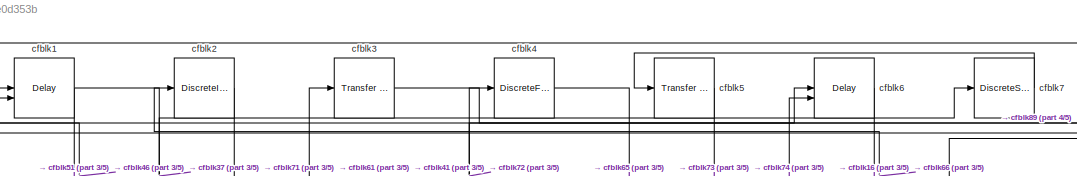
[diagram: root canvas - part 1/5, top center region]
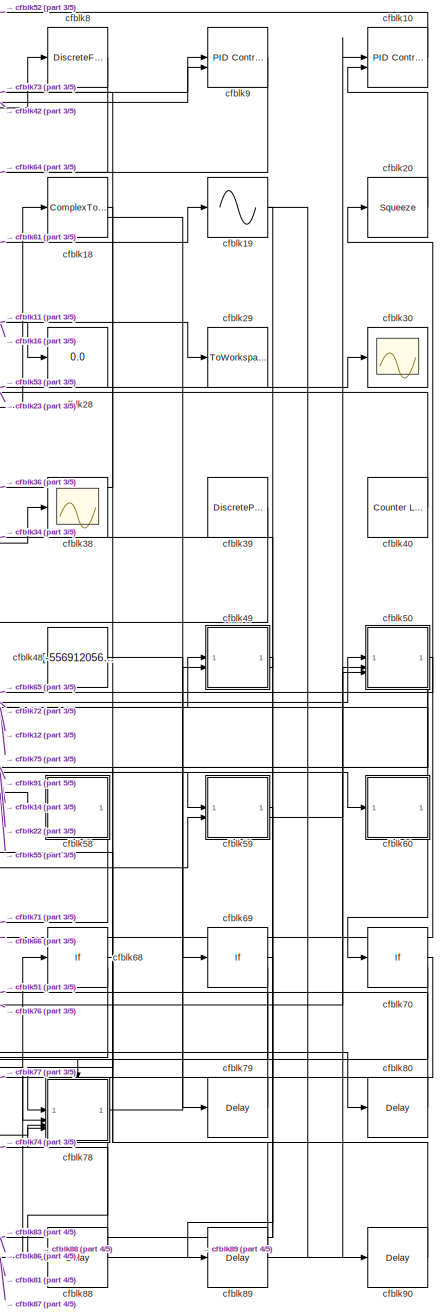
[diagram: root canvas - part 2/5, right side, full height]
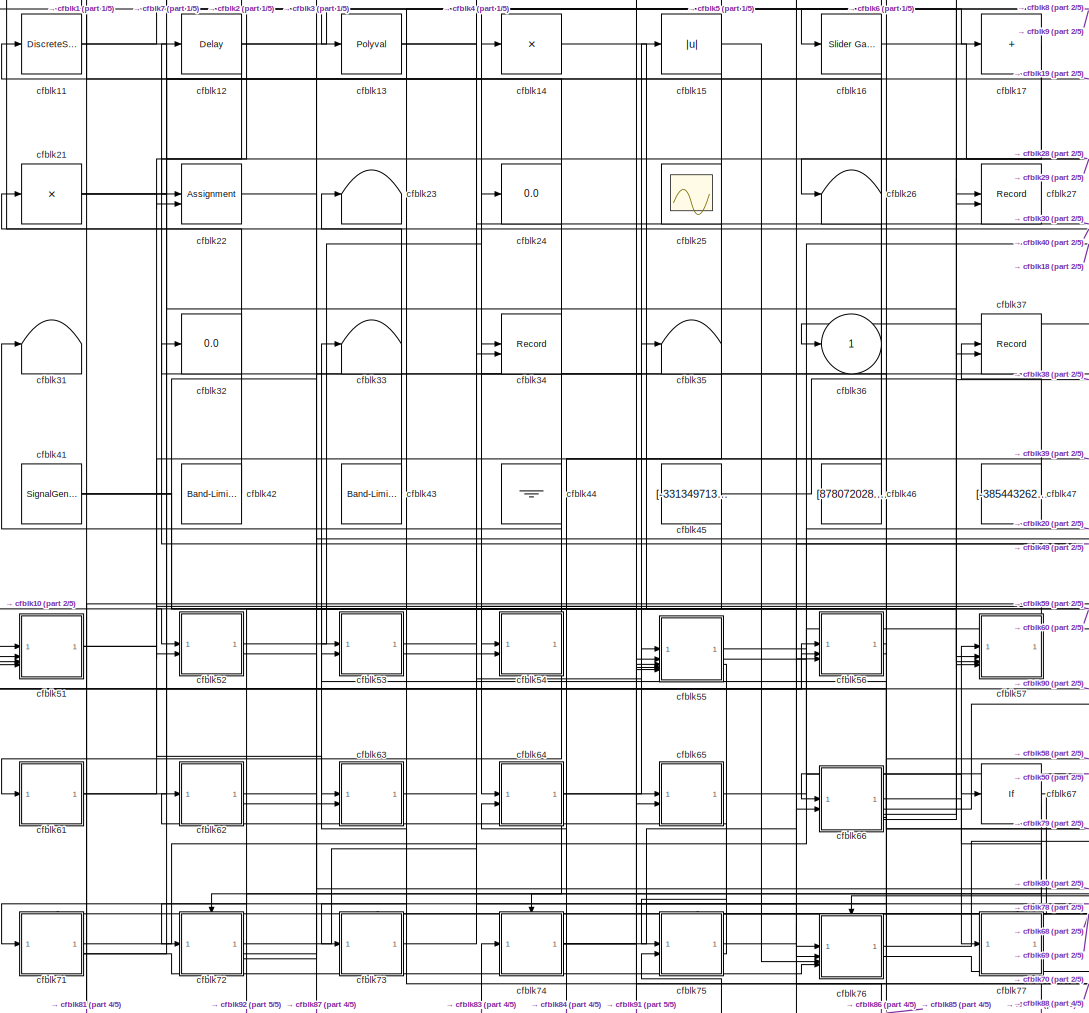
[diagram: root canvas - part 3/5, central region]
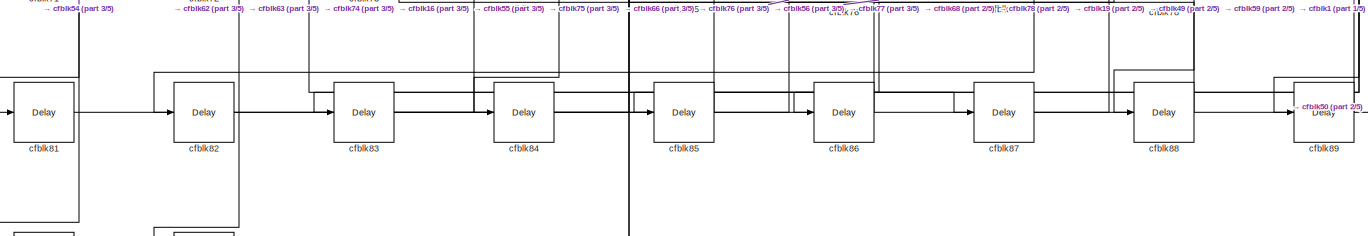
[diagram: root canvas - part 4/5, full width, bottom band]
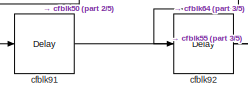
[diagram: root canvas - part 5/5, bottom left region]
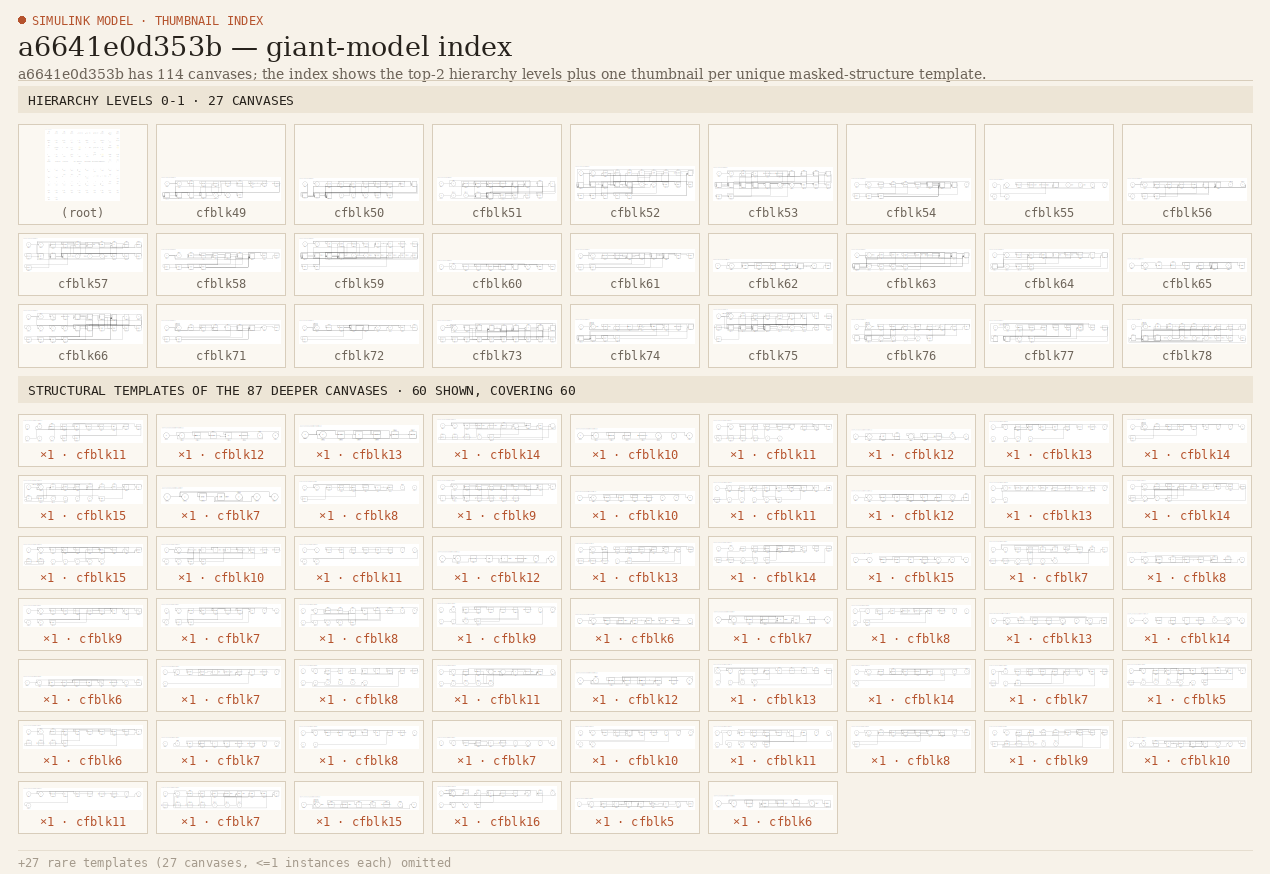
[diagram: thumbnail index - top-2 hierarchy levels (27 canvases) + 60 structural-template representatives of the remaining 87 canvases]
MODEL slx_a6641e0d353b
KIND model
CONFIG AbsTol = auto
CONFIG EnableMultiTasking = off
CONFIG FixedStep = auto
CONFIG MaxStep = auto
CONFIG MinStep = auto
CONFIG RelTol = 1e-3
CONFIG SampleTimeConstraint = Unconstrained
CONFIG SolverName = VariableStepAuto
CONFIG StartTime = 0.0
CONFIG StopTime = 10.0
BLOCK [Delay] cfblk1
  DelayLengthSource = Input port
  InputPortMap = u0,p1
  SampleTime = 1
BLOCK [Reference] cfblk10  REF=slpidlib/PID Controller (2DOF)
  LibrarySourceBlock = simulink/Discrete/Discrete PID Controller (2DOF)
  SourceBlock = slpidlib/PID Controller (2DOF)
  SourceType = PID 2dof
BLOCK [DiscreteStateSpace] cfblk11
BLOCK [Delay] cfblk12
  InputPortMap = u0
  SampleTime = 1
BLOCK [Polyval] cfblk13
  Coefs = [ +2.081618890e-019, -1.441693666e-014, +4.719686976e-010, -8.536869453e-006, +1.621573104e-001, -8.087801117e+001 ]
BLOCK [Product] cfblk14
  Inputs = *
BLOCK [Abs] cfblk15
  SaturateOnIntegerOverflow = off
BLOCK [Reference] cfblk16  REF=simulink/Math
Operations/Slider
Gain
  SourceBlock = simulink/Math\nOperations/Slider\nGain
  SourceType = Slider Gain
BLOCK [Sum] cfblk17
  IconShape = rectangular
  Inputs = +
BLOCK [ComplexToMagnitudeAngle] cfblk18
BLOCK [Sin] cfblk19
  SampleTime = 0
  TimeSource = Use external signal
BLOCK [DiscreteIntegrator] cfblk2
  ICPrevOutput = DiscIntNeverNeededParam
  ICPrevScaledInput = DiscIntNeverNeededParam
  InitialConditionSetting = Auto
BLOCK [Squeeze] cfblk20
BLOCK [Product] cfblk21
  Inputs = *
BLOCK [Assignment] cfblk22
  DiagnosticForDimensions = Warning
  IndexOptions = Index vector (dialog)
  Indices = 1
  OutputSizes = 1
BLOCK [Terminator] cfblk23
BLOCK [Display] cfblk24
  Decimation = 1
BLOCK [Scope] cfblk25
  Floating = on
  NumInputPorts = 1
BLOCK [Terminator] cfblk26
BLOCK [Record] cfblk27
  CompatibilityTag = XY
  FileSettingsInternal = {"entries":[{"content":{"excelSettings":{"content":{},"type":"Streamout.ExcelSettings"}},"type":"Streamout.FileSettingStorage","uuid":""}],"packageUris":["http:\/\/schema.mathworks.com\/mf0\/streamout_blocks\/R2020a"],"version":"1.0"}  <repeated x3 — deduplicated; at blocks: cfblk27, cfblk34, cfblk37>
  Layout = [1 1]
  SignalsInternal = {"entries":[{"content":{"signals":[{"content":{"blockPath":[],"dimensions":[1],"domain":"","lineColor":"#a2142f","plots":[1],"port":1,"signalID":1238,"signalName":"XY Graph:1"},"type":"RecordBlkView.Signal","uuid":""},{"content":{"blockPath":[],"dimensions":[1],"domain":"","lineColor":"#139fff","plots":[1],"port":2,"signalID":1241,"signalName":"XY Graph:2"},"type":"RecordBlkView.Signal","uuid":""}...<+146ch>
  VisualizationBindings = {"xyplotplugin":{"info":[{"series":[{"bindingParametersList":[{"parameter":"X-Axis","signalID":1238,"signalName":"XY Graph:1"},{"parameter":"Y-Axis","signalID":1241,"signalName":"XY Graph:2"}],"seriesID":7278}],"subplotID":1}]}}
BLOCK [Display] cfblk28
  Decimation = 1
BLOCK [ToWorkspace] cfblk29
  FixptAsFi = on
  MaxDataPoints = inf
  SampleTime = -1
  SaveFormat = Timeseries
  VariableName = lgrrcpf
BLOCK [Reference] cfblk3  REF=simulink/Discrete/Transfer Fcn
Lead or Lag
  SourceBlock = simulink/Discrete/Transfer Fcn\nLead or Lag
  SourceType = Lead or Lag Compensator
BLOCK [Scope] cfblk30
  Floating = off
  NumInputPorts = 1
BLOCK [Terminator] cfblk31
BLOCK [Display] cfblk32
  Decimation = 1
BLOCK [Terminator] cfblk33
BLOCK [Record] cfblk34
  CompatibilityTag = XY
  Layout = [1 1]
  SignalsInternal = {"entries":[{"content":{"signals":[{"content":{"blockPath":[],"dimensions":[1],"domain":"","lineColor":"#a2142f","plots":[1],"port":1,"signalID":1246,"signalName":"XY Graph:1"},"type":"RecordBlkView.Signal","uuid":""},{"content":{"blockPath":[],"dimensions":[1],"domain":"","lineColor":"#139fff","plots":[1],"port":2,"signalID":1249,"signalName":"XY Graph:2"},"type":"RecordBlkView.Signal","uuid":""}...<+146ch>
  VisualizationBindings = {"xyplotplugin":{"info":[{"series":[{"bindingParametersList":[{"parameter":"X-Axis","signalID":1246,"signalName":"XY Graph:1"},{"parameter":"Y-Axis","signalID":1249,"signalName":"XY Graph:2"}],"seriesID":48705}],"subplotID":1}]}}
BLOCK [Terminator] cfblk35
BLOCK [Outport] cfblk36
BLOCK [Record] cfblk37
  CompatibilityTag = XY
  Layout = [1 1]
  SignalsInternal = {"entries":[{"content":{"signals":[{"content":{"blockPath":[],"dimensions":[1],"domain":"","lineColor":"#a2142f","plots":[1],"port":1,"signalID":1254,"signalName":"XY Graph:1"},"type":"RecordBlkView.Signal","uuid":""},{"content":{"blockPath":[],"dimensions":[1],"domain":"","lineColor":"#139fff","plots":[1],"port":2,"signalID":1257,"signalName":"XY Graph:2"},"type":"RecordBlkView.Signal","uuid":""}...<+146ch>
  VisualizationBindings = {"xyplotplugin":{"info":[{"series":[{"bindingParametersList":[{"parameter":"X-Axis","signalID":1254,"signalName":"XY Graph:1"},{"parameter":"Y-Axis","signalID":1257,"signalName":"XY Graph:2"}],"seriesID":49580}],"subplotID":1}]}}
BLOCK [Scope] cfblk38
  Floating = off
  NumInputPorts = 1
BLOCK [DiscretePulseGenerator] cfblk39
  Amplitude = [-796045610.609200]
  Period = [15248261.923377]
  PhaseDelay = [2.000000]
  PulseType = Time based
  PulseWidth = 5
BLOCK [DiscreteFilter] cfblk4
  InputPortMap = u0
  SampleTime = 1
BLOCK [Reference] cfblk40  REF=simulink/Sources/Counter
Limited
  SourceBlock = simulink/Sources/Counter\nLimited
  SourceType = Counter Limited
BLOCK [SignalGenerator] cfblk41
  Amplitude = [-708694922.826218]
  Units = rad/sec
BLOCK [Reference] cfblk42  REF=simulink/Sources/Band-Limited
White Noise
  SourceBlock = simulink/Sources/Band-Limited\nWhite Noise
  SourceType = Band-Limited White Noise.
BLOCK [Reference] cfblk43  REF=simulink/Sources/Band-Limited
White Noise
  SourceBlock = simulink/Sources/Band-Limited\nWhite Noise
  SourceType = Band-Limited White Noise.
BLOCK [Ground] cfblk44
BLOCK [Constant] cfblk45
  SampleTime = 1
  Value = [-331349713.930726]
BLOCK [Constant] cfblk46
  SampleTime = 1
  Value = [878072028.385508]
BLOCK [Constant] cfblk47
  SampleTime = 1
  Value = [-385443262.302871]
BLOCK [Constant] cfblk48
  SampleTime = 1
  Value = [-556912056.325015]
BLOCK [SubSystem] cfblk49
BLOCK [Inport] cfblk49/cfblk1
BLOCK [Constant] cfblk49/cfblk10
  SampleTime = 1
  Value = [126795464.134396]
BLOCK [SubSystem] cfblk49/cfblk11
BLOCK [Inport] cfblk49/cfblk11/cfblk1
BLOCK [Squeeze] cfblk49/cfblk11/cfblk10
BLOCK [Inport] cfblk49/cfblk11/cfblk11
  Port = 2
BLOCK [Inport] cfblk49/cfblk11/cfblk12
  Port = 3
BLOCK [Inport] cfblk49/cfblk11/cfblk13
  Port = 4
BLOCK [Delay] cfblk49/cfblk11/cfblk14
  InputPortMap = u0
  SampleTime = 1
BLOCK [Delay] cfblk49/cfblk11/cfblk15
  InputPortMap = u0
  SampleTime = 1
BLOCK [Outport] cfblk49/cfblk11/cfblk2
BLOCK [Reference] cfblk49/cfblk11/cfblk3  REF=simulink/Discrete/Difference
  SourceBlock = simulink/Discrete/Difference
  SourceType = Difference
BLOCK [DiscreteFilter] cfblk49/cfblk11/cfblk4
  InputPortMap = u0
  SampleTime = 1
BLOCK [UnitDelay] cfblk49/cfblk11/cfblk5
  HasFrameUpgradeWarning = on
BLOCK [Signum] cfblk49/cfblk11/cfblk6
BLOCK [Signum] cfblk49/cfblk11/cfblk7
BLOCK [Bias] cfblk49/cfblk11/cfblk8
  Bias = [496140665.046533]
  SaturateOnIntegerOverflow = off
BLOCK [Reshape] cfblk49/cfblk11/cfblk9
BLOCK [SubSystem] cfblk49/cfblk12
BLOCK [Inport] cfblk49/cfblk12/cfblk1
BLOCK [Outport] cfblk49/cfblk12/cfblk2
BLOCK [Reference] cfblk49/cfblk12/cfblk3  REF=simulink/Discrete/Difference
  SourceBlock = simulink/Discrete/Difference
  SourceType = Difference
BLOCK [DiscreteStateSpace] cfblk49/cfblk12/cfblk4
BLOCK [Sum] cfblk49/cfblk12/cfblk5
  IconShape = rectangular
  Inputs = +-
BLOCK [Constant] cfblk49/cfblk12/cfblk6
  SampleTime = 1
  Value = [-851080973.912941]
BLOCK [Inport] cfblk49/cfblk12/cfblk7
  Port = 2
BLOCK [Inport] cfblk49/cfblk12/cfblk8
  Port = 3
BLOCK [SubSystem] cfblk49/cfblk13
BLOCK [Inport] cfblk49/cfblk13/cfblk1
BLOCK [Outport] cfblk49/cfblk13/cfblk2
BLOCK [DiscreteFilter] cfblk49/cfblk13/cfblk3
  InputPortMap = u0
  SampleTime = 1
BLOCK [Product] cfblk49/cfblk13/cfblk4
  Inputs = *
BLOCK [PermuteDimensions] cfblk49/cfblk13/cfblk5
BLOCK [Assignment] cfblk49/cfblk13/cfblk6
  DiagnosticForDimensions = Warning
  IndexOptions = Index vector (dialog)
  Indices = 1
  OutputSizes = 1
BLOCK [Signum] cfblk49/cfblk13/cfblk7
BLOCK [SubSystem] cfblk49/cfblk14
BLOCK [Inport] cfblk49/cfblk14/cfblk1
BLOCK [Sum] cfblk49/cfblk14/cfblk10
  Inputs = |++
BLOCK [Reference] cfblk49/cfblk14/cfblk11  REF=simulink/Math
Operations/Slider
Gain
  SourceBlock = simulink/Math\nOperations/Slider\nGain
  SourceType = Slider Gain
BLOCK [PermuteDimensions] cfblk49/cfblk14/cfblk12
BLOCK [Constant] cfblk49/cfblk14/cfblk13
  SampleTime = 1
  Value = [576198496.517569]
BLOCK [Inport] cfblk49/cfblk14/cfblk14
  Port = 2
BLOCK [Delay] cfblk49/cfblk14/cfblk15
  InputPortMap = u0
  SampleTime = 1
BLOCK [Outport] cfblk49/cfblk14/cfblk2
BLOCK [UnitDelay] cfblk49/cfblk14/cfblk3
  HasFrameUpgradeWarning = on
BLOCK [DiscreteTransferFcn] cfblk49/cfblk14/cfblk4
  InputPortMap = u0
  SampleTime = 1
BLOCK [Reference] cfblk49/cfblk14/cfblk5  REF=simulink/Discrete/Tapped Delay
  SourceBlock = simulink/Discrete/Tapped Delay
  SourceType = Tapped Delay Line
BLOCK [Reference] cfblk49/cfblk14/cfblk6  REF=simulink/Discrete/Difference
  SourceBlock = simulink/Discrete/Difference
  SourceType = Difference
BLOCK [Sum] cfblk49/cfblk14/cfblk7
  Inputs = |++
BLOCK [Trigonometry] cfblk49/cfblk14/cfblk8
BLOCK [Bias] cfblk49/cfblk14/cfblk9
  Bias = [481949815.498866]
  SaturateOnIntegerOverflow = off
BLOCK [Inport] cfblk49/cfblk15
  Port = 2
BLOCK [Outport] cfblk49/cfblk16
  Port = 2
BLOCK [Delay] cfblk49/cfblk17
  InputPortMap = u0
  SampleTime = 1
BLOCK [Outport] cfblk49/cfblk2
BLOCK [DiscreteTransferFcn] cfblk49/cfblk3
  InputPortMap = u0
  SampleTime = 1
BLOCK [Reference] cfblk49/cfblk4  REF=simulink/Discrete/Transfer Fcn
Lead or Lag
  SourceBlock = simulink/Discrete/Transfer Fcn\nLead or Lag
  SourceType = Lead or Lag Compensator
BLOCK [DiscreteStateSpace] cfblk49/cfblk5
BLOCK [Rounding] cfblk49/cfblk6
BLOCK [Rounding] cfblk49/cfblk7
BLOCK [Gain] cfblk49/cfblk8
  Gain = [-575325172.210352]
BLOCK [Assignment] cfblk49/cfblk9
  DiagnosticForDimensions = Warning
  IndexOptions = Index vector (dialog)
  Indices = 1
  OutputSizes = 1
BLOCK [Reference] cfblk5  REF=simulink/Discrete/Transfer Fcn
Real Zero
  SourceBlock = simulink/Discrete/Transfer Fcn\nReal Zero
  SourceType = Transfer Fcn Real Zero
BLOCK [SubSystem] cfblk50
BLOCK [Inport] cfblk50/cfblk1
BLOCK [SubSystem] cfblk50/cfblk10
BLOCK [Inport] cfblk50/cfblk10/cfblk1
BLOCK [Outport] cfblk50/cfblk10/cfblk2
BLOCK [Reference] cfblk50/cfblk10/cfblk3  REF=slpidlib/PID Controller
  LibrarySourceBlock = simulink/Discrete/Discrete PID Controller
  SourceBlock = slpidlib/PID Controller
  SourceType = PID 1dof
BLOCK [Rounding] cfblk50/cfblk10/cfblk4
BLOCK [Constant] cfblk50/cfblk10/cfblk5
  SampleTime = 1
  Value = [287026214.123920]
BLOCK [Inport] cfblk50/cfblk10/cfblk6
  Port = 2
BLOCK [Inport] cfblk50/cfblk10/cfblk7
  Port = 3
BLOCK [Outport] cfblk50/cfblk10/cfblk8
  Port = 2
BLOCK [SubSystem] cfblk50/cfblk11
BLOCK [Inport] cfblk50/cfblk11/cfblk1
BLOCK [Sqrt] cfblk50/cfblk11/cfblk10
BLOCK [Sin] cfblk50/cfblk11/cfblk11
  SampleTime = 0
  TimeSource = Use external signal
BLOCK [Constant] cfblk50/cfblk11/cfblk12
  SampleTime = 1
  Value = [-410612095.276266]
BLOCK [Constant] cfblk50/cfblk11/cfblk13
  SampleTime = 1
  Value = [912492913.532441]
BLOCK [Constant] cfblk50/cfblk11/cfblk14
  SampleTime = 1
  Value = [971097323.405623]
BLOCK [Inport] cfblk50/cfblk11/cfblk15
  Port = 2
BLOCK [Outport] cfblk50/cfblk11/cfblk16
  Port = 2
BLOCK [Outport] cfblk50/cfblk11/cfblk2
BLOCK [DiscreteFir] cfblk50/cfblk11/cfblk3
  InputPortMap = u0
  OutputPortMap = o0
  SampleTime = 1
BLOCK [Reference] cfblk50/cfblk11/cfblk4  REF=simulink/Discrete/Tapped Delay
  SourceBlock = simulink/Discrete/Tapped Delay
  SourceType = Tapped Delay Line
BLOCK [Reference] cfblk50/cfblk11/cfblk5  REF=simulink/Discrete/Transfer Fcn
Lead or Lag
  SourceBlock = simulink/Discrete/Transfer Fcn\nLead or Lag
  SourceType = Lead or Lag Compensator
BLOCK [DiscreteFilter] cfblk50/cfblk11/cfblk6
  InputPortMap = u0
  SampleTime = 1
BLOCK [Sum] cfblk50/cfblk11/cfblk7
  Inputs = |++
BLOCK [UnaryMinus] cfblk50/cfblk11/cfblk8
BLOCK [Sin] cfblk50/cfblk11/cfblk9
  SampleTime = 0
  TimeSource = Use external signal
BLOCK [SubSystem] cfblk50/cfblk12
BLOCK [Inport] cfblk50/cfblk12/cfblk1
BLOCK [Outport] cfblk50/cfblk12/cfblk2
BLOCK [UnitDelay] cfblk50/cfblk12/cfblk3
  HasFrameUpgradeWarning = on
BLOCK [UnaryMinus] cfblk50/cfblk12/cfblk4
BLOCK [Sum] cfblk50/cfblk12/cfblk5
  Inputs = |++
BLOCK [Sum] cfblk50/cfblk12/cfblk6
  IconShape = rectangular
  Inputs = +
BLOCK [Constant] cfblk50/cfblk12/cfblk7
  SampleTime = 1
  Value = [-164752098.549970]
BLOCK [Inport] cfblk50/cfblk12/cfblk8
  Port = 2
BLOCK [Inport] cfblk50/cfblk12/cfblk9
  Port = 3
BLOCK [SubSystem] cfblk50/cfblk13
BLOCK [Inport] cfblk50/cfblk13/cfblk1
BLOCK [Inport] cfblk50/cfblk13/cfblk10
  Port = 2
BLOCK [Inport] cfblk50/cfblk13/cfblk11
  Port = 3
BLOCK [Inport] cfblk50/cfblk13/cfblk12
  Port = 4
BLOCK [Inport] cfblk50/cfblk13/cfblk13
  Port = 5
BLOCK [Inport] cfblk50/cfblk13/cfblk14
  Port = 6
BLOCK [Outport] cfblk50/cfblk13/cfblk2
BLOCK [PropagationDelay] cfblk50/cfblk13/cfblk3
  SampleTime = 1
BLOCK [Reference] cfblk50/cfblk13/cfblk4  REF=slpidlib/PID Controller (2DOF)
  LibrarySourceBlock = simulink/Discrete/Discrete PID Controller (2DOF)
  SourceBlock = slpidlib/PID Controller (2DOF)
  SourceType = PID 2dof
BLOCK [Delay] cfblk50/cfblk13/cfblk5
  DelayLengthSource = Input port
  InputPortMap = u0,p1
  SampleTime = 1
BLOCK [Bias] cfblk50/cfblk13/cfblk6
  Bias = [194335201.974576]
  SaturateOnIntegerOverflow = off
BLOCK [PermuteDimensions] cfblk50/cfblk13/cfblk7
BLOCK [Polyval] cfblk50/cfblk13/cfblk8
  Coefs = [ +2.081618890e-019, -1.441693666e-014, +4.719686976e-010, -8.536869453e-006, +1.621573104e-001, -8.087801117e+001 ]
BLOCK [Constant] cfblk50/cfblk13/cfblk9
  SampleTime = 1
  Value = [-300219418.755301]
BLOCK [Inport] cfblk50/cfblk14
  Port = 2
BLOCK [Inport] cfblk50/cfblk15
  Port = 3
BLOCK [Outport] cfblk50/cfblk16
  Port = 2
BLOCK [Delay] cfblk50/cfblk17
  InputPortMap = u0
  SampleTime = 1
BLOCK [Delay] cfblk50/cfblk18
  InputPortMap = u0
  SampleTime = 1
BLOCK [Outport] cfblk50/cfblk2
BLOCK [Reference] cfblk50/cfblk3  REF=simulink/Discrete/Transfer Fcn
First Order
  SourceBlock = simulink/Discrete/Transfer Fcn\nFirst Order
  SourceType = First Order Transfer Fcn
BLOCK [Delay] cfblk50/cfblk4
  InputPortMap = u0
  SampleTime = 1
BLOCK [Delay] cfblk50/cfblk5
  InputPortMap = u0,e6
  SampleTime = 1
  ShowEnablePort = on
BLOCK [Reshape] cfblk50/cfblk6
BLOCK [PermuteDimensions] cfblk50/cfblk7
BLOCK [Assignment] cfblk50/cfblk8
  DiagnosticForDimensions = Warning
  IndexOptions = Index vector (dialog)
  Indices = 1
  OutputSizes = 1
BLOCK [Trigonometry] cfblk50/cfblk9
BLOCK [SubSystem] cfblk51
BLOCK [Inport] cfblk51/cfblk1
BLOCK [If] cfblk51/cfblk10
  IfExpression = u1 >= 0
  SampleTime = 1
BLOCK [Inport] cfblk51/cfblk11
  Port = 2
BLOCK [Inport] cfblk51/cfblk12
  Port = 3
BLOCK [Inport] cfblk51/cfblk13
  Port = 4
BLOCK [SubSystem] cfblk51/cfblk14
  TreatAsAtomicUnit = on
BLOCK [ActionPort] cfblk51/cfblk14/Action Port
  ActionPortLabel = if(u1 >= 0)
BLOCK [Inport] cfblk51/cfblk14/cfblk1
BLOCK [Outport] cfblk51/cfblk14/cfblk10
  Port = 2
BLOCK [Delay] cfblk51/cfblk14/cfblk11
  InputPortMap = u0
BLOCK [Outport] cfblk51/cfblk14/cfblk2
BLOCK [Reference] cfblk51/cfblk14/cfblk3  REF=slpidlib/PID Controller
  LibrarySourceBlock = simulink/Discrete/Discrete PID Controller
  SourceBlock = slpidlib/PID Controller
  SourceType = PID 1dof
BLOCK [Reference] cfblk51/cfblk14/cfblk4  REF=simulink/Discrete/Difference
  SourceBlock = simulink/Discrete/Difference
  SourceType = Difference
BLOCK [Reference] cfblk51/cfblk14/cfblk5  REF=simulink/Math
Operations/Slider
Gain
  SourceBlock = simulink/Math\nOperations/Slider\nGain
  SourceType = Slider Gain
BLOCK [Rounding] cfblk51/cfblk14/cfblk6
BLOCK [Sin] cfblk51/cfblk14/cfblk7
  SampleTime = 0
  TimeSource = Use external signal
BLOCK [Inport] cfblk51/cfblk14/cfblk8
  Port = 2
BLOCK [Inport] cfblk51/cfblk14/cfblk9
  Port = 3
BLOCK [SubSystem] cfblk51/cfblk15
  TreatAsAtomicUnit = on
BLOCK [ActionPort] cfblk51/cfblk15/Action Port
  ActionPortLabel = else
BLOCK [Inport] cfblk51/cfblk15/cfblk1
BLOCK [Sum] cfblk51/cfblk15/cfblk10
  IconShape = rectangular
  Inputs = --
BLOCK [Sum] cfblk51/cfblk15/cfblk11
  IconShape = rectangular
  Inputs = --
BLOCK [Sqrt] cfblk51/cfblk15/cfblk12
  AlgorithmType = Newton-Raphson
  Operator = rSqrt
BLOCK [Inport] cfblk51/cfblk15/cfblk13
  Port = 2
BLOCK [Inport] cfblk51/cfblk15/cfblk14
  Port = 3
BLOCK [Inport] cfblk51/cfblk15/cfblk15
  Port = 4
BLOCK [Inport] cfblk51/cfblk15/cfblk16
  Port = 5
BLOCK [Delay] cfblk51/cfblk15/cfblk17
  InputPortMap = u0
BLOCK [Outport] cfblk51/cfblk15/cfblk2
BLOCK [Delay] cfblk51/cfblk15/cfblk3
  InputPortMap = u0,e6
  ShowEnablePort = on
BLOCK [DiscreteZeroPole] cfblk51/cfblk15/cfblk4
  Gain = 1
  Poles = [0 0.5]
  SampleTime = -1
BLOCK [Reference] cfblk51/cfblk15/cfblk5  REF=simulink/Discrete/Transfer Fcn
Lead or Lag
  SourceBlock = simulink/Discrete/Transfer Fcn\nLead or Lag
  SourceType = Lead or Lag Compensator
BLOCK [Reference] cfblk51/cfblk15/cfblk6  REF=slpidlib/PID Controller (2DOF)
  LibrarySourceBlock = simulink/Discrete/Discrete PID Controller (2DOF)
  SourceBlock = slpidlib/PID Controller (2DOF)
  SourceType = PID 2dof
BLOCK [Reference] cfblk51/cfblk15/cfblk7  REF=slpidlib/PID Controller
  LibrarySourceBlock = simulink/Discrete/Discrete PID Controller
  SourceBlock = slpidlib/PID Controller
  SourceType = PID 1dof
BLOCK [Reference] cfblk51/cfblk15/cfblk8  REF=simulink/Math
Operations/Slider
Gain
  SourceBlock = simulink/Math\nOperations/Slider\nGain
  SourceType = Slider Gain
BLOCK [Product] cfblk51/cfblk15/cfblk9
  Inputs = **
BLOCK [Delay] cfblk51/cfblk16
  InputPortMap = u0
  SampleTime = 1
BLOCK [Delay] cfblk51/cfblk17
  InputPortMap = u0
  SampleTime = 1
BLOCK [Delay] cfblk51/cfblk18
  InputPortMap = u0
  SampleTime = 1
BLOCK [Delay] cfblk51/cfblk19
  InputPortMap = u0
  SampleTime = 1
BLOCK [Outport] cfblk51/cfblk2
BLOCK [Reference] cfblk51/cfblk3  REF=slpidlib/PID Controller (2DOF)
  LibrarySourceBlock = simulink/Discrete/Discrete PID Controller (2DOF)
  SourceBlock = slpidlib/PID Controller (2DOF)
  SourceType = PID 2dof
BLOCK [MinMax] cfblk51/cfblk4
  Inputs = 3
BLOCK [MinMax] cfblk51/cfblk5
  Function = max
  Inputs = 3
BLOCK [Constant] cfblk51/cfblk6
  SampleTime = 1
  Value = [474064041.228837]
BLOCK [SubSystem] cfblk51/cfblk7
BLOCK [Inport] cfblk51/cfblk7/cfblk1
BLOCK [Outport] cfblk51/cfblk7/cfblk2
BLOCK [Delay] cfblk51/cfblk7/cfblk3
  InputPortMap = u0
  SampleTime = 1
BLOCK [Sqrt] cfblk51/cfblk7/cfblk4
BLOCK [Inport] cfblk51/cfblk7/cfblk5
  Port = 2
BLOCK [Outport] cfblk51/cfblk7/cfblk6
  Port = 2
BLOCK [Outport] cfblk51/cfblk7/cfblk7
  Port = 3
BLOCK [SubSystem] cfblk51/cfblk8
BLOCK [Inport] cfblk51/cfblk8/cfblk1
BLOCK [Inport] cfblk51/cfblk8/cfblk10
  Port = 3
BLOCK [Delay] cfblk51/cfblk8/cfblk11
  InputPortMap = u0
  SampleTime = 1
BLOCK [Outport] cfblk51/cfblk8/cfblk2
BLOCK [DiscreteStateSpace] cfblk51/cfblk8/cfblk3
BLOCK [Reference] cfblk51/cfblk8/cfblk4  REF=simulink/Discrete/Transfer Fcn
First Order
  SourceBlock = simulink/Discrete/Transfer Fcn\nFirst Order
  SourceType = First Order Transfer Fcn
BLOCK [Reference] cfblk51/cfblk8/cfblk5  REF=simulink/Discrete/Difference
  SourceBlock = simulink/Discrete/Difference
  SourceType = Difference
BLOCK [Polyval] cfblk51/cfblk8/cfblk6
  Coefs = [ +2.081618890e-019, -1.441693666e-014, +4.719686976e-010, -8.536869453e-006, +1.621573104e-001, -8.087801117e+001 ]
BLOCK [Product] cfblk51/cfblk8/cfblk7
  Inputs = *
BLOCK [DotProduct] cfblk51/cfblk8/cfblk8
  OutDataTypeStr = Inherit: Inherit via internal rule
BLOCK [Inport] cfblk51/cfblk8/cfblk9
  Port = 2
BLOCK [SubSystem] cfblk51/cfblk9
BLOCK [Inport] cfblk51/cfblk9/cfblk1
BLOCK [Product] cfblk51/cfblk9/cfblk10
  Inputs = **
BLOCK [Sum] cfblk51/cfblk9/cfblk11
  IconShape = rectangular
  Inputs = +
BLOCK [Gain] cfblk51/cfblk9/cfblk12
  Gain = [-945054115.549151]
BLOCK [Sum] cfblk51/cfblk9/cfblk13
  IconShape = rectangular
  Inputs = +-
BLOCK [Constant] cfblk51/cfblk9/cfblk14
  SampleTime = 1
  Value = [-575102181.950246]
BLOCK [Constant] cfblk51/cfblk9/cfblk15
  SampleTime = 1
  Value = [841128437.494258]
BLOCK [Constant] cfblk51/cfblk9/cfblk16
  SampleTime = 1
  Value = [801381625.379936]
BLOCK [Constant] cfblk51/cfblk9/cfblk17
  SampleTime = 1
  Value = [602311785.460515]
BLOCK [Outport] cfblk51/cfblk9/cfblk2
BLOCK [Reference] cfblk51/cfblk9/cfblk3  REF=slpidlib/PID Controller (2DOF)
  LibrarySourceBlock = simulink/Discrete/Discrete PID Controller (2DOF)
  SourceBlock = slpidlib/PID Controller (2DOF)
  SourceType = PID 2dof
BLOCK [Reference] cfblk51/cfblk9/cfblk4  REF=simulink/Discrete/Transfer Fcn
First Order
  SourceBlock = simulink/Discrete/Transfer Fcn\nFirst Order
  SourceType = First Order Transfer Fcn
BLOCK [Reference] cfblk51/cfblk9/cfblk5  REF=simulink/Discrete/Transfer Fcn
First Order
  SourceBlock = simulink/Discrete/Transfer Fcn\nFirst Order
  SourceType = First Order Transfer Fcn
BLOCK [Delay] cfblk51/cfblk9/cfblk6
  InputPortMap = u0
  SampleTime = 1
BLOCK [DiscreteFir] cfblk51/cfblk9/cfblk7
  InputPortMap = u0
  OutputPortMap = o0
  SampleTime = 1
BLOCK [ComplexToMagnitudeAngle] cfblk51/cfblk9/cfblk8
BLOCK [Sum] cfblk51/cfblk9/cfblk9
  IconShape = rectangular
  Inputs = +-
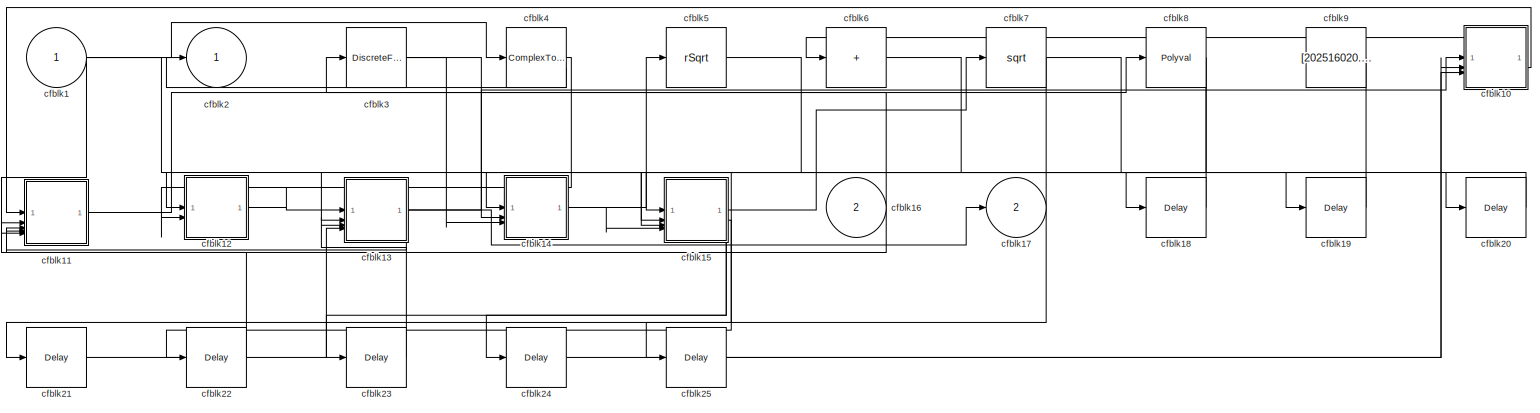
[diagram: cfblk52 - part 1/1, most of the canvas]
BLOCK [SubSystem] cfblk52
BLOCK [Inport] cfblk52/cfblk1
BLOCK [SubSystem] cfblk52/cfblk10
BLOCK [Inport] cfblk52/cfblk10/cfblk1
BLOCK [Outport] cfblk52/cfblk10/cfblk2
BLOCK [Signum] cfblk52/cfblk10/cfblk3
BLOCK [Sqrt] cfblk52/cfblk10/cfblk4
BLOCK [Reshape] cfblk52/cfblk10/cfblk5
BLOCK [Constant] cfblk52/cfblk10/cfblk6
  SampleTime = 1
  Value = [849634780.008337]
BLOCK [Inport] cfblk52/cfblk10/cfblk7
  Port = 2
BLOCK [Inport] cfblk52/cfblk10/cfblk8
  Port = 3
BLOCK [Outport] cfblk52/cfblk10/cfblk9
  Port = 2
BLOCK [SubSystem] cfblk52/cfblk11
BLOCK [Inport] cfblk52/cfblk11/cfblk1
BLOCK [Math] cfblk52/cfblk11/cfblk10
  Operator = hermitian
BLOCK [Constant] cfblk52/cfblk11/cfblk11
  SampleTime = 1
  Value = [536059656.184472]
BLOCK [Inport] cfblk52/cfblk11/cfblk12
  Port = 2
BLOCK [Inport] cfblk52/cfblk11/cfblk13
  Port = 3
BLOCK [Inport] cfblk52/cfblk11/cfblk14
  Port = 4
BLOCK [Inport] cfblk52/cfblk11/cfblk15
  Port = 5
BLOCK [Delay] cfblk52/cfblk11/cfblk16
  InputPortMap = u0
  SampleTime = 1
BLOCK [Outport] cfblk52/cfblk11/cfblk2
BLOCK [Reference] cfblk52/cfblk11/cfblk3  REF=simulink/Discrete/Transfer Fcn
Lead or Lag
  SourceBlock = simulink/Discrete/Transfer Fcn\nLead or Lag
  SourceType = Lead or Lag Compensator
BLOCK [Reference] cfblk52/cfblk11/cfblk4  REF=slpidlib/PID Controller (2DOF)
  LibrarySourceBlock = simulink/Discrete/Discrete PID Controller (2DOF)
  SourceBlock = slpidlib/PID Controller (2DOF)
  SourceType = PID 2dof
BLOCK [Delay] cfblk52/cfblk11/cfblk5
  InputPortMap = u0
  SampleTime = 1
BLOCK [Delay] cfblk52/cfblk11/cfblk6
  InputPortMap = u0,e6
  SampleTime = 1
  ShowEnablePort = on
BLOCK [Math] cfblk52/cfblk11/cfblk7
  Operator = hermitian
BLOCK [Sum] cfblk52/cfblk11/cfblk8
  IconShape = rectangular
  Inputs = +-
BLOCK [Sum] cfblk52/cfblk11/cfblk9
  IconShape = rectangular
  Inputs = +-
BLOCK [SubSystem] cfblk52/cfblk12
BLOCK [Inport] cfblk52/cfblk12/cfblk1
BLOCK [Outport] cfblk52/cfblk12/cfblk2
BLOCK [DiscreteFir] cfblk52/cfblk12/cfblk3
  InputPortMap = u0
  OutputPortMap = o0
  SampleTime = 1
BLOCK [UnitDelay] cfblk52/cfblk12/cfblk4
  HasFrameUpgradeWarning = on
BLOCK [Sum] cfblk52/cfblk12/cfblk5
  IconShape = rectangular
  Inputs = +-
BLOCK [Abs] cfblk52/cfblk12/cfblk6
  SaturateOnIntegerOverflow = off
BLOCK [Reference] cfblk52/cfblk12/cfblk7  REF=simulink/Math
Operations/Slider
Gain
  SourceBlock = simulink/Math\nOperations/Slider\nGain
  SourceType = Slider Gain
BLOCK [Inport] cfblk52/cfblk12/cfblk8
  Port = 2
BLOCK [Delay] cfblk52/cfblk12/cfblk9
  InputPortMap = u0
  SampleTime = 1
BLOCK [SubSystem] cfblk52/cfblk13
BLOCK [Inport] cfblk52/cfblk13/cfblk1
BLOCK [Inport] cfblk52/cfblk13/cfblk10
  Port = 2
BLOCK [Inport] cfblk52/cfblk13/cfblk11
  Port = 3
BLOCK [Inport] cfblk52/cfblk13/cfblk12
  Port = 4
BLOCK [Outport] cfblk52/cfblk13/cfblk2
BLOCK [DiscreteZeroPole] cfblk52/cfblk13/cfblk3
  Gain = 1
  Poles = [0 0.5]
BLOCK [Product] cfblk52/cfblk13/cfblk4
BLOCK [Reference] cfblk52/cfblk13/cfblk5  REF=simulink/Math
Operations/Slider
Gain
  SourceBlock = simulink/Math\nOperations/Slider\nGain
  SourceType = Slider Gain
BLOCK [Reshape] cfblk52/cfblk13/cfblk6
BLOCK [Reshape] cfblk52/cfblk13/cfblk7
BLOCK [Reference] cfblk52/cfblk13/cfblk8  REF=simulink/Math
Operations/Slider
Gain
  SourceBlock = simulink/Math\nOperations/Slider\nGain
  SourceType = Slider Gain
BLOCK [Constant] cfblk52/cfblk13/cfblk9
  SampleTime = 1
  Value = [-348234861.898455]
BLOCK [SubSystem] cfblk52/cfblk14
BLOCK [Inport] cfblk52/cfblk14/cfblk1
BLOCK [Assignment] cfblk52/cfblk14/cfblk10
  DiagnosticForDimensions = Warning
  IndexOptions = Index vector (dialog)
  Indices = 1
  OutputSizes = 1
BLOCK [Assignment] cfblk52/cfblk14/cfblk11
  DiagnosticForDimensions = Warning
  IndexOptions = Index vector (dialog)
  Indices = 1
  OutputSizes = 1
BLOCK [Inport] cfblk52/cfblk14/cfblk12
  Port = 2
BLOCK [Inport] cfblk52/cfblk14/cfblk13
  Port = 3
BLOCK [Delay] cfblk52/cfblk14/cfblk14
  InputPortMap = u0
  SampleTime = 1
BLOCK [Outport] cfblk52/cfblk14/cfblk2
BLOCK [Reference] cfblk52/cfblk14/cfblk3  REF=slpidlib/PID Controller
  LibrarySourceBlock = simulink/Discrete/Discrete PID Controller
  SourceBlock = slpidlib/PID Controller
  SourceType = PID 1dof
BLOCK [DiscreteFir] cfblk52/cfblk14/cfblk4
  InputPortMap = u0
  OutputPortMap = o0
  SampleTime = 1
BLOCK [PropagationDelay] cfblk52/cfblk14/cfblk5
  SampleTime = 1
BLOCK [Signum] cfblk52/cfblk14/cfblk6
BLOCK [Reference] cfblk52/cfblk14/cfblk7  REF=simulink/Math
Operations/MinMax
Running
Resettable
  SourceBlock = simulink/Math\nOperations/MinMax\nRunning\nResettable
  SourceType = MinMax Running Resettable
BLOCK [Trigonometry] cfblk52/cfblk14/cfblk8
BLOCK [Sqrt] cfblk52/cfblk14/cfblk9
  AlgorithmType = Newton-Raphson
  Operator = rSqrt
BLOCK [SubSystem] cfblk52/cfblk15
BLOCK [Inport] cfblk52/cfblk15/cfblk1
BLOCK [MinMax] cfblk52/cfblk15/cfblk10
  Function = max
  Inputs = 2
BLOCK [Signum] cfblk52/cfblk15/cfblk11
BLOCK [Constant] cfblk52/cfblk15/cfblk12
  SampleTime = 1
  Value = [800266674.789855]
BLOCK [Inport] cfblk52/cfblk15/cfblk13
  Port = 2
BLOCK [Inport] cfblk52/cfblk15/cfblk14
  Port = 3
BLOCK [Inport] cfblk52/cfblk15/cfblk15
  Port = 4
BLOCK [Outport] cfblk52/cfblk15/cfblk16
  Port = 2
BLOCK [Outport] cfblk52/cfblk15/cfblk17
  Port = 3
BLOCK [Outport] cfblk52/cfblk15/cfblk2
BLOCK [Delay] cfblk52/cfblk15/cfblk3
  InputPortMap = u0
  SampleTime = 1
BLOCK [Delay] cfblk52/cfblk15/cfblk4
  InputPortMap = u0,e6
  SampleTime = 1
  ShowEnablePort = on
BLOCK [Signum] cfblk52/cfblk15/cfblk5
BLOCK [ComplexToRealImag] cfblk52/cfblk15/cfblk6
BLOCK [Trigonometry] cfblk52/cfblk15/cfblk7
BLOCK [Squeeze] cfblk52/cfblk15/cfblk8
BLOCK [Sin] cfblk52/cfblk15/cfblk9
  SampleTime = 0
  TimeSource = Use external signal
BLOCK [Inport] cfblk52/cfblk16
  Port = 2
BLOCK [Outport] cfblk52/cfblk17
  Port = 2
BLOCK [Delay] cfblk52/cfblk18
  InputPortMap = u0
  SampleTime = 1
BLOCK [Delay] cfblk52/cfblk19
  InputPortMap = u0
  SampleTime = 1
BLOCK [Outport] cfblk52/cfblk2
BLOCK [Delay] cfblk52/cfblk20
  InputPortMap = u0
  SampleTime = 1
BLOCK [Delay] cfblk52/cfblk21
  InputPortMap = u0
  SampleTime = 1
BLOCK [Delay] cfblk52/cfblk22
  InputPortMap = u0
  SampleTime = 1
BLOCK [Delay] cfblk52/cfblk23
  InputPortMap = u0
  SampleTime = 1
BLOCK [Delay] cfblk52/cfblk24
  InputPortMap = u0
  SampleTime = 1
BLOCK [Delay] cfblk52/cfblk25
  InputPortMap = u0
  SampleTime = 1
BLOCK [DiscreteFilter] cfblk52/cfblk3
  InputPortMap = u0
  SampleTime = 1
BLOCK [ComplexToMagnitudeAngle] cfblk52/cfblk4
BLOCK [Sqrt] cfblk52/cfblk5
  AlgorithmType = Newton-Raphson
  Operator = rSqrt
BLOCK [Sum] cfblk52/cfblk6
  IconShape = rectangular
  Inputs = +
BLOCK [Sqrt] cfblk52/cfblk7
BLOCK [Polyval] cfblk52/cfblk8
  Coefs = [ +2.081618890e-019, -1.441693666e-014, +4.719686976e-010, -8.536869453e-006, +1.621573104e-001, -8.087801117e+001 ]
BLOCK [Constant] cfblk52/cfblk9
  SampleTime = 1
  Value = [202516020.814276]
BLOCK [SubSystem] cfblk53
BLOCK [Inport] cfblk53/cfblk1
BLOCK [SubSystem] cfblk53/cfblk10
BLOCK [Inport] cfblk53/cfblk10/cfblk1
BLOCK [Constant] cfblk53/cfblk10/cfblk10
  SampleTime = 1
  Value = [804102723.408533]
BLOCK [Outport] cfblk53/cfblk10/cfblk11
  Port = 2
BLOCK [Outport] cfblk53/cfblk10/cfblk12
  Port = 3
BLOCK [Delay] cfblk53/cfblk10/cfblk13
  InputPortMap = u0
  SampleTime = 1
BLOCK [Delay] cfblk53/cfblk10/cfblk14
  InputPortMap = u0
  SampleTime = 1
BLOCK [Outport] cfblk53/cfblk10/cfblk2
BLOCK [Polyval] cfblk53/cfblk10/cfblk3
  Coefs = [ +2.081618890e-019, -1.441693666e-014, +4.719686976e-010, -8.536869453e-006, +1.621573104e-001, -8.087801117e+001 ]
BLOCK [Sum] cfblk53/cfblk10/cfblk4
  IconShape = rectangular
  Inputs = +-
BLOCK [Sum] cfblk53/cfblk10/cfblk5
  IconShape = rectangular
  Inputs = +
BLOCK [Product] cfblk53/cfblk10/cfblk6
BLOCK [Rounding] cfblk53/cfblk10/cfblk7
BLOCK [Assignment] cfblk53/cfblk10/cfblk8
  DiagnosticForDimensions = Warning
  IndexOptions = Index vector (dialog)
  Indices = 1
  OutputSizes = 1
BLOCK [Constant] cfblk53/cfblk10/cfblk9
  SampleTime = 1
  Value = [278134748.401437]
BLOCK [SubSystem] cfblk53/cfblk11
BLOCK [Inport] cfblk53/cfblk11/cfblk1
BLOCK [Inport] cfblk53/cfblk11/cfblk10
  Port = 3
BLOCK [Outport] cfblk53/cfblk11/cfblk11
  Port = 2
BLOCK [Outport] cfblk53/cfblk11/cfblk12
  Port = 3
BLOCK [Outport] cfblk53/cfblk11/cfblk2
BLOCK [Reference] cfblk53/cfblk11/cfblk3  REF=simulink/Discrete/Transfer Fcn
Real Zero
  SourceBlock = simulink/Discrete/Transfer Fcn\nReal Zero
  SourceType = Transfer Fcn Real Zero
BLOCK [DiscreteTransferFcn] cfblk53/cfblk11/cfblk4
  InputPortMap = u0
  SampleTime = 1
BLOCK [Reference] cfblk53/cfblk11/cfblk5  REF=slpidlib/PID Controller
  LibrarySourceBlock = simulink/Discrete/Discrete PID Controller
  SourceBlock = slpidlib/PID Controller
  SourceType = PID 1dof
BLOCK [DiscreteZeroPole] cfblk53/cfblk11/cfblk6
  Gain = 1
  Poles = [0 0.5]
BLOCK [Sqrt] cfblk53/cfblk11/cfblk7
  AlgorithmType = Newton-Raphson
  Operator = rSqrt
BLOCK [Squeeze] cfblk53/cfblk11/cfblk8
BLOCK [Inport] cfblk53/cfblk11/cfblk9
  Port = 2
BLOCK [SubSystem] cfblk53/cfblk12
BLOCK [Inport] cfblk53/cfblk12/cfblk1
BLOCK [Outport] cfblk53/cfblk12/cfblk2
BLOCK [Reference] cfblk53/cfblk12/cfblk3  REF=simulink/Discrete/Tapped Delay
  SourceBlock = simulink/Discrete/Tapped Delay
  SourceType = Tapped Delay Line
BLOCK [UnitDelay] cfblk53/cfblk12/cfblk4
  HasFrameUpgradeWarning = on
BLOCK [Sum] cfblk53/cfblk12/cfblk5
  IconShape = rectangular
  Inputs = +
BLOCK [Constant] cfblk53/cfblk12/cfblk6
  SampleTime = 1
  Value = [-745554932.458168]
BLOCK [Inport] cfblk53/cfblk12/cfblk7
  Port = 2
BLOCK [Outport] cfblk53/cfblk12/cfblk8
  Port = 2
BLOCK [SubSystem] cfblk53/cfblk13
BLOCK [Inport] cfblk53/cfblk13/cfblk1
BLOCK [PermuteDimensions] cfblk53/cfblk13/cfblk10
BLOCK [Rounding] cfblk53/cfblk13/cfblk11
BLOCK [Constant] cfblk53/cfblk13/cfblk12
  SampleTime = 1
  Value = [-822485295.349869]
BLOCK [Constant] cfblk53/cfblk13/cfblk13
  SampleTime = 1
  Value = [607321974.506561]
BLOCK [Inport] cfblk53/cfblk13/cfblk14
  Port = 2
BLOCK [Delay] cfblk53/cfblk13/cfblk15
  InputPortMap = u0
  SampleTime = 1
BLOCK [Outport] cfblk53/cfblk13/cfblk2
BLOCK [DiscreteZeroPole] cfblk53/cfblk13/cfblk3
  Gain = 1
  Poles = [0 0.5]
BLOCK [DiscreteIntegrator] cfblk53/cfblk13/cfblk4
  ICPrevOutput = DiscIntNeverNeededParam
  ICPrevScaledInput = DiscIntNeverNeededParam
  InitialConditionSetting = Auto
BLOCK [DiscreteFilter] cfblk53/cfblk13/cfblk5
  InputPortMap = u0
  SampleTime = 1
BLOCK [DiscreteStateSpace] cfblk53/cfblk13/cfblk6
BLOCK [DotProduct] cfblk53/cfblk13/cfblk7
  OutDataTypeStr = Inherit: Inherit via internal rule
BLOCK [Sum] cfblk53/cfblk13/cfblk8
  IconShape = rectangular
  Inputs = --
BLOCK [Math] cfblk53/cfblk13/cfblk9
  Operator = pow
BLOCK [SubSystem] cfblk53/cfblk14
BLOCK [Inport] cfblk53/cfblk14/cfblk1
BLOCK [UnaryMinus] cfblk53/cfblk14/cfblk10
BLOCK [PermuteDimensions] cfblk53/cfblk14/cfblk11
BLOCK [Constant] cfblk53/cfblk14/cfblk12
  SampleTime = 1
  Value = [-503662086.776091]
BLOCK [Inport] cfblk53/cfblk14/cfblk13
  Port = 2
BLOCK [Inport] cfblk53/cfblk14/cfblk14
  Port = 3
BLOCK [Delay] cfblk53/cfblk14/cfblk15
  InputPortMap = u0
  SampleTime = 1
BLOCK [Outport] cfblk53/cfblk14/cfblk2
BLOCK [DiscreteStateSpace] cfblk53/cfblk14/cfblk3
BLOCK [Reference] cfblk53/cfblk14/cfblk4  REF=simulink/Discrete/Tapped Delay
  SourceBlock = simulink/Discrete/Tapped Delay
  SourceType = Tapped Delay Line
BLOCK [Reference] cfblk53/cfblk14/cfblk5  REF=simulink/Math
Operations/MinMax
Running
Resettable
  SourceBlock = simulink/Math\nOperations/MinMax\nRunning\nResettable
  SourceType = MinMax Running Resettable
BLOCK [MinMax] cfblk53/cfblk14/cfblk6
  Function = max
  Inputs = 3
BLOCK [UnaryMinus] cfblk53/cfblk14/cfblk7
BLOCK [Product] cfblk53/cfblk14/cfblk8
BLOCK [Polyval] cfblk53/cfblk14/cfblk9
  Coefs = [ +2.081618890e-019, -1.441693666e-014, +4.719686976e-010, -8.536869453e-006, +1.621573104e-001, -8.087801117e+001 ]
BLOCK [SubSystem] cfblk53/cfblk15
BLOCK [Inport] cfblk53/cfblk15/cfblk1
BLOCK [Outport] cfblk53/cfblk15/cfblk2
BLOCK [Reference] cfblk53/cfblk15/cfblk3  REF=simulink/Discrete/Difference
  SourceBlock = simulink/Discrete/Difference
  SourceType = Difference
BLOCK [DiscreteTransferFcn] cfblk53/cfblk15/cfblk4
  InputPortMap = u0
  SampleTime = 1
BLOCK [Abs] cfblk53/cfblk15/cfblk5
  SaturateOnIntegerOverflow = off
BLOCK [Constant] cfblk53/cfblk15/cfblk6
  SampleTime = 1
  Value = [-857203901.602298]
BLOCK [Outport] cfblk53/cfblk15/cfblk7
  Port = 2
BLOCK [Outport] cfblk53/cfblk15/cfblk8
  Port = 3
BLOCK [Outport] cfblk53/cfblk15/cfblk9
  Port = 4
BLOCK [Inport] cfblk53/cfblk16
  Port = 2
BLOCK [Outport] cfblk53/cfblk17
  Port = 2
BLOCK [Delay] cfblk53/cfblk18
  InputPortMap = u0
  SampleTime = 1
BLOCK [Delay] cfblk53/cfblk19
  InputPortMap = u0
  SampleTime = 1
BLOCK [Outport] cfblk53/cfblk2
BLOCK [Delay] cfblk53/cfblk20
  InputPortMap = u0
  SampleTime = 1
BLOCK [Delay] cfblk53/cfblk21
  InputPortMap = u0
  SampleTime = 1
BLOCK [Delay] cfblk53/cfblk22
  InputPortMap = u0
  SampleTime = 1
BLOCK [Sqrt] cfblk53/cfblk3
BLOCK [Product] cfblk53/cfblk4
  Inputs = **
BLOCK [Constant] cfblk53/cfblk5
  SampleTime = 1
  Value = [506670950.771243]
BLOCK [Constant] cfblk53/cfblk6
  SampleTime = 1
  Value = [-586514218.486051]
BLOCK [SubSystem] cfblk53/cfblk7
BLOCK [Inport] cfblk53/cfblk7/cfblk1
BLOCK [Abs] cfblk53/cfblk7/cfblk10
  SaturateOnIntegerOverflow = off
BLOCK [Constant] cfblk53/cfblk7/cfblk11
  SampleTime = 1
  Value = [-451883600.175254]
BLOCK [Constant] cfblk53/cfblk7/cfblk12
  SampleTime = 1
  Value = [921963993.158069]
BLOCK [Inport] cfblk53/cfblk7/cfblk13
  Port = 2
BLOCK [Inport] cfblk53/cfblk7/cfblk14
  Port = 3
BLOCK [Inport] cfblk53/cfblk7/cfblk15
  Port = 4
BLOCK [Outport] cfblk53/cfblk7/cfblk16
  Port = 2
BLOCK [Outport] cfblk53/cfblk7/cfblk2
BLOCK [DiscreteIntegrator] cfblk53/cfblk7/cfblk3
  ICPrevOutput = DiscIntNeverNeededParam
  ICPrevScaledInput = DiscIntNeverNeededParam
  InitialConditionSetting = Auto
BLOCK [Reference] cfblk53/cfblk7/cfblk4  REF=simulink/Discrete/Tapped Delay
  SourceBlock = simulink/Discrete/Tapped Delay
  SourceType = Tapped Delay Line
BLOCK [UnitDelay] cfblk53/cfblk7/cfblk5
  HasFrameUpgradeWarning = on
BLOCK [Product] cfblk53/cfblk7/cfblk6
  Inputs = *
BLOCK [Gain] cfblk53/cfblk7/cfblk7
  Gain = [555263883.343294]
BLOCK [Trigonometry] cfblk53/cfblk7/cfblk8
BLOCK [Math] cfblk53/cfblk7/cfblk9
  Operator = rem
BLOCK [SubSystem] cfblk53/cfblk8
BLOCK [Inport] cfblk53/cfblk8/cfblk1
BLOCK [Outport] cfblk53/cfblk8/cfblk2
BLOCK [Delay] cfblk53/cfblk8/cfblk3
  DelayLengthSource = Input port
  InputPortMap = u0,p1
  SampleTime = 1
BLOCK [Product] cfblk53/cfblk8/cfblk4
  Inputs = *
BLOCK [ComplexToMagnitudeAngle] cfblk53/cfblk8/cfblk5
BLOCK [ComplexToMagnitudeAngle] cfblk53/cfblk8/cfblk6
BLOCK [DotProduct] cfblk53/cfblk8/cfblk7
  OutDataTypeStr = Inherit: Inherit via internal rule
BLOCK [Constant] cfblk53/cfblk8/cfblk8
  SampleTime = 1
  Value = [-156850791.137944]
BLOCK [Outport] cfblk53/cfblk8/cfblk9
  Port = 2
BLOCK [SubSystem] cfblk53/cfblk9
BLOCK [Inport] cfblk53/cfblk9/cfblk1
BLOCK [Sin] cfblk53/cfblk9/cfblk10
  SampleTime = 0
  TimeSource = Use external signal
BLOCK [Outport] cfblk53/cfblk9/cfblk11
  Port = 2
BLOCK [Outport] cfblk53/cfblk9/cfblk12
  Port = 3
BLOCK [Delay] cfblk53/cfblk9/cfblk13
  InputPortMap = u0
  SampleTime = 1
BLOCK [Outport] cfblk53/cfblk9/cfblk2
BLOCK [DiscreteZeroPole] cfblk53/cfblk9/cfblk3
  Gain = 1
  Poles = [0 0.5]
BLOCK [DiscreteFir] cfblk53/cfblk9/cfblk4
  InputPortMap = u0
  OutputPortMap = o0
  SampleTime = 1
BLOCK [Reshape] cfblk53/cfblk9/cfblk5
BLOCK [UnaryMinus] cfblk53/cfblk9/cfblk6
BLOCK [Polyval] cfblk53/cfblk9/cfblk7
  Coefs = [ +2.081618890e-019, -1.441693666e-014, +4.719686976e-010, -8.536869453e-006, +1.621573104e-001, -8.087801117e+001 ]
BLOCK [Product] cfblk53/cfblk9/cfblk8
  Inputs = **
BLOCK [Product] cfblk53/cfblk9/cfblk9
  Inputs = **
BLOCK [SubSystem] cfblk54
BLOCK [Inport] cfblk54/cfblk1
BLOCK [Inport] cfblk54/cfblk10
  Port = 2
BLOCK [Delay] cfblk54/cfblk11
  InputPortMap = u0
  SampleTime = 1
BLOCK [Delay] cfblk54/cfblk12
  InputPortMap = u0
  SampleTime = 1
BLOCK [Delay] cfblk54/cfblk13
  InputPortMap = u0
  SampleTime = 1
BLOCK [Outport] cfblk54/cfblk2
BLOCK [Reference] cfblk54/cfblk3  REF=simulink/Discrete/Tapped Delay
  SourceBlock = simulink/Discrete/Tapped Delay
  SourceType = Tapped Delay Line
BLOCK [DiscreteFir] cfblk54/cfblk4
  InputPortMap = u0
  OutputPortMap = o0
  SampleTime = 1
BLOCK [Reference] cfblk54/cfblk5  REF=simulink/Discrete/Transfer Fcn
Lead or Lag
  SourceBlock = simulink/Discrete/Transfer Fcn\nLead or Lag
  SourceType = Lead or Lag Compensator
BLOCK [DiscreteTransferFcn] cfblk54/cfblk6
  InputPortMap = u0
  SampleTime = 1
BLOCK [SubSystem] cfblk54/cfblk7
BLOCK [Inport] cfblk54/cfblk7/cfblk1
BLOCK [Outport] cfblk54/cfblk7/cfblk10
  Port = 2
BLOCK [Outport] cfblk54/cfblk7/cfblk11
  Port = 3
BLOCK [Delay] cfblk54/cfblk7/cfblk12
  InputPortMap = u0
  SampleTime = 1
BLOCK [Delay] cfblk54/cfblk7/cfblk13
  InputPortMap = u0
  SampleTime = 1
BLOCK [Outport] cfblk54/cfblk7/cfblk2
BLOCK [DiscreteIntegrator] cfblk54/cfblk7/cfblk3
  ICPrevOutput = DiscIntNeverNeededParam
  ICPrevScaledInput = DiscIntNeverNeededParam
  InitialConditionSetting = Auto
BLOCK [Delay] cfblk54/cfblk7/cfblk4
  InputPortMap = u0,e6
  SampleTime = 1
  ShowEnablePort = on
BLOCK [DiscreteIntegrator] cfblk54/cfblk7/cfblk5
  ICPrevOutput = DiscIntNeverNeededParam
  ICPrevScaledInput = DiscIntNeverNeededParam
  InitialConditionSetting = Auto
BLOCK [Squeeze] cfblk54/cfblk7/cfblk6
BLOCK [Reference] cfblk54/cfblk7/cfblk7  REF=simulink/Math
Operations/Slider
Gain
  SourceBlock = simulink/Math\nOperations/Slider\nGain
  SourceType = Slider Gain
BLOCK [Sum] cfblk54/cfblk7/cfblk8
  IconShape = rectangular
  Inputs = +-
BLOCK [Inport] cfblk54/cfblk7/cfblk9
  Port = 2
BLOCK [SubSystem] cfblk54/cfblk8
BLOCK [Inport] cfblk54/cfblk8/cfblk1
BLOCK [Inport] cfblk54/cfblk8/cfblk10
  Port = 3
BLOCK [Inport] cfblk54/cfblk8/cfblk11
  Port = 4
BLOCK [Outport] cfblk54/cfblk8/cfblk12
  Port = 2
BLOCK [Outport] cfblk54/cfblk8/cfblk13
  Port = 3
BLOCK [Outport] cfblk54/cfblk8/cfblk14
  Port = 4
BLOCK [Delay] cfblk54/cfblk8/cfblk15
  InputPortMap = u0
  SampleTime = 1
BLOCK [Outport] cfblk54/cfblk8/cfblk2
BLOCK [PropagationDelay] cfblk54/cfblk8/cfblk3
  SampleTime = 1
BLOCK [ComplexToRealImag] cfblk54/cfblk8/cfblk4
BLOCK [Product] cfblk54/cfblk8/cfblk5
  Inputs = *
BLOCK [Abs] cfblk54/cfblk8/cfblk6
  SaturateOnIntegerOverflow = off
BLOCK [ComplexToMagnitudeAngle] cfblk54/cfblk8/cfblk7
BLOCK [Constant] cfblk54/cfblk8/cfblk8
  SampleTime = 1
  Value = [454827863.127449]
BLOCK [Inport] cfblk54/cfblk8/cfblk9
  Port = 2
BLOCK [SubSystem] cfblk54/cfblk9
BLOCK [Inport] cfblk54/cfblk9/cfblk1
BLOCK [Inport] cfblk54/cfblk9/cfblk10
  Port = 3
BLOCK [Inport] cfblk54/cfblk9/cfblk11
  Port = 4
BLOCK [Outport] cfblk54/cfblk9/cfblk12
  Port = 2
BLOCK [Outport] cfblk54/cfblk9/cfblk13
  Port = 3
BLOCK [Delay] cfblk54/cfblk9/cfblk14
  InputPortMap = u0
  SampleTime = 1
BLOCK [Outport] cfblk54/cfblk9/cfblk2
BLOCK [Delay] cfblk54/cfblk9/cfblk3
  DelayLengthSource = Input port
  InputPortMap = u0,p1
  SampleTime = 1
BLOCK [DiscreteFilter] cfblk54/cfblk9/cfblk4
  InputPortMap = u0
  SampleTime = 1
BLOCK [Rounding] cfblk54/cfblk9/cfblk5
BLOCK [Rounding] cfblk54/cfblk9/cfblk6
BLOCK [ComplexToMagnitudeAngle] cfblk54/cfblk9/cfblk7
BLOCK [Constant] cfblk54/cfblk9/cfblk8
  SampleTime = 1
  Value = [-629703714.280963]
BLOCK [Inport] cfblk54/cfblk9/cfblk9
  Port = 2
BLOCK [SubSystem] cfblk55
BLOCK [Inport] cfblk55/cfblk1
BLOCK [Inport] cfblk55/cfblk10
  Port = 5
BLOCK [Outport] cfblk55/cfblk11
  Port = 2
BLOCK [Outport] cfblk55/cfblk12
  Port = 3
BLOCK [Outport] cfblk55/cfblk2
BLOCK [Reference] cfblk55/cfblk3  REF=slpidlib/PID Controller
  LibrarySourceBlock = simulink/Discrete/Discrete PID Controller
  SourceBlock = slpidlib/PID Controller
  SourceType = PID 1dof
BLOCK [UnaryMinus] cfblk55/cfblk4
BLOCK [Constant] cfblk55/cfblk5
  SampleTime = 1
  Value = [355730314.625595]
BLOCK [SubSystem] cfblk55/cfblk6
BLOCK [Inport] cfblk55/cfblk6/cfblk1
BLOCK [Outport] cfblk55/cfblk6/cfblk2
BLOCK [Reference] cfblk55/cfblk6/cfblk3  REF=simulink/Discrete/Difference
  SourceBlock = simulink/Discrete/Difference
  SourceType = Difference
BLOCK [DiscreteTransferFcn] cfblk55/cfblk6/cfblk4
  InputPortMap = u0
  SampleTime = 1
BLOCK [Delay] cfblk55/cfblk6/cfblk5
  DelayLengthSource = Input port
  InputPortMap = u0,p1
  SampleTime = 1
BLOCK [Delay] cfblk55/cfblk6/cfblk6
  InputPortMap = u0,e6
  SampleTime = 1
  ShowEnablePort = on
BLOCK [Abs] cfblk55/cfblk6/cfblk7
  SaturateOnIntegerOverflow = off
BLOCK [Constant] cfblk55/cfblk6/cfblk8
  SampleTime = 1
  Value = [-258323991.023864]
BLOCK [Inport] cfblk55/cfblk6/cfblk9
  Port = 2
BLOCK [Inport] cfblk55/cfblk7
  Port = 2
BLOCK [Inport] cfblk55/cfblk8
  Port = 3
BLOCK [Inport] cfblk55/cfblk9
  Port = 4
BLOCK [SubSystem] cfblk56
BLOCK [Inport] cfblk56/cfblk1
BLOCK [Inport] cfblk56/cfblk10
  Port = 3
BLOCK [Outport] cfblk56/cfblk11
  Port = 2
BLOCK [Delay] cfblk56/cfblk12
  InputPortMap = u0
  SampleTime = 1
BLOCK [Delay] cfblk56/cfblk13
  InputPortMap = u0
  SampleTime = 1
BLOCK [Outport] cfblk56/cfblk2
BLOCK [Reference] cfblk56/cfblk3  REF=slpidlib/PID Controller (2DOF)
  LibrarySourceBlock = simulink/Discrete/Discrete PID Controller (2DOF)
  SourceBlock = slpidlib/PID Controller (2DOF)
  SourceType = PID 2dof
BLOCK [Reference] cfblk56/cfblk4  REF=simulink/Math
Operations/Slider
Gain
  SourceBlock = simulink/Math\nOperations/Slider\nGain
  SourceType = Slider Gain
BLOCK [Assignment] cfblk56/cfblk5
  DiagnosticForDimensions = Warning
  IndexOptions = Index vector (dialog)
  Indices = 1
  OutputSizes = 1
BLOCK [UnaryMinus] cfblk56/cfblk6
BLOCK [SubSystem] cfblk56/cfblk7
BLOCK [Inport] cfblk56/cfblk7/cfblk1
BLOCK [Outport] cfblk56/cfblk7/cfblk2
BLOCK [DiscreteFir] cfblk56/cfblk7/cfblk3
  InputPortMap = u0
  OutputPortMap = o0
  SampleTime = 1
BLOCK [Reference] cfblk56/cfblk7/cfblk4  REF=simulink/Math
Operations/MinMax
Running
Resettable
  SourceBlock = simulink/Math\nOperations/MinMax\nRunning\nResettable
  SourceType = MinMax Running Resettable
BLOCK [Sum] cfblk56/cfblk7/cfblk5
  IconShape = rectangular
  Inputs = +-
BLOCK [Sum] cfblk56/cfblk7/cfblk6
  IconShape = rectangular
  Inputs = +-
BLOCK [Constant] cfblk56/cfblk7/cfblk7
  SampleTime = 1
  Value = [-920314912.043892]
BLOCK [Outport] cfblk56/cfblk7/cfblk8
  Port = 2
BLOCK [SubSystem] cfblk56/cfblk8
BLOCK [Inport] cfblk56/cfblk8/cfblk1
BLOCK [Inport] cfblk56/cfblk8/cfblk10
  Port = 3
BLOCK [Inport] cfblk56/cfblk8/cfblk11
  Port = 4
BLOCK [Delay] cfblk56/cfblk8/cfblk12
  InputPortMap = u0
  SampleTime = 1
BLOCK [Outport] cfblk56/cfblk8/cfblk2
BLOCK [Polyval] cfblk56/cfblk8/cfblk3
  Coefs = [ +2.081618890e-019, -1.441693666e-014, +4.719686976e-010, -8.536869453e-006, +1.621573104e-001, -8.087801117e+001 ]
BLOCK [Math] cfblk56/cfblk8/cfblk4
  Operator = 10^u
BLOCK [DotProduct] cfblk56/cfblk8/cfblk5
  OutDataTypeStr = Inherit: Inherit via internal rule
BLOCK [ComplexToMagnitudeAngle] cfblk56/cfblk8/cfblk6
BLOCK [DotProduct] cfblk56/cfblk8/cfblk7
  OutDataTypeStr = Inherit: Inherit via internal rule
BLOCK [Constant] cfblk56/cfblk8/cfblk8
  SampleTime = 1
  Value = [-649481794.392581]
BLOCK [Inport] cfblk56/cfblk8/cfblk9
  Port = 2
BLOCK [Inport] cfblk56/cfblk9
  Port = 2
BLOCK [SubSystem] cfblk57
BLOCK [Inport] cfblk57/cfblk1
BLOCK [Reference] cfblk57/cfblk10  REF=simulink/Math
Operations/Slider
Gain
  SourceBlock = simulink/Math\nOperations/Slider\nGain
  SourceType = Slider Gain
BLOCK [Polyval] cfblk57/cfblk11
  Coefs = [ +2.081618890e-019, -1.441693666e-014, +4.719686976e-010, -8.536869453e-006, +1.621573104e-001, -8.087801117e+001 ]
BLOCK [Abs] cfblk57/cfblk12
  SaturateOnIntegerOverflow = off
BLOCK [SubSystem] cfblk57/cfblk13
BLOCK [Inport] cfblk57/cfblk13/cfblk1
BLOCK [Outport] cfblk57/cfblk13/cfblk2
BLOCK [Signum] cfblk57/cfblk13/cfblk3
BLOCK [PermuteDimensions] cfblk57/cfblk13/cfblk4
BLOCK [Reshape] cfblk57/cfblk13/cfblk5
BLOCK [Inport] cfblk57/cfblk13/cfblk6
  Port = 2
BLOCK [Inport] cfblk57/cfblk13/cfblk7
  Port = 3
BLOCK [Outport] cfblk57/cfblk13/cfblk8
  Port = 2
BLOCK [Delay] cfblk57/cfblk13/cfblk9
  InputPortMap = u0
  SampleTime = 1
BLOCK [SubSystem] cfblk57/cfblk14
BLOCK [Inport] cfblk57/cfblk14/cfblk1
BLOCK [Outport] cfblk57/cfblk14/cfblk2
BLOCK [DiscreteStateSpace] cfblk57/cfblk14/cfblk3
BLOCK [Reference] cfblk57/cfblk14/cfblk4  REF=simulink/Discrete/Transfer Fcn
Real Zero
  SourceBlock = simulink/Discrete/Transfer Fcn\nReal Zero
  SourceType = Transfer Fcn Real Zero
BLOCK [Sum] cfblk57/cfblk14/cfblk5
  IconShape = rectangular
  Inputs = +
BLOCK [Constant] cfblk57/cfblk14/cfblk6
  SampleTime = 1
  Value = [595795203.976794]
BLOCK [Inport] cfblk57/cfblk14/cfblk7
  Port = 2
BLOCK [Inport] cfblk57/cfblk14/cfblk8
  Port = 3
BLOCK [Outport] cfblk57/cfblk14/cfblk9
  Port = 2
BLOCK [Inport] cfblk57/cfblk15
  Port = 2
BLOCK [Inport] cfblk57/cfblk16
  Port = 3
BLOCK [Inport] cfblk57/cfblk17
  Port = 4
BLOCK [Delay] cfblk57/cfblk18
  InputPortMap = u0
  SampleTime = 1
BLOCK [Delay] cfblk57/cfblk19
  InputPortMap = u0
  SampleTime = 1
BLOCK [Outport] cfblk57/cfblk2
BLOCK [Delay] cfblk57/cfblk20
  InputPortMap = u0
  SampleTime = 1
BLOCK [Delay] cfblk57/cfblk21
  InputPortMap = u0
  SampleTime = 1
BLOCK [PropagationDelay] cfblk57/cfblk3
  SampleTime = 1
BLOCK [DiscreteFir] cfblk57/cfblk4
  InputPortMap = u0
  OutputPortMap = o0
  SampleTime = 1
BLOCK [Delay] cfblk57/cfblk5
  DelayLengthSource = Input port
  InputPortMap = u0,p1
  SampleTime = 1
BLOCK [Assignment] cfblk57/cfblk6
  DiagnosticForDimensions = Warning
  IndexOptions = Index vector (dialog)
  Indices = 1
  OutputSizes = 1
BLOCK [Sqrt] cfblk57/cfblk7
  AlgorithmType = Newton-Raphson
  Operator = rSqrt
BLOCK [Product] cfblk57/cfblk8
BLOCK [ComplexToMagnitudeAngle] cfblk57/cfblk9
BLOCK [SubSystem] cfblk58
BLOCK [Inport] cfblk58/cfblk1
BLOCK [Delay] cfblk58/cfblk10
  InputPortMap = u0
  SampleTime = 1
BLOCK [Delay] cfblk58/cfblk11
  InputPortMap = u0
  SampleTime = 1
BLOCK [Delay] cfblk58/cfblk12
  InputPortMap = u0
  SampleTime = 1
BLOCK [Delay] cfblk58/cfblk13
  InputPortMap = u0
  SampleTime = 1
BLOCK [Delay] cfblk58/cfblk14
  InputPortMap = u0
  SampleTime = 1
BLOCK [Outport] cfblk58/cfblk2
BLOCK [Delay] cfblk58/cfblk3
  DelayLengthSource = Input port
  InputPortMap = u0,p1
  SampleTime = 1
BLOCK [DiscreteStateSpace] cfblk58/cfblk4
BLOCK [Delay] cfblk58/cfblk5
  DelayLengthSource = Input port
  InputPortMap = u0,p1
  SampleTime = 1
BLOCK [SubSystem] cfblk58/cfblk6
BLOCK [Inport] cfblk58/cfblk6/cfblk1
BLOCK [Delay] cfblk58/cfblk6/cfblk10
  InputPortMap = u0
  SampleTime = 1
BLOCK [Outport] cfblk58/cfblk6/cfblk2
BLOCK [Delay] cfblk58/cfblk6/cfblk3
  InputPortMap = u0,e6
  SampleTime = 1
  ShowEnablePort = on
BLOCK [DiscreteTransferFcn] cfblk58/cfblk6/cfblk4
  InputPortMap = u0
  SampleTime = 1
BLOCK [Polyval] cfblk58/cfblk6/cfblk5
  Coefs = [ +2.081618890e-019, -1.441693666e-014, +4.719686976e-010, -8.536869453e-006, +1.621573104e-001, -8.087801117e+001 ]
BLOCK [Sqrt] cfblk58/cfblk6/cfblk6
BLOCK [Sin] cfblk58/cfblk6/cfblk7
  SampleTime = 0
  TimeSource = Use external signal
BLOCK [Constant] cfblk58/cfblk6/cfblk8
  SampleTime = 1
  Value = [61854542.339259]
BLOCK [Outport] cfblk58/cfblk6/cfblk9
  Port = 2
BLOCK [SubSystem] cfblk58/cfblk7
BLOCK [Inport] cfblk58/cfblk7/cfblk1
BLOCK [Inport] cfblk58/cfblk7/cfblk10
  Port = 2
BLOCK [Inport] cfblk58/cfblk7/cfblk11
  Port = 3
BLOCK [Outport] cfblk58/cfblk7/cfblk2
BLOCK [DiscreteTransferFcn] cfblk58/cfblk7/cfblk3
  InputPortMap = u0
  SampleTime = 1
BLOCK [Reference] cfblk58/cfblk7/cfblk4  REF=slpidlib/PID Controller
  LibrarySourceBlock = simulink/Discrete/Discrete PID Controller
  SourceBlock = slpidlib/PID Controller
  SourceType = PID 1dof
BLOCK [Product] cfblk58/cfblk7/cfblk5
BLOCK [ComplexToMagnitudeAngle] cfblk58/cfblk7/cfblk6
BLOCK [Assignment] cfblk58/cfblk7/cfblk7
  DiagnosticForDimensions = Warning
  IndexOptions = Index vector (dialog)
  Indices = 1
  OutputSizes = 1
BLOCK [Product] cfblk58/cfblk7/cfblk8
  Inputs = *
BLOCK [Constant] cfblk58/cfblk7/cfblk9
  SampleTime = 1
  Value = [253435354.862893]
BLOCK [SubSystem] cfblk58/cfblk8
BLOCK [Inport] cfblk58/cfblk8/cfblk1
BLOCK [Constant] cfblk58/cfblk8/cfblk10
  SampleTime = 1
  Value = [388238476.842369]
BLOCK [Inport] cfblk58/cfblk8/cfblk11
  Port = 2
BLOCK [Inport] cfblk58/cfblk8/cfblk12
  Port = 3
BLOCK [Inport] cfblk58/cfblk8/cfblk13
  Port = 4
BLOCK [Inport] cfblk58/cfblk8/cfblk14
  Port = 5
BLOCK [Inport] cfblk58/cfblk8/cfblk15
  Port = 6
BLOCK [Outport] cfblk58/cfblk8/cfblk16
  Port = 2
BLOCK [Outport] cfblk58/cfblk8/cfblk2
BLOCK [DiscreteFilter] cfblk58/cfblk8/cfblk3
  InputPortMap = u0
  SampleTime = 1
BLOCK [Bias] cfblk58/cfblk8/cfblk4
  Bias = [-396780425.142570]
  SaturateOnIntegerOverflow = off
BLOCK [Rounding] cfblk58/cfblk8/cfblk5
BLOCK [Sum] cfblk58/cfblk8/cfblk6
  IconShape = rectangular
  Inputs = +-
BLOCK [Sum] cfblk58/cfblk8/cfblk7
  IconShape = rectangular
  Inputs = +
BLOCK [ComplexToMagnitudeAngle] cfblk58/cfblk8/cfblk8
BLOCK [Rounding] cfblk58/cfblk8/cfblk9
BLOCK [Delay] cfblk58/cfblk9
  InputPortMap = u0
  SampleTime = 1
BLOCK [SubSystem] cfblk59
BLOCK [Inport] cfblk59/cfblk1
BLOCK [Constant] cfblk59/cfblk10
  SampleTime = 1
  Value = [734822226.413834]
BLOCK [SubSystem] cfblk59/cfblk11
BLOCK [Inport] cfblk59/cfblk11/cfblk1
BLOCK [Inport] cfblk59/cfblk11/cfblk10
  Port = 2
BLOCK [Inport] cfblk59/cfblk11/cfblk11
  Port = 3
BLOCK [Inport] cfblk59/cfblk11/cfblk12
  Port = 4
BLOCK [Inport] cfblk59/cfblk11/cfblk13
  Port = 5
BLOCK [Inport] cfblk59/cfblk11/cfblk14
  Port = 6
BLOCK [Outport] cfblk59/cfblk11/cfblk15
  Port = 2
BLOCK [Outport] cfblk59/cfblk11/cfblk2
BLOCK [Reference] cfblk59/cfblk11/cfblk3  REF=simulink/Discrete/Transfer Fcn
First Order
  SourceBlock = simulink/Discrete/Transfer Fcn\nFirst Order
  SourceType = First Order Transfer Fcn
BLOCK [Reference] cfblk59/cfblk11/cfblk4  REF=simulink/Discrete/Difference
  SourceBlock = simulink/Discrete/Difference
  SourceType = Difference
BLOCK [Sum] cfblk59/cfblk11/cfblk5
  Inputs = |++
BLOCK [Sum] cfblk59/cfblk11/cfblk6
  Inputs = |++
BLOCK [Product] cfblk59/cfblk11/cfblk7
  Inputs = *
BLOCK [Polyval] cfblk59/cfblk11/cfblk8
  Coefs = [ +2.081618890e-019, -1.441693666e-014, +4.719686976e-010, -8.536869453e-006, +1.621573104e-001, -8.087801117e+001 ]
BLOCK [MinMax] cfblk59/cfblk11/cfblk9
  Inputs = 3
BLOCK [SubSystem] cfblk59/cfblk12
BLOCK [Inport] cfblk59/cfblk12/cfblk1
BLOCK [Outport] cfblk59/cfblk12/cfblk2
BLOCK [DiscreteIntegrator] cfblk59/cfblk12/cfblk3
  ICPrevOutput = DiscIntNeverNeededParam
  ICPrevScaledInput = DiscIntNeverNeededParam
  InitialConditionSetting = Auto
BLOCK [Reference] cfblk59/cfblk12/cfblk4  REF=slpidlib/PID Controller (2DOF)
  LibrarySourceBlock = simulink/Discrete/Discrete PID Controller (2DOF)
  SourceBlock = slpidlib/PID Controller (2DOF)
  SourceType = PID 2dof
BLOCK [Reference] cfblk59/cfblk12/cfblk5  REF=simulink/Discrete/Difference
  SourceBlock = simulink/Discrete/Difference
  SourceType = Difference
BLOCK [Reference] cfblk59/cfblk12/cfblk6  REF=simulink/Math
Operations/MinMax
Running
Resettable
  SourceBlock = simulink/Math\nOperations/MinMax\nRunning\nResettable
  SourceType = MinMax Running Resettable
BLOCK [Constant] cfblk59/cfblk12/cfblk7
  SampleTime = 1
  Value = [-405045525.429595]
BLOCK [Inport] cfblk59/cfblk12/cfblk8
  Port = 2
BLOCK [SubSystem] cfblk59/cfblk13
BLOCK [Inport] cfblk59/cfblk13/cfblk1
BLOCK [Constant] cfblk59/cfblk13/cfblk10
  SampleTime = 1
  Value = [809115405.599033]
BLOCK [Inport] cfblk59/cfblk13/cfblk11
  Port = 2
BLOCK [Inport] cfblk59/cfblk13/cfblk12
  Port = 3
BLOCK [Inport] cfblk59/cfblk13/cfblk13
  Port = 4
BLOCK [Outport] cfblk59/cfblk13/cfblk14
  Port = 2
BLOCK [Outport] cfblk59/cfblk13/cfblk2
BLOCK [Reference] cfblk59/cfblk13/cfblk3  REF=simulink/Discrete/Transfer Fcn
First Order
  SourceBlock = simulink/Discrete/Transfer Fcn\nFirst Order
  SourceType = First Order Transfer Fcn
BLOCK [Reference] cfblk59/cfblk13/cfblk4  REF=simulink/Discrete/Tapped Delay
  SourceBlock = simulink/Discrete/Tapped Delay
  SourceType = Tapped Delay Line
BLOCK [Reference] cfblk59/cfblk13/cfblk5  REF=simulink/Math
Operations/MinMax
Running
Resettable
  SourceBlock = simulink/Math\nOperations/MinMax\nRunning\nResettable
  SourceType = MinMax Running Resettable
BLOCK [Abs] cfblk59/cfblk13/cfblk6
  SaturateOnIntegerOverflow = off
BLOCK [Squeeze] cfblk59/cfblk13/cfblk7
BLOCK [Abs] cfblk59/cfblk13/cfblk8
  SaturateOnIntegerOverflow = off
BLOCK [Rounding] cfblk59/cfblk13/cfblk9
BLOCK [SubSystem] cfblk59/cfblk14
BLOCK [Inport] cfblk59/cfblk14/cfblk1
BLOCK [Inport] cfblk59/cfblk14/cfblk10
  Port = 4
BLOCK [Outport] cfblk59/cfblk14/cfblk11
  Port = 2
BLOCK [Outport] cfblk59/cfblk14/cfblk2
BLOCK [DiscreteIntegrator] cfblk59/cfblk14/cfblk3
  ICPrevOutput = DiscIntNeverNeededParam
  ICPrevScaledInput = DiscIntNeverNeededParam
  InitialConditionSetting = Auto
BLOCK [Reference] cfblk59/cfblk14/cfblk4  REF=slpidlib/PID Controller (2DOF)
  LibrarySourceBlock = simulink/Discrete/Discrete PID Controller (2DOF)
  SourceBlock = slpidlib/PID Controller (2DOF)
  SourceType = PID 2dof
BLOCK [Delay] cfblk59/cfblk14/cfblk5
  DelayLengthSource = Input port
  InputPortMap = u0,p1
  SampleTime = 1
BLOCK [DiscreteTransferFcn] cfblk59/cfblk14/cfblk6
  InputPortMap = u0
  SampleTime = 1
BLOCK [DotProduct] cfblk59/cfblk14/cfblk7
  OutDataTypeStr = Inherit: Inherit via internal rule
BLOCK [Inport] cfblk59/cfblk14/cfblk8
  Port = 2
BLOCK [Inport] cfblk59/cfblk14/cfblk9
  Port = 3
BLOCK [Inport] cfblk59/cfblk15
  Port = 2
BLOCK [Outport] cfblk59/cfblk16
  Port = 2
BLOCK [Delay] cfblk59/cfblk17
  InputPortMap = u0
  SampleTime = 1
BLOCK [Delay] cfblk59/cfblk18
  InputPortMap = u0
  SampleTime = 1
BLOCK [Delay] cfblk59/cfblk19
  InputPortMap = u0
  SampleTime = 1
BLOCK [Outport] cfblk59/cfblk2
BLOCK [Delay] cfblk59/cfblk20
  InputPortMap = u0
  SampleTime = 1
BLOCK [Delay] cfblk59/cfblk21
  InputPortMap = u0
  SampleTime = 1
BLOCK [Delay] cfblk59/cfblk22
  InputPortMap = u0
  SampleTime = 1
BLOCK [UnitDelay] cfblk59/cfblk3
  HasFrameUpgradeWarning = on
BLOCK [DiscreteTransferFcn] cfblk59/cfblk4
  InputPortMap = u0
  SampleTime = 1
BLOCK [PermuteDimensions] cfblk59/cfblk5
BLOCK [Reshape] cfblk59/cfblk6
BLOCK [Sum] cfblk59/cfblk7
  IconShape = rectangular
  Inputs = +-
BLOCK [Sum] cfblk59/cfblk8
  IconShape = rectangular
  Inputs = +-
BLOCK [Constant] cfblk59/cfblk9
  SampleTime = 1
  Value = [-414910915.922929]
BLOCK [Delay] cfblk6
  InputPortMap = u0,e6
  SampleTime = 1
  ShowEnablePort = on
BLOCK [SubSystem] cfblk60
BLOCK [Inport] cfblk60/cfblk1
BLOCK [Delay] cfblk60/cfblk10
  InputPortMap = u0
  SampleTime = 1
BLOCK [Outport] cfblk60/cfblk2
BLOCK [Math] cfblk60/cfblk3
  Operator = conj
BLOCK [Squeeze] cfblk60/cfblk4
BLOCK [MinMax] cfblk60/cfblk5
  Function = max
BLOCK [UnaryMinus] cfblk60/cfblk6
BLOCK [SubSystem] cfblk60/cfblk7
BLOCK [Inport] cfblk60/cfblk7/cfblk1
BLOCK [Constant] cfblk60/cfblk7/cfblk10
  SampleTime = 1
  Value = [979008882.012872]
BLOCK [Constant] cfblk60/cfblk7/cfblk11
  SampleTime = 1
  Value = [209503587.614675]
BLOCK [Inport] cfblk60/cfblk7/cfblk12
  Port = 2
BLOCK [Delay] cfblk60/cfblk7/cfblk13
  InputPortMap = u0
  SampleTime = 1
BLOCK [Outport] cfblk60/cfblk7/cfblk2
BLOCK [DiscreteTransferFcn] cfblk60/cfblk7/cfblk3
  InputPortMap = u0
  SampleTime = 1
BLOCK [DiscreteZeroPole] cfblk60/cfblk7/cfblk4
  Gain = 1
  Poles = [0 0.5]
BLOCK [DiscreteStateSpace] cfblk60/cfblk7/cfblk5
BLOCK [Signum] cfblk60/cfblk7/cfblk6
BLOCK [Assignment] cfblk60/cfblk7/cfblk7
  DiagnosticForDimensions = Warning
  IndexOptions = Index vector (dialog)
  Indices = 1
  OutputSizes = 1
BLOCK [Abs] cfblk60/cfblk7/cfblk8
  SaturateOnIntegerOverflow = off
BLOCK [Sqrt] cfblk60/cfblk7/cfblk9
BLOCK [Outport] cfblk60/cfblk8
  Port = 2
BLOCK [Delay] cfblk60/cfblk9
  InputPortMap = u0
  SampleTime = 1
BLOCK [SubSystem] cfblk61
BLOCK [Inport] cfblk61/cfblk1
BLOCK [Delay] cfblk61/cfblk10
  InputPortMap = u0
  SampleTime = 1
BLOCK [Delay] cfblk61/cfblk11
  InputPortMap = u0
  SampleTime = 1
BLOCK [Delay] cfblk61/cfblk12
  InputPortMap = u0
  SampleTime = 1
BLOCK [Outport] cfblk61/cfblk2
BLOCK [Reference] cfblk61/cfblk3  REF=slpidlib/PID Controller
  LibrarySourceBlock = simulink/Discrete/Discrete PID Controller
  SourceBlock = slpidlib/PID Controller
  SourceType = PID 1dof
BLOCK [Constant] cfblk61/cfblk4
  SampleTime = 1
  Value = [202120992.096673]
BLOCK [SubSystem] cfblk61/cfblk5
BLOCK [Inport] cfblk61/cfblk5/cfblk1
BLOCK [Product] cfblk61/cfblk5/cfblk10
  Inputs = *
BLOCK [Constant] cfblk61/cfblk5/cfblk11
  SampleTime = 1
  Value = [12557610.251290]
BLOCK [Inport] cfblk61/cfblk5/cfblk12
  Port = 2
BLOCK [Inport] cfblk61/cfblk5/cfblk13
  Port = 3
BLOCK [Inport] cfblk61/cfblk5/cfblk14
  Port = 4
BLOCK [Outport] cfblk61/cfblk5/cfblk15
  Port = 2
BLOCK [Outport] cfblk61/cfblk5/cfblk16
  Port = 3
BLOCK [Delay] cfblk61/cfblk5/cfblk17
  InputPortMap = u0
  SampleTime = 1
BLOCK [Outport] cfblk61/cfblk5/cfblk2
BLOCK [DiscreteZeroPole] cfblk61/cfblk5/cfblk3
  Gain = 1
  Poles = [0 0.5]
BLOCK [Delay] cfblk61/cfblk5/cfblk4
  InputPortMap = u0,e6
  SampleTime = 1
  ShowEnablePort = on
BLOCK [Reference] cfblk61/cfblk5/cfblk5  REF=simulink/Discrete/Transfer Fcn
First Order
  SourceBlock = simulink/Discrete/Transfer Fcn\nFirst Order
  SourceType = First Order Transfer Fcn
BLOCK [Bias] cfblk61/cfblk5/cfblk6
  Bias = [517181911.654224]
  SaturateOnIntegerOverflow = off
BLOCK [Product] cfblk61/cfblk5/cfblk7
BLOCK [Sqrt] cfblk61/cfblk5/cfblk8
BLOCK [Product] cfblk61/cfblk5/cfblk9
  Inputs = **
BLOCK [SubSystem] cfblk61/cfblk6
BLOCK [Inport] cfblk61/cfblk6/cfblk1
BLOCK [Product] cfblk61/cfblk6/cfblk10
BLOCK [Rounding] cfblk61/cfblk6/cfblk11
BLOCK [Constant] cfblk61/cfblk6/cfblk12
  SampleTime = 1
  Value = [-567069454.304893]
BLOCK [Constant] cfblk61/cfblk6/cfblk13
  SampleTime = 1
  Value = [241152795.722640]
BLOCK [Delay] cfblk61/cfblk6/cfblk14
  InputPortMap = u0
  SampleTime = 1
BLOCK [Outport] cfblk61/cfblk6/cfblk2
BLOCK [DiscreteFir] cfblk61/cfblk6/cfblk3
  InputPortMap = u0
  OutputPortMap = o0
  SampleTime = 1
BLOCK [Reference] cfblk61/cfblk6/cfblk4  REF=simulink/Discrete/Difference
  SourceBlock = simulink/Discrete/Difference
  SourceType = Difference
BLOCK [DiscreteIntegrator] cfblk61/cfblk6/cfblk5
  ICPrevOutput = DiscIntNeverNeededParam
  ICPrevScaledInput = DiscIntNeverNeededParam
  InitialConditionSetting = Auto
BLOCK [Reference] cfblk61/cfblk6/cfblk6  REF=slpidlib/PID Controller
  LibrarySourceBlock = simulink/Discrete/Discrete PID Controller
  SourceBlock = slpidlib/PID Controller
  SourceType = PID 1dof
BLOCK [DiscreteStateSpace] cfblk61/cfblk6/cfblk7
BLOCK [DiscreteFir] cfblk61/cfblk6/cfblk8
  InputPortMap = u0
  OutputPortMap = o0
  SampleTime = 1
BLOCK [ComplexToRealImag] cfblk61/cfblk6/cfblk9
BLOCK [SubSystem] cfblk61/cfblk7
BLOCK [Inport] cfblk61/cfblk7/cfblk1
BLOCK [Inport] cfblk61/cfblk7/cfblk10
  Port = 3
BLOCK [Outport] cfblk61/cfblk7/cfblk2
BLOCK [Bias] cfblk61/cfblk7/cfblk3
  Bias = [664911458.856041]
  SaturateOnIntegerOverflow = off
BLOCK [Reference] cfblk61/cfblk7/cfblk4  REF=simulink/Math
Operations/MinMax
Running
Resettable
  SourceBlock = simulink/Math\nOperations/MinMax\nRunning\nResettable
  SourceType = MinMax Running Resettable
BLOCK [Sum] cfblk61/cfblk7/cfblk5
  IconShape = rectangular
  Inputs = +
BLOCK [Product] cfblk61/cfblk7/cfblk6
  Inputs = *
BLOCK [Constant] cfblk61/cfblk7/cfblk7
  SampleTime = 1
  Value = [549033029.347553]
BLOCK [Constant] cfblk61/cfblk7/cfblk8
  SampleTime = 1
  Value = [-574017464.432814]
BLOCK [Inport] cfblk61/cfblk7/cfblk9
  Port = 2
BLOCK [SubSystem] cfblk61/cfblk8
BLOCK [Inport] cfblk61/cfblk8/cfblk1
BLOCK [Inport] cfblk61/cfblk8/cfblk10
  Port = 2
BLOCK [Inport] cfblk61/cfblk8/cfblk11
  Port = 3
BLOCK [Inport] cfblk61/cfblk8/cfblk12
  Port = 4
BLOCK [Outport] cfblk61/cfblk8/cfblk2
BLOCK [Reference] cfblk61/cfblk8/cfblk3  REF=simulink/Discrete/Difference
  SourceBlock = simulink/Discrete/Difference
  SourceType = Difference
BLOCK [Reference] cfblk61/cfblk8/cfblk4  REF=simulink/Discrete/Difference
  SourceBlock = simulink/Discrete/Difference
  SourceType = Difference
BLOCK [DiscreteTransferFcn] cfblk61/cfblk8/cfblk5
  InputPortMap = u0
  SampleTime = 1
BLOCK [Polyval] cfblk61/cfblk8/cfblk6
  Coefs = [ +2.081618890e-019, -1.441693666e-014, +4.719686976e-010, -8.536869453e-006, +1.621573104e-001, -8.087801117e+001 ]
BLOCK [Abs] cfblk61/cfblk8/cfblk7
  SaturateOnIntegerOverflow = off
BLOCK [Polyval] cfblk61/cfblk8/cfblk8
  Coefs = [ +2.081618890e-019, -1.441693666e-014, +4.719686976e-010, -8.536869453e-006, +1.621573104e-001, -8.087801117e+001 ]
BLOCK [Constant] cfblk61/cfblk8/cfblk9
  SampleTime = 1
  Value = [-304267840.865808]
BLOCK [Delay] cfblk61/cfblk9
  InputPortMap = u0
  SampleTime = 1
BLOCK [SubSystem] cfblk62
BLOCK [Inport] cfblk62/cfblk1
BLOCK [Outport] cfblk62/cfblk2
BLOCK [Delay] cfblk62/cfblk3
  InputPortMap = u0,e6
  SampleTime = 1
  ShowEnablePort = on
BLOCK [Reference] cfblk62/cfblk4  REF=simulink/Math
Operations/Slider
Gain
  SourceBlock = simulink/Math\nOperations/Slider\nGain
  SourceType = Slider Gain
BLOCK [Signum] cfblk62/cfblk5
BLOCK [Constant] cfblk62/cfblk6
  SampleTime = 1
  Value = [-628156851.380110]
BLOCK [SubSystem] cfblk62/cfblk7
BLOCK [Inport] cfblk62/cfblk7/cfblk1
BLOCK [Outport] cfblk62/cfblk7/cfblk10
  Port = 2
BLOCK [Outport] cfblk62/cfblk7/cfblk2
BLOCK [ComplexToMagnitudeAngle] cfblk62/cfblk7/cfblk3
BLOCK [Rounding] cfblk62/cfblk7/cfblk4
BLOCK [Product] cfblk62/cfblk7/cfblk5
BLOCK [Constant] cfblk62/cfblk7/cfblk6
  SampleTime = 1
  Value = [-829830282.110671]
BLOCK [Inport] cfblk62/cfblk7/cfblk7
  Port = 2
BLOCK [Inport] cfblk62/cfblk7/cfblk8
  Port = 3
BLOCK [Inport] cfblk62/cfblk7/cfblk9
  Port = 4
BLOCK [Outport] cfblk62/cfblk8
  Port = 2
BLOCK [Delay] cfblk62/cfblk9
  InputPortMap = u0
  SampleTime = 1
BLOCK [SubSystem] cfblk63
BLOCK [Inport] cfblk63/cfblk1
BLOCK [SubSystem] cfblk63/cfblk10
BLOCK [Inport] cfblk63/cfblk10/cfblk1
BLOCK [Inport] cfblk63/cfblk10/cfblk10
  Port = 4
BLOCK [Outport] cfblk63/cfblk10/cfblk11
  Port = 2
BLOCK [Outport] cfblk63/cfblk10/cfblk12
  Port = 3
BLOCK [Outport] cfblk63/cfblk10/cfblk2
BLOCK [DiscreteZeroPole] cfblk63/cfblk10/cfblk3
  Gain = 1
  Poles = [0 0.5]
BLOCK [Squeeze] cfblk63/cfblk10/cfblk4
BLOCK [Product] cfblk63/cfblk10/cfblk5
  Inputs = **
BLOCK [Sqrt] cfblk63/cfblk10/cfblk6
BLOCK [Constant] cfblk63/cfblk10/cfblk7
  SampleTime = 1
  Value = [171130325.257270]
BLOCK [Inport] cfblk63/cfblk10/cfblk8
  Port = 2
BLOCK [Inport] cfblk63/cfblk10/cfblk9
  Port = 3
BLOCK [SubSystem] cfblk63/cfblk11
BLOCK [Inport] cfblk63/cfblk11/cfblk1
BLOCK [Inport] cfblk63/cfblk11/cfblk10
  Port = 3
BLOCK [Inport] cfblk63/cfblk11/cfblk11
  Port = 4
BLOCK [Outport] cfblk63/cfblk11/cfblk12
  Port = 2
BLOCK [Outport] cfblk63/cfblk11/cfblk13
  Port = 3
BLOCK [Outport] cfblk63/cfblk11/cfblk14
  Port = 4
BLOCK [Delay] cfblk63/cfblk11/cfblk15
  InputPortMap = u0
  SampleTime = 1
BLOCK [Outport] cfblk63/cfblk11/cfblk2
BLOCK [Delay] cfblk63/cfblk11/cfblk3
  DelayLengthSource = Input port
  InputPortMap = u0,p1
  SampleTime = 1
BLOCK [Reference] cfblk63/cfblk11/cfblk4  REF=simulink/Discrete/Transfer Fcn
First Order
  SourceBlock = simulink/Discrete/Transfer Fcn\nFirst Order
  SourceType = First Order Transfer Fcn
BLOCK [Reference] cfblk63/cfblk11/cfblk5  REF=slpidlib/PID Controller
  LibrarySourceBlock = simulink/Discrete/Discrete PID Controller
  SourceBlock = slpidlib/PID Controller
  SourceType = PID 1dof
BLOCK [ComplexToRealImag] cfblk63/cfblk11/cfblk6
BLOCK [Product] cfblk63/cfblk11/cfblk7
  Inputs = *
BLOCK [Sqrt] cfblk63/cfblk11/cfblk8
  AlgorithmType = Newton-Raphson
  Operator = rSqrt
BLOCK [Inport] cfblk63/cfblk11/cfblk9
  Port = 2
BLOCK [Inport] cfblk63/cfblk12
  Port = 2
BLOCK [Delay] cfblk63/cfblk13
  InputPortMap = u0
  SampleTime = 1
BLOCK [Delay] cfblk63/cfblk14
  InputPortMap = u0
  SampleTime = 1
BLOCK [Delay] cfblk63/cfblk15
  InputPortMap = u0
  SampleTime = 1
BLOCK [Outport] cfblk63/cfblk2
BLOCK [DiscreteStateSpace] cfblk63/cfblk3
BLOCK [Delay] cfblk63/cfblk4
  InputPortMap = u0
  SampleTime = 1
BLOCK [Math] cfblk63/cfblk5
BLOCK [Sqrt] cfblk63/cfblk6
  AlgorithmType = Newton-Raphson
  Operator = rSqrt
BLOCK [Constant] cfblk63/cfblk7
  SampleTime = 1
  Value = [-741903481.676592]
BLOCK [SubSystem] cfblk63/cfblk8
BLOCK [Inport] cfblk63/cfblk8/cfblk1
BLOCK [Delay] cfblk63/cfblk8/cfblk10
  InputPortMap = u0
  SampleTime = 1
BLOCK [Delay] cfblk63/cfblk8/cfblk11
  InputPortMap = u0
  SampleTime = 1
BLOCK [Outport] cfblk63/cfblk8/cfblk2
BLOCK [Reference] cfblk63/cfblk8/cfblk3  REF=slpidlib/PID Controller (2DOF)
  LibrarySourceBlock = simulink/Discrete/Discrete PID Controller (2DOF)
  SourceBlock = slpidlib/PID Controller (2DOF)
  SourceType = PID 2dof
BLOCK [DiscreteTransferFcn] cfblk63/cfblk8/cfblk4
  InputPortMap = u0
  SampleTime = 1
BLOCK [Assignment] cfblk63/cfblk8/cfblk5
  DiagnosticForDimensions = Warning
  IndexOptions = Index vector (dialog)
  Indices = 1
  OutputSizes = 1
BLOCK [Rounding] cfblk63/cfblk8/cfblk6
BLOCK [Sum] cfblk63/cfblk8/cfblk7
  Inputs = |++
BLOCK [Reference] cfblk63/cfblk8/cfblk8  REF=simulink/Math
Operations/MinMax
Running
Resettable
  SourceBlock = simulink/Math\nOperations/MinMax\nRunning\nResettable
  SourceType = MinMax Running Resettable
BLOCK [Inport] cfblk63/cfblk8/cfblk9
  Port = 2
BLOCK [SubSystem] cfblk63/cfblk9
BLOCK [Inport] cfblk63/cfblk9/cfblk1
BLOCK [DotProduct] cfblk63/cfblk9/cfblk10
  OutDataTypeStr = Inherit: Inherit via internal rule
BLOCK [Bias] cfblk63/cfblk9/cfblk11
  Bias = [376958301.573361]
  SaturateOnIntegerOverflow = off
BLOCK [Math] cfblk63/cfblk9/cfblk12
  Operator = magnitude^2
BLOCK [Constant] cfblk63/cfblk9/cfblk13
  SampleTime = 1
  Value = [-917237613.351423]
BLOCK [Inport] cfblk63/cfblk9/cfblk14
  Port = 2
BLOCK [Inport] cfblk63/cfblk9/cfblk15
  Port = 3
BLOCK [Inport] cfblk63/cfblk9/cfblk16
  Port = 4
BLOCK [Outport] cfblk63/cfblk9/cfblk2
BLOCK [DiscreteTransferFcn] cfblk63/cfblk9/cfblk3
  InputPortMap = u0
  SampleTime = 1
BLOCK [Reference] cfblk63/cfblk9/cfblk4  REF=simulink/Discrete/Difference
  SourceBlock = simulink/Discrete/Difference
  SourceType = Difference
BLOCK [Reference] cfblk63/cfblk9/cfblk5  REF=simulink/Discrete/Transfer Fcn
First Order
  SourceBlock = simulink/Discrete/Transfer Fcn\nFirst Order
  SourceType = First Order Transfer Fcn
BLOCK [DiscreteFir] cfblk63/cfblk9/cfblk6
  InputPortMap = u0
  OutputPortMap = o0
  SampleTime = 1
BLOCK [DiscreteStateSpace] cfblk63/cfblk9/cfblk7
BLOCK [Assignment] cfblk63/cfblk9/cfblk8
  DiagnosticForDimensions = Warning
  IndexOptions = Index vector (dialog)
  Indices = 1
  OutputSizes = 1
BLOCK [ComplexToMagnitudeAngle] cfblk63/cfblk9/cfblk9
BLOCK [SubSystem] cfblk64
BLOCK [Inport] cfblk64/cfblk1
BLOCK [SubSystem] cfblk64/cfblk10
BLOCK [Inport] cfblk64/cfblk10/cfblk1
BLOCK [Delay] cfblk64/cfblk10/cfblk10
  InputPortMap = u0
  SampleTime = 1
BLOCK [Outport] cfblk64/cfblk10/cfblk2
BLOCK [DiscreteIntegrator] cfblk64/cfblk10/cfblk3
  ICPrevOutput = DiscIntNeverNeededParam
  ICPrevScaledInput = DiscIntNeverNeededParam
  InitialConditionSetting = Auto
BLOCK [Product] cfblk64/cfblk10/cfblk4
  Inputs = *
BLOCK [MinMax] cfblk64/cfblk10/cfblk5
  Inputs = 2
BLOCK [Sum] cfblk64/cfblk10/cfblk6
  IconShape = rectangular
  Inputs = +-
BLOCK [Product] cfblk64/cfblk10/cfblk7
  Inputs = **
BLOCK [Inport] cfblk64/cfblk10/cfblk8
  Port = 2
BLOCK [Outport] cfblk64/cfblk10/cfblk9
  Port = 2
BLOCK [SubSystem] cfblk64/cfblk11
BLOCK [Inport] cfblk64/cfblk11/cfblk1
BLOCK [Outport] cfblk64/cfblk11/cfblk10
  Port = 2
BLOCK [Outport] cfblk64/cfblk11/cfblk11
  Port = 3
BLOCK [Outport] cfblk64/cfblk11/cfblk2
BLOCK [Reference] cfblk64/cfblk11/cfblk3  REF=simulink/Discrete/Transfer Fcn
Lead or Lag
  SourceBlock = simulink/Discrete/Transfer Fcn\nLead or Lag
  SourceType = Lead or Lag Compensator
BLOCK [Abs] cfblk64/cfblk11/cfblk4
  SaturateOnIntegerOverflow = off
BLOCK [MinMax] cfblk64/cfblk11/cfblk5
BLOCK [Reshape] cfblk64/cfblk11/cfblk6
BLOCK [Constant] cfblk64/cfblk11/cfblk7
  SampleTime = 1
  Value = [68072366.966835]
BLOCK [Constant] cfblk64/cfblk11/cfblk8
  SampleTime = 1
  Value = [789815975.296451]
BLOCK [Inport] cfblk64/cfblk11/cfblk9
  Port = 2
BLOCK [Inport] cfblk64/cfblk12
  Port = 2
BLOCK [Delay] cfblk64/cfblk13
  InputPortMap = u0
  SampleTime = 1
BLOCK [Delay] cfblk64/cfblk14
  InputPortMap = u0
  SampleTime = 1
BLOCK [Outport] cfblk64/cfblk2
BLOCK [Reference] cfblk64/cfblk3  REF=simulink/Discrete/Transfer Fcn
Lead or Lag
  SourceBlock = simulink/Discrete/Transfer Fcn\nLead or Lag
  SourceType = Lead or Lag Compensator
BLOCK [Delay] cfblk64/cfblk4
  DelayLengthSource = Input port
  InputPortMap = u0,p1
  SampleTime = 1
BLOCK [Sqrt] cfblk64/cfblk5
  AlgorithmType = Newton-Raphson
  Operator = rSqrt
BLOCK [Sum] cfblk64/cfblk6
  IconShape = rectangular
BLOCK [ComplexToMagnitudeAngle] cfblk64/cfblk7
BLOCK [Reshape] cfblk64/cfblk8
BLOCK [Sum] cfblk64/cfblk9
  IconShape = rectangular
  Inputs = +
BLOCK [SubSystem] cfblk65
BLOCK [Inport] cfblk65/cfblk1
BLOCK [Outport] cfblk65/cfblk2
BLOCK [Bias] cfblk65/cfblk3
  Bias = [-370295083.478455]
  SaturateOnIntegerOverflow = off
BLOCK [Trigonometry] cfblk65/cfblk4
BLOCK [UnaryMinus] cfblk65/cfblk5
BLOCK [DotProduct] cfblk65/cfblk6
  OutDataTypeStr = Inherit: Inherit via internal rule
BLOCK [SubSystem] cfblk65/cfblk7
BLOCK [Inport] cfblk65/cfblk7/cfblk1
BLOCK [Product] cfblk65/cfblk7/cfblk10
BLOCK [Constant] cfblk65/cfblk7/cfblk11
  SampleTime = 1
  Value = [-610769250.808603]
BLOCK [Constant] cfblk65/cfblk7/cfblk12
  SampleTime = 1
  Value = [-565904513.465223]
BLOCK [Constant] cfblk65/cfblk7/cfblk13
  SampleTime = 1
  Value = [716665814.187659]
BLOCK [Constant] cfblk65/cfblk7/cfblk14
  SampleTime = 1
  Value = [-500348575.779517]
BLOCK [Inport] cfblk65/cfblk7/cfblk15
  Port = 2
BLOCK [Inport] cfblk65/cfblk7/cfblk16
  Port = 3
BLOCK [Inport] cfblk65/cfblk7/cfblk17
  Port = 4
BLOCK [Outport] cfblk65/cfblk7/cfblk2
BLOCK [DiscreteZeroPole] cfblk65/cfblk7/cfblk3
  Gain = 1
  Poles = [0 0.5]
BLOCK [Delay] cfblk65/cfblk7/cfblk4
  InputPortMap = u0
  SampleTime = 1
BLOCK [Delay] cfblk65/cfblk7/cfblk5
  DelayLengthSource = Input port
  InputPortMap = u0,p1
  SampleTime = 1
BLOCK [DiscreteZeroPole] cfblk65/cfblk7/cfblk6
  Gain = 1
  Poles = [0 0.5]
BLOCK [Delay] cfblk65/cfblk7/cfblk7
  DelayLengthSource = Input port
  InputPortMap = u0,p1
  SampleTime = 1
BLOCK [Sqrt] cfblk65/cfblk7/cfblk8
BLOCK [Sqrt] cfblk65/cfblk7/cfblk9
BLOCK [Inport] cfblk65/cfblk8
  Port = 2
BLOCK [Delay] cfblk65/cfblk9
  InputPortMap = u0
  SampleTime = 1
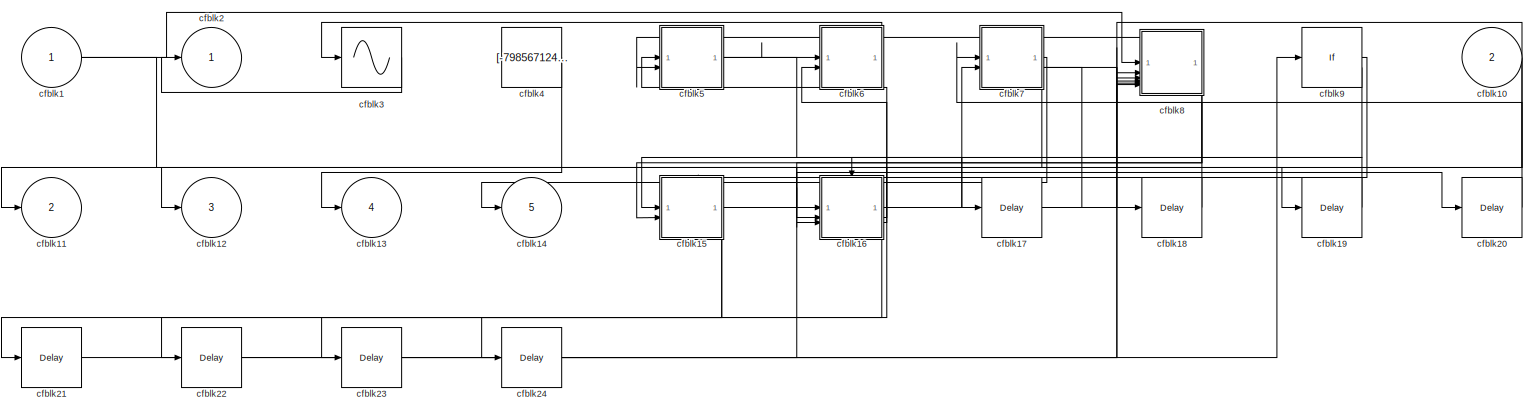
[diagram: cfblk66 - part 1/1, most of the canvas]
BLOCK [SubSystem] cfblk66
BLOCK [Inport] cfblk66/cfblk1
BLOCK [Inport] cfblk66/cfblk10
  Port = 2
BLOCK [Outport] cfblk66/cfblk11
  Port = 2
BLOCK [Outport] cfblk66/cfblk12
  Port = 3
BLOCK [Outport] cfblk66/cfblk13
  Port = 4
BLOCK [Outport] cfblk66/cfblk14
  Port = 5
BLOCK [SubSystem] cfblk66/cfblk15
  TreatAsAtomicUnit = on
BLOCK [ActionPort] cfblk66/cfblk15/Action Port
  ActionPortLabel = if(u1 >= 0)
BLOCK [Inport] cfblk66/cfblk15/cfblk1
BLOCK [Outport] cfblk66/cfblk15/cfblk2
BLOCK [DiscreteStateSpace] cfblk66/cfblk15/cfblk3
  SampleTime = -1
BLOCK [DiscreteZeroPole] cfblk66/cfblk15/cfblk4
  Gain = 1
  Poles = [0 0.5]
  SampleTime = -1
BLOCK [Product] cfblk66/cfblk15/cfblk5
  Inputs = *
BLOCK [Sin] cfblk66/cfblk15/cfblk6
  SampleTime = 0
  TimeSource = Use external signal
BLOCK [Constant] cfblk66/cfblk15/cfblk7
  SampleTime = 1
  Value = [-173418889.198818]
BLOCK [Inport] cfblk66/cfblk15/cfblk8
  Port = 2
BLOCK [Outport] cfblk66/cfblk15/cfblk9
  Port = 2
BLOCK [SubSystem] cfblk66/cfblk16
  TreatAsAtomicUnit = on
BLOCK [ActionPort] cfblk66/cfblk16/Action Port
  ActionPortLabel = else
BLOCK [Inport] cfblk66/cfblk16/cfblk1
BLOCK [Inport] cfblk66/cfblk16/cfblk10
  Port = 2
BLOCK [Inport] cfblk66/cfblk16/cfblk11
  Port = 3
BLOCK [Outport] cfblk66/cfblk16/cfblk12
  Port = 2
BLOCK [Outport] cfblk66/cfblk16/cfblk13
  Port = 3
BLOCK [Delay] cfblk66/cfblk16/cfblk14
  InputPortMap = u0
BLOCK [Outport] cfblk66/cfblk16/cfblk2
BLOCK [Reference] cfblk66/cfblk16/cfblk3  REF=slpidlib/PID Controller
  LibrarySourceBlock = simulink/Discrete/Discrete PID Controller
  SourceBlock = slpidlib/PID Controller
  SourceType = PID 1dof
BLOCK [Abs] cfblk66/cfblk16/cfblk4
  SaturateOnIntegerOverflow = off
BLOCK [Sum] cfblk66/cfblk16/cfblk5
  IconShape = rectangular
  Inputs = +-
BLOCK [Reshape] cfblk66/cfblk16/cfblk6
BLOCK [Polyval] cfblk66/cfblk16/cfblk7
  Coefs = [ +2.081618890e-019, -1.441693666e-014, +4.719686976e-010, -8.536869453e-006, +1.621573104e-001, -8.087801117e+001 ]
BLOCK [Sin] cfblk66/cfblk16/cfblk8
  SampleTime = 0
  TimeSource = Use external signal
BLOCK [Reference] cfblk66/cfblk16/cfblk9  REF=simulink/Math
Operations/MinMax
Running
Resettable
  SourceBlock = simulink/Math\nOperations/MinMax\nRunning\nResettable
  SourceType = MinMax Running Resettable
BLOCK [Delay] cfblk66/cfblk17
  InputPortMap = u0
  SampleTime = 1
BLOCK [Delay] cfblk66/cfblk18
  InputPortMap = u0
  SampleTime = 1
BLOCK [Delay] cfblk66/cfblk19
  InputPortMap = u0
  SampleTime = 1
BLOCK [Outport] cfblk66/cfblk2
BLOCK [Delay] cfblk66/cfblk20
  InputPortMap = u0
  SampleTime = 1
BLOCK [Delay] cfblk66/cfblk21
  InputPortMap = u0
  SampleTime = 1
BLOCK [Delay] cfblk66/cfblk22
  InputPortMap = u0
  SampleTime = 1
BLOCK [Delay] cfblk66/cfblk23
  InputPortMap = u0
  SampleTime = 1
BLOCK [Delay] cfblk66/cfblk24
  InputPortMap = u0
  SampleTime = 1
BLOCK [Sin] cfblk66/cfblk3
  SampleTime = 0
  TimeSource = Use external signal
BLOCK [Constant] cfblk66/cfblk4
  SampleTime = 1
  Value = [-798567124.770308]
BLOCK [SubSystem] cfblk66/cfblk5
BLOCK [Inport] cfblk66/cfblk5/cfblk1
BLOCK [Delay] cfblk66/cfblk5/cfblk10
  InputPortMap = u0
  SampleTime = 1
BLOCK [Outport] cfblk66/cfblk5/cfblk2
BLOCK [DotProduct] cfblk66/cfblk5/cfblk3
  OutDataTypeStr = Inherit: Inherit via internal rule
BLOCK [Product] cfblk66/cfblk5/cfblk4
  Inputs = *
BLOCK [Product] cfblk66/cfblk5/cfblk5
BLOCK [Sum] cfblk66/cfblk5/cfblk6
  IconShape = rectangular
  Inputs = -+
BLOCK [Gain] cfblk66/cfblk5/cfblk7
  Gain = [552499647.854787]
BLOCK [Product] cfblk66/cfblk5/cfblk8
BLOCK [Inport] cfblk66/cfblk5/cfblk9
  Port = 2
BLOCK [SubSystem] cfblk66/cfblk6
BLOCK [Inport] cfblk66/cfblk6/cfblk1
BLOCK [Outport] cfblk66/cfblk6/cfblk2
BLOCK [Reference] cfblk66/cfblk6/cfblk3  REF=simulink/Discrete/Tapped Delay
  SourceBlock = simulink/Discrete/Tapped Delay
  SourceType = Tapped Delay Line
BLOCK [Delay] cfblk66/cfblk6/cfblk4
  DelayLengthSource = Input port
  InputPortMap = u0,p1
  SampleTime = 1
BLOCK [Rounding] cfblk66/cfblk6/cfblk5
BLOCK [Rounding] cfblk66/cfblk6/cfblk6
BLOCK [Inport] cfblk66/cfblk6/cfblk7
  Port = 2
BLOCK [Delay] cfblk66/cfblk6/cfblk8
  InputPortMap = u0
  SampleTime = 1
BLOCK [SubSystem] cfblk66/cfblk7
BLOCK [Inport] cfblk66/cfblk7/cfblk1
BLOCK [Outport] cfblk66/cfblk7/cfblk10
  Port = 2
BLOCK [Outport] cfblk66/cfblk7/cfblk2
BLOCK [DiscreteZeroPole] cfblk66/cfblk7/cfblk3
  Gain = 1
  Poles = [0 0.5]
BLOCK [Reference] cfblk66/cfblk7/cfblk4  REF=slpidlib/PID Controller
  LibrarySourceBlock = simulink/Discrete/Discrete PID Controller
  SourceBlock = slpidlib/PID Controller
  SourceType = PID 1dof
BLOCK [UnitDelay] cfblk66/cfblk7/cfblk5
  HasFrameUpgradeWarning = on
BLOCK [Product] cfblk66/cfblk7/cfblk6
  Inputs = **
BLOCK [ComplexToRealImag] cfblk66/cfblk7/cfblk7
BLOCK [Constant] cfblk66/cfblk7/cfblk8
  SampleTime = 1
  Value = [968373965.664397]
BLOCK [Inport] cfblk66/cfblk7/cfblk9
  Port = 2
BLOCK [SubSystem] cfblk66/cfblk8
BLOCK [Inport] cfblk66/cfblk8/cfblk1
BLOCK [Inport] cfblk66/cfblk8/cfblk10
  Port = 2
BLOCK [Inport] cfblk66/cfblk8/cfblk11
  Port = 3
BLOCK [Inport] cfblk66/cfblk8/cfblk12
  Port = 4
BLOCK [Inport] cfblk66/cfblk8/cfblk13
  Port = 5
BLOCK [Inport] cfblk66/cfblk8/cfblk14
  Port = 6
BLOCK [Outport] cfblk66/cfblk8/cfblk15
  Port = 2
BLOCK [Outport] cfblk66/cfblk8/cfblk2
BLOCK [Reference] cfblk66/cfblk8/cfblk3  REF=simulink/Discrete/Difference
  SourceBlock = simulink/Discrete/Difference
  SourceType = Difference
BLOCK [Reference] cfblk66/cfblk8/cfblk4  REF=simulink/Discrete/Transfer Fcn
First Order
  SourceBlock = simulink/Discrete/Transfer Fcn\nFirst Order
  SourceType = First Order Transfer Fcn
BLOCK [Delay] cfblk66/cfblk8/cfblk5
  InputPortMap = u0
  SampleTime = 1
BLOCK [Reference] cfblk66/cfblk8/cfblk6  REF=simulink/Math
Operations/Slider
Gain
  SourceBlock = simulink/Math\nOperations/Slider\nGain
  SourceType = Slider Gain
BLOCK [UnaryMinus] cfblk66/cfblk8/cfblk7
BLOCK [Constant] cfblk66/cfblk8/cfblk8
  SampleTime = 1
  Value = [-869915937.607975]
BLOCK [Constant] cfblk66/cfblk8/cfblk9
  SampleTime = 1
  Value = [318281932.518032]
BLOCK [If] cfblk66/cfblk9
  IfExpression = u1 >= 0
  SampleTime = 1
BLOCK [If] cfblk67
  IfExpression = u1 >= 0
  SampleTime = 1
BLOCK [If] cfblk68
  IfExpression = u1 >= 0
  SampleTime = 1
BLOCK [If] cfblk69
  IfExpression = u1 >= 0
  SampleTime = 1
BLOCK [DiscreteStateSpace] cfblk7
BLOCK [If] cfblk70
  IfExpression = u1 >= 0
  SampleTime = 1
BLOCK [SubSystem] cfblk71
  TreatAsAtomicUnit = on
BLOCK [ActionPort] cfblk71/Action Port
  ActionPortLabel = if(u1 >= 0)
BLOCK [Inport] cfblk71/cfblk1
BLOCK [Delay] cfblk71/cfblk10
  InputPortMap = u0
BLOCK [Delay] cfblk71/cfblk11
  InputPortMap = u0
BLOCK [Delay] cfblk71/cfblk12
  InputPortMap = u0
BLOCK [Outport] cfblk71/cfblk2
BLOCK [DiscreteFilter] cfblk71/cfblk3
  InputPortMap = u0
BLOCK [DotProduct] cfblk71/cfblk4
  OutDataTypeStr = Inherit: Inherit via internal rule
BLOCK [Reference] cfblk71/cfblk5  REF=simulink/Math
Operations/MinMax
Running
Resettable
  SourceBlock = simulink/Math\nOperations/MinMax\nRunning\nResettable
  SourceType = MinMax Running Resettable
BLOCK [Sum] cfblk71/cfblk6
  IconShape = rectangular
  Inputs = +
BLOCK [SubSystem] cfblk71/cfblk7
BLOCK [Inport] cfblk71/cfblk7/cfblk1
BLOCK [Outport] cfblk71/cfblk7/cfblk2
BLOCK [DiscreteTransferFcn] cfblk71/cfblk7/cfblk3
  InputPortMap = u0
BLOCK [PropagationDelay] cfblk71/cfblk7/cfblk4
  SampleTime = -1
BLOCK [Sum] cfblk71/cfblk7/cfblk5
  IconShape = rectangular
  Inputs = +-
BLOCK [Constant] cfblk71/cfblk7/cfblk6
  SampleTime = 1
  Value = [747996583.654830]
BLOCK [Inport] cfblk71/cfblk7/cfblk7
  Port = 2
BLOCK [Outport] cfblk71/cfblk7/cfblk8
  Port = 2
BLOCK [Outport] cfblk71/cfblk7/cfblk9
  Port = 3
BLOCK [SubSystem] cfblk71/cfblk8
BLOCK [Inport] cfblk71/cfblk8/cfblk1
BLOCK [Sum] cfblk71/cfblk8/cfblk10
  IconShape = rectangular
  Inputs = +-
BLOCK [Sqrt] cfblk71/cfblk8/cfblk11
  AlgorithmType = Newton-Raphson
  Operator = rSqrt
BLOCK [Trigonometry] cfblk71/cfblk8/cfblk12
BLOCK [Constant] cfblk71/cfblk8/cfblk13
  SampleTime = 1
  Value = [770311055.758764]
BLOCK [Inport] cfblk71/cfblk8/cfblk14
  Port = 2
BLOCK [Inport] cfblk71/cfblk8/cfblk15
  Port = 3
BLOCK [Outport] cfblk71/cfblk8/cfblk16
  Port = 2
BLOCK [Outport] cfblk71/cfblk8/cfblk17
  Port = 3
BLOCK [Delay] cfblk71/cfblk8/cfblk18
  InputPortMap = u0
BLOCK [Delay] cfblk71/cfblk8/cfblk19
  InputPortMap = u0
BLOCK [Outport] cfblk71/cfblk8/cfblk2
BLOCK [DiscreteTransferFcn] cfblk71/cfblk8/cfblk3
  InputPortMap = u0
BLOCK [Reference] cfblk71/cfblk8/cfblk4  REF=slpidlib/PID Controller
  LibrarySourceBlock = simulink/Discrete/Discrete PID Controller
  SourceBlock = slpidlib/PID Controller
  SourceType = PID 1dof
BLOCK [Reference] cfblk71/cfblk8/cfblk5  REF=simulink/Discrete/Transfer Fcn
First Order
  SourceBlock = simulink/Discrete/Transfer Fcn\nFirst Order
  SourceType = First Order Transfer Fcn
BLOCK [DiscreteFir] cfblk71/cfblk8/cfblk6
  InputPortMap = u0
  OutputPortMap = o0
BLOCK [Reference] cfblk71/cfblk8/cfblk7  REF=simulink/Discrete/Tapped Delay
  SourceBlock = simulink/Discrete/Tapped Delay
  SourceType = Tapped Delay Line
BLOCK [Math] cfblk71/cfblk8/cfblk8
  Operator = hermitian
BLOCK [ComplexToRealImag] cfblk71/cfblk8/cfblk9
BLOCK [Outport] cfblk71/cfblk9
  Port = 2
BLOCK [SubSystem] cfblk72
  TreatAsAtomicUnit = on
BLOCK [ActionPort] cfblk72/Action Port
  ActionPortLabel = else
BLOCK [Inport] cfblk72/cfblk1
BLOCK [Delay] cfblk72/cfblk10
  InputPortMap = u0
BLOCK [Delay] cfblk72/cfblk11
  InputPortMap = u0
BLOCK [Outport] cfblk72/cfblk2
BLOCK [Polyval] cfblk72/cfblk3
  Coefs = [ +2.081618890e-019, -1.441693666e-014, +4.719686976e-010, -8.536869453e-006, +1.621573104e-001, -8.087801117e+001 ]
BLOCK [MinMax] cfblk72/cfblk4
  Function = max
BLOCK [SubSystem] cfblk72/cfblk5
BLOCK [Inport] cfblk72/cfblk5/cfblk1
BLOCK [Constant] cfblk72/cfblk5/cfblk10
  SampleTime = 1
  Value = [1225309.854753]
BLOCK [Constant] cfblk72/cfblk5/cfblk11
  SampleTime = 1
  Value = [508259964.648154]
BLOCK [Constant] cfblk72/cfblk5/cfblk12
  SampleTime = 1
  Value = [177209091.328526]
BLOCK [Inport] cfblk72/cfblk5/cfblk13
  Port = 2
BLOCK [Inport] cfblk72/cfblk5/cfblk14
  Port = 3
BLOCK [Outport] cfblk72/cfblk5/cfblk2
BLOCK [Reference] cfblk72/cfblk5/cfblk3  REF=slpidlib/PID Controller (2DOF)
  LibrarySourceBlock = simulink/Discrete/Discrete PID Controller (2DOF)
  SourceBlock = slpidlib/PID Controller (2DOF)
  SourceType = PID 2dof
BLOCK [Delay] cfblk72/cfblk5/cfblk4
  InputPortMap = u0,e6
  ShowEnablePort = on
BLOCK [Reference] cfblk72/cfblk5/cfblk5  REF=slpidlib/PID Controller (2DOF)
  LibrarySourceBlock = simulink/Discrete/Discrete PID Controller (2DOF)
  SourceBlock = slpidlib/PID Controller (2DOF)
  SourceType = PID 2dof
BLOCK [ComplexToMagnitudeAngle] cfblk72/cfblk5/cfblk6
BLOCK [Rounding] cfblk72/cfblk5/cfblk7
BLOCK [Reshape] cfblk72/cfblk5/cfblk8
BLOCK [Assignment] cfblk72/cfblk5/cfblk9
  DiagnosticForDimensions = Warning
  IndexOptions = Index vector (dialog)
  Indices = 1
  OutputSizes = 1
BLOCK [SubSystem] cfblk72/cfblk6
BLOCK [Inport] cfblk72/cfblk6/cfblk1
BLOCK [Outport] cfblk72/cfblk6/cfblk2
BLOCK [Reference] cfblk72/cfblk6/cfblk3  REF=simulink/Discrete/Difference
  SourceBlock = simulink/Discrete/Difference
  SourceType = Difference
BLOCK [DiscreteFilter] cfblk72/cfblk6/cfblk4
  InputPortMap = u0
BLOCK [PermuteDimensions] cfblk72/cfblk6/cfblk5
BLOCK [Rounding] cfblk72/cfblk6/cfblk6
BLOCK [Reshape] cfblk72/cfblk6/cfblk7
BLOCK [Inport] cfblk72/cfblk6/cfblk8
  Port = 2
BLOCK [Outport] cfblk72/cfblk6/cfblk9
  Port = 2
BLOCK [Outport] cfblk72/cfblk7
  Port = 2
BLOCK [Outport] cfblk72/cfblk8
  Port = 3
BLOCK [Delay] cfblk72/cfblk9
  InputPortMap = u0
BLOCK [SubSystem] cfblk73
  TreatAsAtomicUnit = on
BLOCK [ActionPort] cfblk73/Action Port
  ActionPortLabel = if(u1 >= 0)
BLOCK [Inport] cfblk73/cfblk1
BLOCK [SubSystem] cfblk73/cfblk10
  TreatAsAtomicUnit = on
BLOCK [ActionPort] cfblk73/cfblk10/Action Port
  ActionPortLabel = else
BLOCK [Inport] cfblk73/cfblk10/cfblk1
BLOCK [Delay] cfblk73/cfblk10/cfblk10
  InputPortMap = u0
BLOCK [Delay] cfblk73/cfblk10/cfblk11
  InputPortMap = u0
BLOCK [Outport] cfblk73/cfblk10/cfblk2
BLOCK [DiscreteIntegrator] cfblk73/cfblk10/cfblk3
  ICPrevOutput = DiscIntNeverNeededParam
  ICPrevScaledInput = DiscIntNeverNeededParam
  InitialConditionSetting = Auto
  SampleTime = -1
BLOCK [Delay] cfblk73/cfblk10/cfblk4
  InputPortMap = u0
BLOCK [Abs] cfblk73/cfblk10/cfblk5
  SaturateOnIntegerOverflow = off
BLOCK [Sum] cfblk73/cfblk10/cfblk6
  IconShape = rectangular
  Inputs = +-
BLOCK [PermuteDimensions] cfblk73/cfblk10/cfblk7
BLOCK [Sqrt] cfblk73/cfblk10/cfblk8
BLOCK [Inport] cfblk73/cfblk10/cfblk9
  Port = 2
BLOCK [Delay] cfblk73/cfblk11
  InputPortMap = u0
BLOCK [Delay] cfblk73/cfblk12
  InputPortMap = u0
BLOCK [Delay] cfblk73/cfblk13
  InputPortMap = u0
BLOCK [Delay] cfblk73/cfblk14
  InputPortMap = u0
BLOCK [Delay] cfblk73/cfblk15
  InputPortMap = u0
BLOCK [Delay] cfblk73/cfblk16
  InputPortMap = u0
BLOCK [Delay] cfblk73/cfblk17
  InputPortMap = u0
BLOCK [Delay] cfblk73/cfblk18
  InputPortMap = u0
BLOCK [Delay] cfblk73/cfblk19
  InputPortMap = u0
BLOCK [Outport] cfblk73/cfblk2
BLOCK [Delay] cfblk73/cfblk20
  InputPortMap = u0
BLOCK [SubSystem] cfblk73/cfblk3
BLOCK [Inport] cfblk73/cfblk3/cfblk1
BLOCK [Reshape] cfblk73/cfblk3/cfblk10
BLOCK [ComplexToRealImag] cfblk73/cfblk3/cfblk11
BLOCK [Constant] cfblk73/cfblk3/cfblk12
  SampleTime = 1
  Value = [-257241759.779956]
BLOCK [Constant] cfblk73/cfblk3/cfblk13
  SampleTime = 1
  Value = [-353486481.477825]
BLOCK [Outport] cfblk73/cfblk3/cfblk14
  Port = 2
BLOCK [Outport] cfblk73/cfblk3/cfblk2
BLOCK [Reference] cfblk73/cfblk3/cfblk3  REF=slpidlib/PID Controller (2DOF)
  LibrarySourceBlock = simulink/Discrete/Discrete PID Controller (2DOF)
  SourceBlock = slpidlib/PID Controller (2DOF)
  SourceType = PID 2dof
BLOCK [DiscreteFilter] cfblk73/cfblk3/cfblk4
  InputPortMap = u0
BLOCK [DiscreteZeroPole] cfblk73/cfblk3/cfblk5
  Gain = 1
  Poles = [0 0.5]
  SampleTime = -1
BLOCK [Reference] cfblk73/cfblk3/cfblk6  REF=slpidlib/PID Controller
  LibrarySourceBlock = simulink/Discrete/Discrete PID Controller
  SourceBlock = slpidlib/PID Controller
  SourceType = PID 1dof
BLOCK [Delay] cfblk73/cfblk3/cfblk7
  InputPortMap = u0,e6
  ShowEnablePort = on
BLOCK [Squeeze] cfblk73/cfblk3/cfblk8
BLOCK [Sin] cfblk73/cfblk3/cfblk9
  SampleTime = 0
  TimeSource = Use external signal
BLOCK [SubSystem] cfblk73/cfblk4
BLOCK [Inport] cfblk73/cfblk4/cfblk1
BLOCK [Outport] cfblk73/cfblk4/cfblk2
BLOCK [DiscreteIntegrator] cfblk73/cfblk4/cfblk3
  ICPrevOutput = DiscIntNeverNeededParam
  ICPrevScaledInput = DiscIntNeverNeededParam
  InitialConditionSetting = Auto
  SampleTime = -1
BLOCK [Delay] cfblk73/cfblk4/cfblk4
  InputPortMap = u0,e6
  ShowEnablePort = on
BLOCK [UnaryMinus] cfblk73/cfblk4/cfblk5
BLOCK [Gain] cfblk73/cfblk4/cfblk6
  Gain = [-289619886.241037]
BLOCK [Constant] cfblk73/cfblk4/cfblk7
  SampleTime = 1
  Value = [415310273.733436]
BLOCK [Inport] cfblk73/cfblk4/cfblk8
  Port = 2
BLOCK [Delay] cfblk73/cfblk4/cfblk9
  InputPortMap = u0
BLOCK [SubSystem] cfblk73/cfblk5
BLOCK [Inport] cfblk73/cfblk5/cfblk1
BLOCK [Bias] cfblk73/cfblk5/cfblk10
  Bias = [-902140752.579339]
  SaturateOnIntegerOverflow = off
BLOCK [DotProduct] cfblk73/cfblk5/cfblk11
  OutDataTypeStr = Inherit: Inherit via internal rule
BLOCK [Constant] cfblk73/cfblk5/cfblk12
  SampleTime = 1
  Value = [-463737727.810119]
BLOCK [Inport] cfblk73/cfblk5/cfblk13
  Port = 2
BLOCK [Inport] cfblk73/cfblk5/cfblk14
  Port = 3
BLOCK [Inport] cfblk73/cfblk5/cfblk15
  Port = 4
BLOCK [Inport] cfblk73/cfblk5/cfblk16
  Port = 5
BLOCK [Delay] cfblk73/cfblk5/cfblk17
  InputPortMap = u0
BLOCK [Delay] cfblk73/cfblk5/cfblk18
  InputPortMap = u0
BLOCK [Outport] cfblk73/cfblk5/cfblk2
BLOCK [Reference] cfblk73/cfblk5/cfblk3  REF=slpidlib/PID Controller (2DOF)
  LibrarySourceBlock = simulink/Discrete/Discrete PID Controller (2DOF)
  SourceBlock = slpidlib/PID Controller (2DOF)
  SourceType = PID 2dof
BLOCK [Reference] cfblk73/cfblk5/cfblk4  REF=slpidlib/PID Controller
  LibrarySourceBlock = simulink/Discrete/Discrete PID Controller
  SourceBlock = slpidlib/PID Controller
  SourceType = PID 1dof
BLOCK [DiscreteIntegrator] cfblk73/cfblk5/cfblk5
  ICPrevOutput = DiscIntNeverNeededParam
  ICPrevScaledInput = DiscIntNeverNeededParam
  InitialConditionSetting = Auto
  SampleTime = -1
BLOCK [UnitDelay] cfblk73/cfblk5/cfblk6
  HasFrameUpgradeWarning = on
  SampleTime = -1
BLOCK [DiscreteZeroPole] cfblk73/cfblk5/cfblk7
  Gain = 1
  Poles = [0 0.5]
  SampleTime = -1
BLOCK [Delay] cfblk73/cfblk5/cfblk8
  InputPortMap = u0,e6
  ShowEnablePort = on
BLOCK [Sum] cfblk73/cfblk5/cfblk9
  IconShape = rectangular
  Inputs = +-
BLOCK [SubSystem] cfblk73/cfblk6
BLOCK [Inport] cfblk73/cfblk6/cfblk1
BLOCK [Constant] cfblk73/cfblk6/cfblk10
  SampleTime = 1
  Value = [-256919920.722073]
BLOCK [Inport] cfblk73/cfblk6/cfblk11
  Port = 2
BLOCK [Inport] cfblk73/cfblk6/cfblk12
  Port = 3
BLOCK [Inport] cfblk73/cfblk6/cfblk13
  Port = 4
BLOCK [Outport] cfblk73/cfblk6/cfblk14
  Port = 2
BLOCK [Outport] cfblk73/cfblk6/cfblk2
BLOCK [Reference] cfblk73/cfblk6/cfblk3  REF=slpidlib/PID Controller
  LibrarySourceBlock = simulink/Discrete/Discrete PID Controller
  SourceBlock = slpidlib/PID Controller
  SourceType = PID 1dof
BLOCK [DiscreteTransferFcn] cfblk73/cfblk6/cfblk4
  InputPortMap = u0
BLOCK [DiscreteZeroPole] cfblk73/cfblk6/cfblk5
  Gain = 1
  Poles = [0 0.5]
  SampleTime = -1
BLOCK [Reference] cfblk73/cfblk6/cfblk6  REF=slpidlib/PID Controller (2DOF)
  LibrarySourceBlock = simulink/Discrete/Discrete PID Controller (2DOF)
  SourceBlock = slpidlib/PID Controller (2DOF)
  SourceType = PID 2dof
BLOCK [Abs] cfblk73/cfblk6/cfblk7
  SaturateOnIntegerOverflow = off
BLOCK [Math] cfblk73/cfblk6/cfblk8
  Operator = 10^u
BLOCK [Gain] cfblk73/cfblk6/cfblk9
  Gain = [-422597155.093237]
BLOCK [SubSystem] cfblk73/cfblk7
BLOCK [Inport] cfblk73/cfblk7/cfblk1
BLOCK [Inport] cfblk73/cfblk7/cfblk10
  Port = 4
BLOCK [Outport] cfblk73/cfblk7/cfblk11
  Port = 2
BLOCK [Delay] cfblk73/cfblk7/cfblk12
  InputPortMap = u0
BLOCK [Outport] cfblk73/cfblk7/cfblk2
BLOCK [Reference] cfblk73/cfblk7/cfblk3  REF=slpidlib/PID Controller
  LibrarySourceBlock = simulink/Discrete/Discrete PID Controller
  SourceBlock = slpidlib/PID Controller
  SourceType = PID 1dof
BLOCK [Reference] cfblk73/cfblk7/cfblk4  REF=simulink/Discrete/Difference
  SourceBlock = simulink/Discrete/Difference
  SourceType = Difference
BLOCK [Reference] cfblk73/cfblk7/cfblk5  REF=simulink/Discrete/Transfer Fcn
Lead or Lag
  SourceBlock = simulink/Discrete/Transfer Fcn\nLead or Lag
  SourceType = Lead or Lag Compensator
BLOCK [DiscreteFilter] cfblk73/cfblk7/cfblk6
  InputPortMap = u0
BLOCK [Constant] cfblk73/cfblk7/cfblk7
  SampleTime = 1
  Value = [-223696037.411082]
BLOCK [Inport] cfblk73/cfblk7/cfblk8
  Port = 2
BLOCK [Inport] cfblk73/cfblk7/cfblk9
  Port = 3
BLOCK [If] cfblk73/cfblk8
  IfExpression = u1 >= 0
  SampleTime = 1
BLOCK [SubSystem] cfblk73/cfblk9
  TreatAsAtomicUnit = on
BLOCK [ActionPort] cfblk73/cfblk9/Action Port
  ActionPortLabel = if(u1 >= 0)
BLOCK [Inport] cfblk73/cfblk9/cfblk1
BLOCK [Outport] cfblk73/cfblk9/cfblk2
BLOCK [Reference] cfblk73/cfblk9/cfblk3  REF=simulink/Discrete/Difference
  SourceBlock = simulink/Discrete/Difference
  SourceType = Difference
BLOCK [Reference] cfblk73/cfblk9/cfblk4  REF=simulink/Discrete/Transfer Fcn
Real Zero
  SourceBlock = simulink/Discrete/Transfer Fcn\nReal Zero
  SourceType = Transfer Fcn Real Zero
BLOCK [DotProduct] cfblk73/cfblk9/cfblk5
  OutDataTypeStr = Inherit: Inherit via internal rule
BLOCK [Sin] cfblk73/cfblk9/cfblk6
  SampleTime = 0
  TimeSource = Use external signal
BLOCK [Constant] cfblk73/cfblk9/cfblk7
  SampleTime = 1
  Value = [-142636777.749799]
BLOCK [Constant] cfblk73/cfblk9/cfblk8
  SampleTime = 1
  Value = [-121798747.135322]
BLOCK [Outport] cfblk73/cfblk9/cfblk9
  Port = 2
BLOCK [SubSystem] cfblk74
  TreatAsAtomicUnit = on
BLOCK [ActionPort] cfblk74/Action Port
  ActionPortLabel = else
BLOCK [Inport] cfblk74/cfblk1
BLOCK [SubSystem] cfblk74/cfblk10
BLOCK [Inport] cfblk74/cfblk10/cfblk1
BLOCK [Outport] cfblk74/cfblk10/cfblk2
BLOCK [Reference] cfblk74/cfblk10/cfblk3  REF=slpidlib/PID Controller
  LibrarySourceBlock = simulink/Discrete/Discrete PID Controller
  SourceBlock = slpidlib/PID Controller
  SourceType = PID 1dof
BLOCK [Reference] cfblk74/cfblk10/cfblk4  REF=slpidlib/PID Controller (2DOF)
  LibrarySourceBlock = simulink/Discrete/Discrete PID Controller (2DOF)
  SourceBlock = slpidlib/PID Controller (2DOF)
  SourceType = PID 2dof
BLOCK [ComplexToRealImag] cfblk74/cfblk10/cfblk5
BLOCK [Inport] cfblk74/cfblk10/cfblk6
  Port = 2
BLOCK [Inport] cfblk74/cfblk10/cfblk7
  Port = 3
BLOCK [SubSystem] cfblk74/cfblk11
BLOCK [Inport] cfblk74/cfblk11/cfblk1
BLOCK [Sum] cfblk74/cfblk11/cfblk10
  IconShape = rectangular
  Inputs = --
BLOCK [Constant] cfblk74/cfblk11/cfblk11
  SampleTime = 1
  Value = [854724414.140766]
BLOCK [Constant] cfblk74/cfblk11/cfblk12
  SampleTime = 1
  Value = [-895811210.073496]
BLOCK [Inport] cfblk74/cfblk11/cfblk13
  Port = 2
BLOCK [Inport] cfblk74/cfblk11/cfblk14
  Port = 3
BLOCK [Outport] cfblk74/cfblk11/cfblk15
  Port = 2
BLOCK [Outport] cfblk74/cfblk11/cfblk16
  Port = 3
BLOCK [Outport] cfblk74/cfblk11/cfblk17
  Port = 4
BLOCK [Delay] cfblk74/cfblk11/cfblk18
  InputPortMap = u0
BLOCK [Outport] cfblk74/cfblk11/cfblk2
BLOCK [UnitDelay] cfblk74/cfblk11/cfblk3
  HasFrameUpgradeWarning = on
  SampleTime = -1
BLOCK [DiscreteTransferFcn] cfblk74/cfblk11/cfblk4
  InputPortMap = u0
BLOCK [MinMax] cfblk74/cfblk11/cfblk5
BLOCK [Gain] cfblk74/cfblk11/cfblk6
  Gain = [350013617.842508]
BLOCK [PermuteDimensions] cfblk74/cfblk11/cfblk7
BLOCK [Product] cfblk74/cfblk11/cfblk8
  Inputs = **
BLOCK [Rounding] cfblk74/cfblk11/cfblk9
BLOCK [SubSystem] cfblk74/cfblk12
BLOCK [Inport] cfblk74/cfblk12/cfblk1
BLOCK [Squeeze] cfblk74/cfblk12/cfblk10
BLOCK [Reference] cfblk74/cfblk12/cfblk11  REF=simulink/Math
Operations/Slider
Gain
  SourceBlock = simulink/Math\nOperations/Slider\nGain
  SourceType = Slider Gain
BLOCK [Reshape] cfblk74/cfblk12/cfblk12
BLOCK [Reference] cfblk74/cfblk12/cfblk13  REF=simulink/Math
Operations/MinMax
Running
Resettable
  SourceBlock = simulink/Math\nOperations/MinMax\nRunning\nResettable
  SourceType = MinMax Running Resettable
BLOCK [Reference] cfblk74/cfblk12/cfblk14  REF=simulink/Math
Operations/Slider
Gain
  SourceBlock = simulink/Math\nOperations/Slider\nGain
  SourceType = Slider Gain
BLOCK [Constant] cfblk74/cfblk12/cfblk15
  SampleTime = 1
  Value = [770645832.119031]
BLOCK [Inport] cfblk74/cfblk12/cfblk16
  Port = 2
BLOCK [Delay] cfblk74/cfblk12/cfblk17
  InputPortMap = u0
BLOCK [Outport] cfblk74/cfblk12/cfblk2
BLOCK [DiscreteFir] cfblk74/cfblk12/cfblk3
  InputPortMap = u0
  OutputPortMap = o0
BLOCK [DiscreteTransferFcn] cfblk74/cfblk12/cfblk4
  InputPortMap = u0
BLOCK [UnitDelay] cfblk74/cfblk12/cfblk5
  HasFrameUpgradeWarning = on
  SampleTime = -1
BLOCK [Reference] cfblk74/cfblk12/cfblk6  REF=simulink/Discrete/Transfer Fcn
First Order
  SourceBlock = simulink/Discrete/Transfer Fcn\nFirst Order
  SourceType = First Order Transfer Fcn
BLOCK [DiscreteIntegrator] cfblk74/cfblk12/cfblk7
  ICPrevOutput = DiscIntNeverNeededParam
  ICPrevScaledInput = DiscIntNeverNeededParam
  InitialConditionSetting = Auto
  SampleTime = -1
BLOCK [Bias] cfblk74/cfblk12/cfblk8
  Bias = [494326077.208240]
  SaturateOnIntegerOverflow = off
BLOCK [DotProduct] cfblk74/cfblk12/cfblk9
  OutDataTypeStr = Inherit: Inherit via internal rule
BLOCK [Delay] cfblk74/cfblk13
  InputPortMap = u0
BLOCK [Delay] cfblk74/cfblk14
  InputPortMap = u0
BLOCK [Outport] cfblk74/cfblk2
BLOCK [DiscreteTransferFcn] cfblk74/cfblk3
  InputPortMap = u0
BLOCK [Reference] cfblk74/cfblk4  REF=simulink/Discrete/Transfer Fcn
First Order
  SourceBlock = simulink/Discrete/Transfer Fcn\nFirst Order
  SourceType = First Order Transfer Fcn
BLOCK [Trigonometry] cfblk74/cfblk5
BLOCK [Gain] cfblk74/cfblk6
  Gain = [-219370182.428555]
BLOCK [Sqrt] cfblk74/cfblk7
  AlgorithmType = Newton-Raphson
  Operator = rSqrt
BLOCK [Product] cfblk74/cfblk8
  Inputs = **
BLOCK [Constant] cfblk74/cfblk9
  SampleTime = 1
  Value = [-268738381.821073]
BLOCK [SubSystem] cfblk75
  TreatAsAtomicUnit = on
BLOCK [ActionPort] cfblk75/Action Port
  ActionPortLabel = if(u1 >= 0)
BLOCK [Inport] cfblk75/cfblk1
BLOCK [Constant] cfblk75/cfblk10
  SampleTime = 1
  Value = [-934955466.260406]
BLOCK [Constant] cfblk75/cfblk11
  SampleTime = 1
  Value = [-857223806.206280]
BLOCK [SubSystem] cfblk75/cfblk12
BLOCK [Inport] cfblk75/cfblk12/cfblk1
BLOCK [Sqrt] cfblk75/cfblk12/cfblk10
BLOCK [Product] cfblk75/cfblk12/cfblk11
  Inputs = *
BLOCK [Reference] cfblk75/cfblk12/cfblk12  REF=simulink/Math
Operations/Slider
Gain
  SourceBlock = simulink/Math\nOperations/Slider\nGain
  SourceType = Slider Gain
BLOCK [Trigonometry] cfblk75/cfblk12/cfblk13
BLOCK [Constant] cfblk75/cfblk12/cfblk14
  SampleTime = 1
  Value = [-7568103.050469]
BLOCK [Inport] cfblk75/cfblk12/cfblk15
  Port = 2
BLOCK [Inport] cfblk75/cfblk12/cfblk16
  Port = 3
BLOCK [Outport] cfblk75/cfblk12/cfblk17
  Port = 2
BLOCK [Delay] cfblk75/cfblk12/cfblk18
  InputPortMap = u0
BLOCK [Outport] cfblk75/cfblk12/cfblk2
BLOCK [DiscreteIntegrator] cfblk75/cfblk12/cfblk3
  ICPrevOutput = DiscIntNeverNeededParam
  ICPrevScaledInput = DiscIntNeverNeededParam
  InitialConditionSetting = Auto
  SampleTime = -1
BLOCK [Reference] cfblk75/cfblk12/cfblk4  REF=simulink/Discrete/Tapped Delay
  SourceBlock = simulink/Discrete/Tapped Delay
  SourceType = Tapped Delay Line
BLOCK [Delay] cfblk75/cfblk12/cfblk5
  InputPortMap = u0,e6
  ShowEnablePort = on
BLOCK [Delay] cfblk75/cfblk12/cfblk6
  InputPortMap = u0
BLOCK [Sum] cfblk75/cfblk12/cfblk7
  Inputs = |++
BLOCK [Reshape] cfblk75/cfblk12/cfblk8
BLOCK [Rounding] cfblk75/cfblk12/cfblk9
BLOCK [SubSystem] cfblk75/cfblk13
BLOCK [Inport] cfblk75/cfblk13/cfblk1
BLOCK [Inport] cfblk75/cfblk13/cfblk10
  Port = 2
BLOCK [Inport] cfblk75/cfblk13/cfblk11
  Port = 3
BLOCK [Outport] cfblk75/cfblk13/cfblk12
  Port = 2
BLOCK [Outport] cfblk75/cfblk13/cfblk2
BLOCK [Reference] cfblk75/cfblk13/cfblk3  REF=simulink/Discrete/Difference
  SourceBlock = simulink/Discrete/Difference
  SourceType = Difference
BLOCK [Reference] cfblk75/cfblk13/cfblk4  REF=simulink/Discrete/Tapped Delay
  SourceBlock = simulink/Discrete/Tapped Delay
  SourceType = Tapped Delay Line
BLOCK [Reference] cfblk75/cfblk13/cfblk5  REF=simulink/Discrete/Transfer Fcn
Lead or Lag
  SourceBlock = simulink/Discrete/Transfer Fcn\nLead or Lag
  SourceType = Lead or Lag Compensator
BLOCK [Reference] cfblk75/cfblk13/cfblk6  REF=simulink/Discrete/Tapped Delay
  SourceBlock = simulink/Discrete/Tapped Delay
  SourceType = Tapped Delay Line
BLOCK [Constant] cfblk75/cfblk13/cfblk7
  SampleTime = 1
  Value = [58495809.097005]
BLOCK [Constant] cfblk75/cfblk13/cfblk8
  SampleTime = 1
  Value = [-166898214.588034]
BLOCK [Constant] cfblk75/cfblk13/cfblk9
  SampleTime = 1
  Value = [130704111.442490]
BLOCK [SubSystem] cfblk75/cfblk14
BLOCK [Inport] cfblk75/cfblk14/cfblk1
BLOCK [ComplexToRealImag] cfblk75/cfblk14/cfblk10
BLOCK [Sqrt] cfblk75/cfblk14/cfblk11
  AlgorithmType = Newton-Raphson
  Operator = rSqrt
BLOCK [Inport] cfblk75/cfblk14/cfblk12
  Port = 2
BLOCK [Inport] cfblk75/cfblk14/cfblk13
  Port = 3
BLOCK [Inport] cfblk75/cfblk14/cfblk14
  Port = 4
BLOCK [Outport] cfblk75/cfblk14/cfblk15
  Port = 2
BLOCK [Outport] cfblk75/cfblk14/cfblk16
  Port = 3
BLOCK [Outport] cfblk75/cfblk14/cfblk2
BLOCK [DiscreteZeroPole] cfblk75/cfblk14/cfblk3
  Gain = 1
  Poles = [0 0.5]
  SampleTime = -1
BLOCK [DiscreteTransferFcn] cfblk75/cfblk14/cfblk4
  InputPortMap = u0
BLOCK [DiscreteTransferFcn] cfblk75/cfblk14/cfblk5
  InputPortMap = u0
BLOCK [Reference] cfblk75/cfblk14/cfblk6  REF=simulink/Discrete/Transfer Fcn
Lead or Lag
  SourceBlock = simulink/Discrete/Transfer Fcn\nLead or Lag
  SourceType = Lead or Lag Compensator
BLOCK [Reference] cfblk75/cfblk14/cfblk7  REF=simulink/Discrete/Tapped Delay
  SourceBlock = simulink/Discrete/Tapped Delay
  SourceType = Tapped Delay Line
BLOCK [Reference] cfblk75/cfblk14/cfblk8  REF=simulink/Discrete/Difference
  SourceBlock = simulink/Discrete/Difference
  SourceType = Difference
BLOCK [DiscreteIntegrator] cfblk75/cfblk14/cfblk9
  ICPrevOutput = DiscIntNeverNeededParam
  ICPrevScaledInput = DiscIntNeverNeededParam
  InitialConditionSetting = Auto
  SampleTime = -1
BLOCK [SubSystem] cfblk75/cfblk15
BLOCK [Inport] cfblk75/cfblk15/cfblk1
BLOCK [MinMax] cfblk75/cfblk15/cfblk10
  Function = max
BLOCK [Product] cfblk75/cfblk15/cfblk11
BLOCK [Inport] cfblk75/cfblk15/cfblk12
  Port = 2
BLOCK [Inport] cfblk75/cfblk15/cfblk13
  Port = 3
BLOCK [Inport] cfblk75/cfblk15/cfblk14
  Port = 4
BLOCK [Inport] cfblk75/cfblk15/cfblk15
  Port = 5
BLOCK [Outport] cfblk75/cfblk15/cfblk16
  Port = 2
BLOCK [Delay] cfblk75/cfblk15/cfblk17
  InputPortMap = u0
BLOCK [Outport] cfblk75/cfblk15/cfblk2
BLOCK [PropagationDelay] cfblk75/cfblk15/cfblk3
  SampleTime = -1
BLOCK [DiscreteTransferFcn] cfblk75/cfblk15/cfblk4
  InputPortMap = u0
BLOCK [Delay] cfblk75/cfblk15/cfblk5
  InputPortMap = u0
BLOCK [ComplexToMagnitudeAngle] cfblk75/cfblk15/cfblk6
BLOCK [Assignment] cfblk75/cfblk15/cfblk7
  DiagnosticForDimensions = Warning
  IndexOptions = Index vector (dialog)
  Indices = 1
  OutputSizes = 1
BLOCK [Product] cfblk75/cfblk15/cfblk8
BLOCK [Sum] cfblk75/cfblk15/cfblk9
  IconShape = rectangular
BLOCK [Inport] cfblk75/cfblk16
  Port = 2
BLOCK [Outport] cfblk75/cfblk17
  Port = 2
BLOCK [Delay] cfblk75/cfblk18
  InputPortMap = u0
BLOCK [Delay] cfblk75/cfblk19
  InputPortMap = u0
BLOCK [Outport] cfblk75/cfblk2
BLOCK [Delay] cfblk75/cfblk20
  InputPortMap = u0
BLOCK [Delay] cfblk75/cfblk21
  InputPortMap = u0
BLOCK [DiscreteIntegrator] cfblk75/cfblk3
  ICPrevOutput = DiscIntNeverNeededParam
  ICPrevScaledInput = DiscIntNeverNeededParam
  InitialConditionSetting = Auto
  SampleTime = -1
BLOCK [DiscreteStateSpace] cfblk75/cfblk4
  SampleTime = -1
BLOCK [PropagationDelay] cfblk75/cfblk5
  SampleTime = -1
BLOCK [Reference] cfblk75/cfblk6  REF=simulink/Discrete/Transfer Fcn
First Order
  SourceBlock = simulink/Discrete/Transfer Fcn\nFirst Order
  SourceType = First Order Transfer Fcn
BLOCK [Product] cfblk75/cfblk7
  Inputs = *
BLOCK [Sum] cfblk75/cfblk8
  IconShape = rectangular
  Inputs = +-
BLOCK [Abs] cfblk75/cfblk9
  SaturateOnIntegerOverflow = off
BLOCK [SubSystem] cfblk76
  TreatAsAtomicUnit = on
BLOCK [ActionPort] cfblk76/Action Port
  ActionPortLabel = else
BLOCK [Inport] cfblk76/cfblk1
BLOCK [Abs] cfblk76/cfblk10
  SaturateOnIntegerOverflow = off
BLOCK [SubSystem] cfblk76/cfblk11
BLOCK [Inport] cfblk76/cfblk11/cfblk1
BLOCK [Outport] cfblk76/cfblk11/cfblk2
BLOCK [Reference] cfblk76/cfblk11/cfblk3  REF=simulink/Discrete/Transfer Fcn
Lead or Lag
  SourceBlock = simulink/Discrete/Transfer Fcn\nLead or Lag
  SourceType = Lead or Lag Compensator
BLOCK [Reference] cfblk76/cfblk11/cfblk4  REF=simulink/Discrete/Tapped Delay
  SourceBlock = simulink/Discrete/Tapped Delay
  SourceType = Tapped Delay Line
BLOCK [Gain] cfblk76/cfblk11/cfblk5
  Gain = [-56921749.098577]
BLOCK [Sum] cfblk76/cfblk11/cfblk6
  IconShape = rectangular
  Inputs = +
BLOCK [Constant] cfblk76/cfblk11/cfblk7
  SampleTime = 1
  Value = [468662763.496686]
BLOCK [SubSystem] cfblk76/cfblk12
BLOCK [Inport] cfblk76/cfblk12/cfblk1
BLOCK [Signum] cfblk76/cfblk12/cfblk10
BLOCK [Constant] cfblk76/cfblk12/cfblk11
  SampleTime = 1
  Value = [344881187.047631]
BLOCK [Inport] cfblk76/cfblk12/cfblk12
  Port = 2
BLOCK [Inport] cfblk76/cfblk12/cfblk13
  Port = 3
BLOCK [Inport] cfblk76/cfblk12/cfblk14
  Port = 4
BLOCK [Outport] cfblk76/cfblk12/cfblk15
  Port = 2
BLOCK [Delay] cfblk76/cfblk12/cfblk16
  InputPortMap = u0
BLOCK [Outport] cfblk76/cfblk12/cfblk2
BLOCK [DiscreteFir] cfblk76/cfblk12/cfblk3
  InputPortMap = u0
  OutputPortMap = o0
BLOCK [Reference] cfblk76/cfblk12/cfblk4  REF=simulink/Discrete/Difference
  SourceBlock = simulink/Discrete/Difference
  SourceType = Difference
BLOCK [UnitDelay] cfblk76/cfblk12/cfblk5
  HasFrameUpgradeWarning = on
  SampleTime = -1
BLOCK [Reference] cfblk76/cfblk12/cfblk6  REF=simulink/Discrete/Transfer Fcn
Lead or Lag
  SourceBlock = simulink/Discrete/Transfer Fcn\nLead or Lag
  SourceType = Lead or Lag Compensator
BLOCK [Reference] cfblk76/cfblk12/cfblk7  REF=simulink/Discrete/Transfer Fcn
Real Zero
  SourceBlock = simulink/Discrete/Transfer Fcn\nReal Zero
  SourceType = Transfer Fcn Real Zero
BLOCK [Product] cfblk76/cfblk12/cfblk8
  Inputs = **
BLOCK [Sum] cfblk76/cfblk12/cfblk9
  Inputs = |++
BLOCK [Inport] cfblk76/cfblk13
  Port = 2
BLOCK [Inport] cfblk76/cfblk14
  Port = 3
BLOCK [Inport] cfblk76/cfblk15
  Port = 4
BLOCK [Outport] cfblk76/cfblk16
  Port = 2
BLOCK [Delay] cfblk76/cfblk17
  InputPortMap = u0
BLOCK [Outport] cfblk76/cfblk2
BLOCK [Reference] cfblk76/cfblk3  REF=simulink/Discrete/Transfer Fcn
Real Zero
  SourceBlock = simulink/Discrete/Transfer Fcn\nReal Zero
  SourceType = Transfer Fcn Real Zero
BLOCK [DiscreteFilter] cfblk76/cfblk4
  InputPortMap = u0
BLOCK [MinMax] cfblk76/cfblk5
  Inputs = 2
BLOCK [Math] cfblk76/cfblk6
  Operator = pow
BLOCK [Reshape] cfblk76/cfblk7
BLOCK [Product] cfblk76/cfblk8
  Inputs = **
BLOCK [Math] cfblk76/cfblk9
  Operator = 10^u
BLOCK [SubSystem] cfblk77
  TreatAsAtomicUnit = on
BLOCK [ActionPort] cfblk77/Action Port
  ActionPortLabel = if(u1 >= 0)
BLOCK [Inport] cfblk77/cfblk1
BLOCK [Constant] cfblk77/cfblk10
  SampleTime = 1
  Value = [-759629319.308918]
BLOCK [SubSystem] cfblk77/cfblk11
BLOCK [Inport] cfblk77/cfblk11/cfblk1
BLOCK [Delay] cfblk77/cfblk11/cfblk10
  InputPortMap = u0
BLOCK [Outport] cfblk77/cfblk11/cfblk2
BLOCK [DiscreteFilter] cfblk77/cfblk11/cfblk3
  InputPortMap = u0
BLOCK [Delay] cfblk77/cfblk11/cfblk4
  DelayLengthSource = Input port
  InputPortMap = u0,p1
BLOCK [Sum] cfblk77/cfblk11/cfblk5
  IconShape = rectangular
BLOCK [PermuteDimensions] cfblk77/cfblk11/cfblk6
BLOCK [Math] cfblk77/cfblk11/cfblk7
  Operator = conj
BLOCK [Constant] cfblk77/cfblk11/cfblk8
  SampleTime = 1
  Value = [397197459.484293]
BLOCK [Constant] cfblk77/cfblk11/cfblk9
  SampleTime = 1
  Value = [234047744.700259]
BLOCK [SubSystem] cfblk77/cfblk12
BLOCK [Inport] cfblk77/cfblk12/cfblk1
BLOCK [Squeeze] cfblk77/cfblk12/cfblk10
BLOCK [MinMax] cfblk77/cfblk12/cfblk11
  Function = max
  Inputs = 2
BLOCK [Sum] cfblk77/cfblk12/cfblk12
  Inputs = |++
BLOCK [Reference] cfblk77/cfblk12/cfblk13  REF=simulink/Math
Operations/Slider
Gain
  SourceBlock = simulink/Math\nOperations/Slider\nGain
  SourceType = Slider Gain
BLOCK [Constant] cfblk77/cfblk12/cfblk14
  SampleTime = 1
  Value = [-161684365.367902]
BLOCK [Inport] cfblk77/cfblk12/cfblk15
  Port = 2
BLOCK [Inport] cfblk77/cfblk12/cfblk16
  Port = 3
BLOCK [Inport] cfblk77/cfblk12/cfblk17
  Port = 4
BLOCK [Delay] cfblk77/cfblk12/cfblk18
  InputPortMap = u0
BLOCK [Outport] cfblk77/cfblk12/cfblk2
BLOCK [DiscreteFilter] cfblk77/cfblk12/cfblk3
  InputPortMap = u0
BLOCK [Reference] cfblk77/cfblk12/cfblk4  REF=slpidlib/PID Controller (2DOF)
  LibrarySourceBlock = simulink/Discrete/Discrete PID Controller (2DOF)
  SourceBlock = slpidlib/PID Controller (2DOF)
  SourceType = PID 2dof
BLOCK [Polyval] cfblk77/cfblk12/cfblk5
  Coefs = [ +2.081618890e-019, -1.441693666e-014, +4.719686976e-010, -8.536869453e-006, +1.621573104e-001, -8.087801117e+001 ]
BLOCK [Sin] cfblk77/cfblk12/cfblk6
  SampleTime = 0
  TimeSource = Use external signal
BLOCK [Reference] cfblk77/cfblk12/cfblk7  REF=simulink/Math
Operations/Slider
Gain
  SourceBlock = simulink/Math\nOperations/Slider\nGain
  SourceType = Slider Gain
BLOCK [Reference] cfblk77/cfblk12/cfblk8  REF=simulink/Math
Operations/MinMax
Running
Resettable
  SourceBlock = simulink/Math\nOperations/MinMax\nRunning\nResettable
  SourceType = MinMax Running Resettable
BLOCK [Reference] cfblk77/cfblk12/cfblk9  REF=simulink/Math
Operations/Slider
Gain
  SourceBlock = simulink/Math\nOperations/Slider\nGain
  SourceType = Slider Gain
BLOCK [Outport] cfblk77/cfblk13
  Port = 2
BLOCK [Delay] cfblk77/cfblk14
  InputPortMap = u0
BLOCK [Outport] cfblk77/cfblk2
BLOCK [Reference] cfblk77/cfblk3  REF=simulink/Discrete/Difference
  SourceBlock = simulink/Discrete/Difference
  SourceType = Difference
BLOCK [Reference] cfblk77/cfblk4  REF=simulink/Discrete/Transfer Fcn
Lead or Lag
  SourceBlock = simulink/Discrete/Transfer Fcn\nLead or Lag
  SourceType = Lead or Lag Compensator
BLOCK [DiscreteTransferFcn] cfblk77/cfblk5
  InputPortMap = u0
BLOCK [Squeeze] cfblk77/cfblk6
BLOCK [PermuteDimensions] cfblk77/cfblk7
BLOCK [Math] cfblk77/cfblk8
  Operator = rem
BLOCK [Signum] cfblk77/cfblk9
BLOCK [SubSystem] cfblk78
  TreatAsAtomicUnit = on
BLOCK [ActionPort] cfblk78/Action Port
  ActionPortLabel = else
BLOCK [Inport] cfblk78/cfblk1
BLOCK [Sum] cfblk78/cfblk10
  IconShape = rectangular
  Inputs = +
BLOCK [SubSystem] cfblk78/cfblk11
BLOCK [Inport] cfblk78/cfblk11/cfblk1
BLOCK [DotProduct] cfblk78/cfblk11/cfblk10
  OutDataTypeStr = Inherit: Inherit via internal rule
BLOCK [Constant] cfblk78/cfblk11/cfblk11
  SampleTime = 1
  Value = [959708605.865314]
BLOCK [Inport] cfblk78/cfblk11/cfblk12
  Port = 2
BLOCK [Outport] cfblk78/cfblk11/cfblk13
  Port = 2
BLOCK [Outport] cfblk78/cfblk11/cfblk14
  Port = 3
BLOCK [Outport] cfblk78/cfblk11/cfblk2
BLOCK [DiscreteStateSpace] cfblk78/cfblk11/cfblk3
  SampleTime = -1
BLOCK [DiscreteFilter] cfblk78/cfblk11/cfblk4
  InputPortMap = u0
BLOCK [DiscreteFilter] cfblk78/cfblk11/cfblk5
  InputPortMap = u0
BLOCK [UnaryMinus] cfblk78/cfblk11/cfblk6
BLOCK [ComplexToMagnitudeAngle] cfblk78/cfblk11/cfblk7
BLOCK [Reshape] cfblk78/cfblk11/cfblk8
BLOCK [Sum] cfblk78/cfblk11/cfblk9
  IconShape = rectangular
  Inputs = --
BLOCK [SubSystem] cfblk78/cfblk12
BLOCK [Inport] cfblk78/cfblk12/cfblk1
BLOCK [Inport] cfblk78/cfblk12/cfblk10
  Port = 5
BLOCK [Outport] cfblk78/cfblk12/cfblk11
  Port = 2
BLOCK [Outport] cfblk78/cfblk12/cfblk2
BLOCK [DiscreteFilter] cfblk78/cfblk12/cfblk3
  InputPortMap = u0
BLOCK [Bias] cfblk78/cfblk12/cfblk4
  Bias = [-847586447.613131]
  SaturateOnIntegerOverflow = off
BLOCK [Rounding] cfblk78/cfblk12/cfblk5
BLOCK [Sin] cfblk78/cfblk12/cfblk6
  SampleTime = 0
  TimeSource = Use external signal
BLOCK [Inport] cfblk78/cfblk12/cfblk7
  Port = 2
BLOCK [Inport] cfblk78/cfblk12/cfblk8
  Port = 3
BLOCK [Inport] cfblk78/cfblk12/cfblk9
  Port = 4
BLOCK [SubSystem] cfblk78/cfblk13
BLOCK [Inport] cfblk78/cfblk13/cfblk1
BLOCK [Outport] cfblk78/cfblk13/cfblk2
BLOCK [Reference] cfblk78/cfblk13/cfblk3  REF=simulink/Discrete/Difference
  SourceBlock = simulink/Discrete/Difference
  SourceType = Difference
BLOCK [DiscreteFilter] cfblk78/cfblk13/cfblk4
  InputPortMap = u0
BLOCK [PermuteDimensions] cfblk78/cfblk13/cfblk5
BLOCK [Inport] cfblk78/cfblk13/cfblk6
  Port = 2
BLOCK [Inport] cfblk78/cfblk13/cfblk7
  Port = 3
BLOCK [Outport] cfblk78/cfblk13/cfblk8
  Port = 2
BLOCK [Inport] cfblk78/cfblk14
  Port = 2
BLOCK [Inport] cfblk78/cfblk15
  Port = 3
BLOCK [Inport] cfblk78/cfblk16
  Port = 4
BLOCK [Outport] cfblk78/cfblk17
  Port = 2
BLOCK [Delay] cfblk78/cfblk18
  InputPortMap = u0
BLOCK [Delay] cfblk78/cfblk19
  InputPortMap = u0
BLOCK [Outport] cfblk78/cfblk2
BLOCK [Delay] cfblk78/cfblk20
  InputPortMap = u0
BLOCK [UnitDelay] cfblk78/cfblk3
  HasFrameUpgradeWarning = on
  SampleTime = -1
BLOCK [Delay] cfblk78/cfblk4
  DelayLengthSource = Input port
  InputPortMap = u0,p1
BLOCK [PropagationDelay] cfblk78/cfblk5
  SampleTime = -1
BLOCK [DiscreteFilter] cfblk78/cfblk6
  InputPortMap = u0
BLOCK [PermuteDimensions] cfblk78/cfblk7
BLOCK [Assignment] cfblk78/cfblk8
  DiagnosticForDimensions = Warning
  IndexOptions = Index vector (dialog)
  Indices = 1
  OutputSizes = 1
BLOCK [Rounding] cfblk78/cfblk9
BLOCK [Delay] cfblk79
  InputPortMap = u0
  SampleTime = 1
BLOCK [DiscreteFir] cfblk8
  InputPortMap = u0
  OutputPortMap = o0
  SampleTime = 1
BLOCK [Delay] cfblk80
  InputPortMap = u0
  SampleTime = 1
BLOCK [Delay] cfblk81
  InputPortMap = u0
  SampleTime = 1
BLOCK [Delay] cfblk82
  InputPortMap = u0
  SampleTime = 1
BLOCK [Delay] cfblk83
  InputPortMap = u0
  SampleTime = 1
BLOCK [Delay] cfblk84
  InputPortMap = u0
  SampleTime = 1
BLOCK [Delay] cfblk85
  InputPortMap = u0
  SampleTime = 1
BLOCK [Delay] cfblk86
  InputPortMap = u0
  SampleTime = 1
BLOCK [Delay] cfblk87
  InputPortMap = u0
  SampleTime = 1
BLOCK [Delay] cfblk88
  InputPortMap = u0
  SampleTime = 1
BLOCK [Delay] cfblk89
  InputPortMap = u0
  SampleTime = 1
BLOCK [Reference] cfblk9  REF=slpidlib/PID Controller (2DOF)
  LibrarySourceBlock = simulink/Discrete/Discrete PID Controller (2DOF)
  SourceBlock = slpidlib/PID Controller (2DOF)
  SourceType = PID 2dof
BLOCK [Delay] cfblk90
  InputPortMap = u0
  SampleTime = 1
BLOCK [Delay] cfblk91
  InputPortMap = u0
  SampleTime = 1
BLOCK [Delay] cfblk92
  InputPortMap = u0
  SampleTime = 1
LINE cfblk10:1 -> cfblk52:1
NET cfblk11:1 -> cfblk13:1, cfblk29:1
NET cfblk12:1 -> cfblk17:1, cfblk22:2, cfblk57:2
NET cfblk13:1 -> cfblk54:2, cfblk76:2
LINE cfblk14:1 -> cfblk60:1
NET cfblk15:1 -> cfblk52:2, cfblk76:3
NET cfblk16:1 -> cfblk28:1, cfblk84:1
NET cfblk17:1 -> cfblk26:1, cfblk27:2
LINE cfblk18:1 -> cfblk36:1
LINE cfblk18:2 -> cfblk79:1
NET cfblk19:1 -> cfblk89:1, cfblk90:1
NET cfblk1:1 -> cfblk37:2, cfblk51:4
LINE cfblk20:1 -> cfblk10:2
NET cfblk21:1 -> cfblk14:1, cfblk56:3, cfblk57:4
LINE cfblk22:1 -> cfblk59:1
LINE cfblk2:1 -> cfblk61:1
LINE cfblk39:1 -> cfblk64:2
LINE cfblk3:1 -> cfblk6:1
LINE cfblk40:1 -> cfblk23:1
NET cfblk41:1 -> cfblk3:1, cfblk57:3, cfblk65:1
LINE cfblk42:1 -> cfblk9:1
LINE cfblk43:1 -> cfblk21:1
NET cfblk44:1 -> cfblk11:1, cfblk72:1
NET cfblk45:1 -> cfblk27:1, cfblk53:1
LINE cfblk46:1 -> cfblk1:2
LINE cfblk47:1 -> cfblk37:1
LINE cfblk48:1 -> cfblk69:1
NET cfblk49/cfblk10:1 -> cfblk49/cfblk11:4, cfblk49/cfblk12:3, cfblk49/cfblk8:1
LINE cfblk49/cfblk11/cfblk10:1 -> cfblk49/cfblk11/cfblk14:1
LINE cfblk49/cfblk11/cfblk11:1 -> cfblk49/cfblk11/cfblk9:1
LINE cfblk49/cfblk11/cfblk13:1 -> cfblk49/cfblk11/cfblk2:1
LINE cfblk49/cfblk11/cfblk14:1 -> cfblk49/cfblk11/cfblk3:1
LINE cfblk49/cfblk11/cfblk15:1 -> cfblk49/cfblk11/cfblk4:1
LINE cfblk49/cfblk11/cfblk3:1 -> cfblk49/cfblk11/cfblk6:1
LINE cfblk49/cfblk11/cfblk4:1 -> cfblk49/cfblk11/cfblk7:1
LINE cfblk49/cfblk11/cfblk6:1 -> cfblk49/cfblk11/cfblk10:1
LINE cfblk49/cfblk11/cfblk7:1 -> cfblk49/cfblk11/cfblk8:1
LINE cfblk49/cfblk11/cfblk8:1 -> cfblk49/cfblk11/cfblk15:1
LINE cfblk49/cfblk11/cfblk9:1 -> cfblk49/cfblk11/cfblk5:1
LINE cfblk49/cfblk11:1 -> cfblk49/cfblk5:1
LINE cfblk49/cfblk12/cfblk1:1 -> cfblk49/cfblk12/cfblk4:1
LINE cfblk49/cfblk12/cfblk4:1 -> cfblk49/cfblk12/cfblk5:2
LINE cfblk49/cfblk12/cfblk6:1 -> cfblk49/cfblk12/cfblk5:1
LINE cfblk49/cfblk12/cfblk7:1 -> cfblk49/cfblk12/cfblk2:1
LINE cfblk49/cfblk12/cfblk8:1 -> cfblk49/cfblk12/cfblk3:1
LINE cfblk49/cfblk12:1 -> cfblk49/cfblk11:1
NET cfblk49/cfblk13/cfblk1:1 -> cfblk49/cfblk13/cfblk3:1, cfblk49/cfblk13/cfblk5:1
LINE cfblk49/cfblk13/cfblk3:1 -> cfblk49/cfblk13/cfblk6:2
LINE cfblk49/cfblk13/cfblk4:1 -> cfblk49/cfblk13/cfblk6:1
LINE cfblk49/cfblk13/cfblk5:1 -> cfblk49/cfblk13/cfblk4:1
LINE cfblk49/cfblk13/cfblk6:1 -> cfblk49/cfblk13/cfblk7:1
LINE cfblk49/cfblk13/cfblk7:1 -> cfblk49/cfblk13/cfblk2:1
LINE cfblk49/cfblk13:1 -> cfblk49/cfblk7:1
LINE cfblk49/cfblk14/cfblk10:1 -> cfblk49/cfblk14/cfblk7:2
LINE cfblk49/cfblk14/cfblk11:1 -> cfblk49/cfblk14/cfblk12:1
LINE cfblk49/cfblk14/cfblk12:1 -> cfblk49/cfblk14/cfblk7:1
LINE cfblk49/cfblk14/cfblk13:1 -> cfblk49/cfblk14/cfblk9:1
LINE cfblk49/cfblk14/cfblk14:1 -> cfblk49/cfblk14/cfblk6:1
LINE cfblk49/cfblk14/cfblk15:1 -> cfblk49/cfblk14/cfblk10:1
LINE cfblk49/cfblk14/cfblk1:1 -> cfblk49/cfblk14/cfblk8:1
LINE cfblk49/cfblk14/cfblk3:1 -> cfblk49/cfblk14/cfblk5:1
LINE cfblk49/cfblk14/cfblk4:1 -> cfblk49/cfblk14/cfblk3:1
LINE cfblk49/cfblk14/cfblk5:1 -> cfblk49/cfblk14/cfblk2:1
LINE cfblk49/cfblk14/cfblk6:1 -> cfblk49/cfblk14/cfblk10:2
LINE cfblk49/cfblk14/cfblk7:1 -> cfblk49/cfblk14/cfblk15:1
LINE cfblk49/cfblk14/cfblk8:1 -> cfblk49/cfblk14/cfblk4:1
LINE cfblk49/cfblk14/cfblk9:1 -> cfblk49/cfblk14/cfblk11:1
LINE cfblk49/cfblk14:1 -> cfblk49/cfblk17:1
NET cfblk49/cfblk15:1 -> cfblk49/cfblk11:3, cfblk49/cfblk6:1
LINE cfblk49/cfblk17:1 -> cfblk49/cfblk11:2
NET cfblk49/cfblk1:1 -> cfblk49/cfblk13:1, cfblk49/cfblk3:1
LINE cfblk49/cfblk3:1 -> cfblk49/cfblk12:1
NET cfblk49/cfblk4:1 -> cfblk49/cfblk12:2, cfblk49/cfblk16:1
LINE cfblk49/cfblk5:1 -> cfblk49/cfblk14:1
NET cfblk49/cfblk6:1 -> cfblk49/cfblk4:1, cfblk49/cfblk9:2
LINE cfblk49/cfblk7:1 -> cfblk49/cfblk14:2
LINE cfblk49/cfblk8:1 -> cfblk49/cfblk9:1
LINE cfblk49/cfblk9:1 -> cfblk49/cfblk2:1
LINE cfblk49:1 -> cfblk86:1
LINE cfblk49:2 -> cfblk34:1
LINE cfblk4:1 -> cfblk65:2
LINE cfblk50/cfblk10/cfblk1:1 -> cfblk50/cfblk10/cfblk8:1
LINE cfblk50/cfblk10/cfblk3:1 -> cfblk50/cfblk10/cfblk2:1
LINE cfblk50/cfblk10/cfblk4:1 -> cfblk50/cfblk10/cfblk3:1
LINE cfblk50/cfblk10/cfblk6:1 -> cfblk50/cfblk10/cfblk4:1
LINE cfblk50/cfblk10:1 -> cfblk50/cfblk13:1
NET cfblk50/cfblk10:2 -> cfblk50/cfblk13:4, cfblk50/cfblk13:6
LINE cfblk50/cfblk11/cfblk10:1 -> cfblk50/cfblk11/cfblk6:1
LINE cfblk50/cfblk11/cfblk11:1 -> cfblk50/cfblk11/cfblk2:1
LINE cfblk50/cfblk11/cfblk12:1 -> cfblk50/cfblk11/cfblk4:1
LINE cfblk50/cfblk11/cfblk13:1 -> cfblk50/cfblk11/cfblk7:1
LINE cfblk50/cfblk11/cfblk14:1 -> cfblk50/cfblk11/cfblk7:2
LINE cfblk50/cfblk11/cfblk15:1 -> cfblk50/cfblk11/cfblk16:1
LINE cfblk50/cfblk11/cfblk1:1 -> cfblk50/cfblk11/cfblk9:1
LINE cfblk50/cfblk11/cfblk3:1 -> cfblk50/cfblk11/cfblk11:1
LINE cfblk50/cfblk11/cfblk4:1 -> cfblk50/cfblk11/cfblk3:1
LINE cfblk50/cfblk11/cfblk7:1 -> cfblk50/cfblk11/cfblk5:1
LINE cfblk50/cfblk11/cfblk8:1 -> cfblk50/cfblk11/cfblk10:1
LINE cfblk50/cfblk11/cfblk9:1 -> cfblk50/cfblk11/cfblk8:1
LINE cfblk50/cfblk11:1 -> cfblk50/cfblk13:2
NET cfblk50/cfblk11:2 -> cfblk50/cfblk10:3, cfblk50/cfblk12:3, cfblk50/cfblk7:1
LINE cfblk50/cfblk12/cfblk1:1 -> cfblk50/cfblk12/cfblk4:1
LINE cfblk50/cfblk12/cfblk4:1 -> cfblk50/cfblk12/cfblk3:1
LINE cfblk50/cfblk12/cfblk6:1 -> cfblk50/cfblk12/cfblk5:1
LINE cfblk50/cfblk12/cfblk7:1 -> cfblk50/cfblk12/cfblk6:1
LINE cfblk50/cfblk12/cfblk8:1 -> cfblk50/cfblk12/cfblk2:1
LINE cfblk50/cfblk12/cfblk9:1 -> cfblk50/cfblk12/cfblk5:2
NET cfblk50/cfblk12:1 -> cfblk50/cfblk5:2, cfblk50/cfblk8:2
LINE cfblk50/cfblk13/cfblk10:1 -> cfblk50/cfblk13/cfblk4:1
LINE cfblk50/cfblk13/cfblk12:1 -> cfblk50/cfblk13/cfblk4:2
LINE cfblk50/cfblk13/cfblk13:1 -> cfblk50/cfblk13/cfblk3:2
LINE cfblk50/cfblk13/cfblk14:1 -> cfblk50/cfblk13/cfblk7:1
LINE cfblk50/cfblk13/cfblk1:1 -> cfblk50/cfblk13/cfblk5:1
LINE cfblk50/cfblk13/cfblk3:1 -> cfblk50/cfblk13/cfblk8:1
LINE cfblk50/cfblk13/cfblk4:1 -> cfblk50/cfblk13/cfblk3:1
LINE cfblk50/cfblk13/cfblk5:1 -> cfblk50/cfblk13/cfblk6:1
LINE cfblk50/cfblk13/cfblk6:1 -> cfblk50/cfblk13/cfblk2:1
LINE cfblk50/cfblk13/cfblk7:1 -> cfblk50/cfblk13/cfblk5:2
LINE cfblk50/cfblk13:1 -> cfblk50/cfblk3:1
LINE cfblk50/cfblk14:1 -> cfblk50/cfblk5:1
LINE cfblk50/cfblk15:1 -> cfblk50/cfblk4:1
LINE cfblk50/cfblk17:1 -> cfblk50/cfblk13:3
LINE cfblk50/cfblk18:1 -> cfblk50/cfblk12:1
NET cfblk50/cfblk1:1 -> cfblk50/cfblk11:1, cfblk50/cfblk11:2
LINE cfblk50/cfblk3:1 -> cfblk50/cfblk8:1
LINE cfblk50/cfblk4:1 -> cfblk50/cfblk16:1
LINE cfblk50/cfblk5:1 -> cfblk50/cfblk18:1
NET cfblk50/cfblk6:1 -> cfblk50/cfblk10:2, cfblk50/cfblk13:5, cfblk50/cfblk9:1
NET cfblk50/cfblk7:1 -> cfblk50/cfblk10:1, cfblk50/cfblk12:2, cfblk50/cfblk6:1
LINE cfblk50/cfblk8:1 -> cfblk50/cfblk17:1
LINE cfblk50/cfblk9:1 -> cfblk50/cfblk2:1
LINE cfblk50:1 -> cfblk66:1
NET cfblk50:2 -> cfblk78:1, cfblk91:1
LINE cfblk51/cfblk10:1 -> cfblk51/cfblk14:ifaction
LINE cfblk51/cfblk10:2 -> cfblk51/cfblk15:ifaction
LINE cfblk51/cfblk11:1 -> cfblk51/cfblk15:1
LINE cfblk51/cfblk12:1 -> cfblk51/cfblk4:2
NET cfblk51/cfblk13:1 -> cfblk51/cfblk14:2, cfblk51/cfblk8:2
LINE cfblk51/cfblk14/cfblk11:1 -> cfblk51/cfblk14/cfblk3:1
LINE cfblk51/cfblk14/cfblk1:1 -> cfblk51/cfblk14/cfblk5:1
LINE cfblk51/cfblk14/cfblk3:1 -> cfblk51/cfblk14/cfblk6:1
LINE cfblk51/cfblk14/cfblk4:1 -> cfblk51/cfblk14/cfblk10:1
LINE cfblk51/cfblk14/cfblk5:1 -> cfblk51/cfblk14/cfblk2:1
LINE cfblk51/cfblk14/cfblk6:1 -> cfblk51/cfblk14/cfblk11:1
LINE cfblk51/cfblk14/cfblk8:1 -> cfblk51/cfblk14/cfblk7:1
LINE cfblk51/cfblk14/cfblk9:1 -> cfblk51/cfblk14/cfblk4:1
LINE cfblk51/cfblk14:1 -> cfblk51/cfblk16:1
LINE cfblk51/cfblk14:2 -> cfblk51/cfblk17:1
LINE cfblk51/cfblk15/cfblk10:1 -> cfblk51/cfblk15/cfblk9:1
LINE cfblk51/cfblk15/cfblk11:1 -> cfblk51/cfblk15/cfblk17:1
NET cfblk51/cfblk15/cfblk12:1 -> cfblk51/cfblk15/cfblk2:1, cfblk51/cfblk15/cfblk3:2
LINE cfblk51/cfblk15/cfblk13:1 -> cfblk51/cfblk15/cfblk12:1
LINE cfblk51/cfblk15/cfblk14:1 -> cfblk51/cfblk15/cfblk11:2
LINE cfblk51/cfblk15/cfblk15:1 -> cfblk51/cfblk15/cfblk3:1
LINE cfblk51/cfblk15/cfblk16:1 -> cfblk51/cfblk15/cfblk6:2
LINE cfblk51/cfblk15/cfblk17:1 -> cfblk51/cfblk15/cfblk9:2
LINE cfblk51/cfblk15/cfblk1:1 -> cfblk51/cfblk15/cfblk7:1
LINE cfblk51/cfblk15/cfblk3:1 -> cfblk51/cfblk15/cfblk10:2
LINE cfblk51/cfblk15/cfblk4:1 -> cfblk51/cfblk15/cfblk6:1
LINE cfblk51/cfblk15/cfblk5:1 -> cfblk51/cfblk15/cfblk4:1
LINE cfblk51/cfblk15/cfblk6:1 -> cfblk51/cfblk15/cfblk11:1
LINE cfblk51/cfblk15/cfblk7:1 -> cfblk51/cfblk15/cfblk8:1
LINE cfblk51/cfblk15/cfblk8:1 -> cfblk51/cfblk15/cfblk10:1
LINE cfblk51/cfblk15/cfblk9:1 -> cfblk51/cfblk15/cfblk5:1
NET cfblk51/cfblk15:1 -> cfblk51/cfblk14:3, cfblk51/cfblk18:1
LINE cfblk51/cfblk16:1 -> cfblk51/cfblk7:1
LINE cfblk51/cfblk17:1 -> cfblk51/cfblk3:2
LINE cfblk51/cfblk18:1 -> cfblk51/cfblk5:3
LINE cfblk51/cfblk19:1 -> cfblk51/cfblk5:1
LINE cfblk51/cfblk1:1 -> cfblk51/cfblk4:3
LINE cfblk51/cfblk3:1 -> cfblk51/cfblk5:2
NET cfblk51/cfblk4:1 -> cfblk51/cfblk3:1, cfblk51/cfblk8:1, cfblk51/cfblk8:3
NET cfblk51/cfblk5:1 -> cfblk51/cfblk15:5, cfblk51/cfblk7:2, cfblk51/cfblk9:1
LINE cfblk51/cfblk6:1 -> cfblk51/cfblk4:1
LINE cfblk51/cfblk7/cfblk1:1 -> cfblk51/cfblk7/cfblk7:1
NET cfblk51/cfblk7/cfblk3:1 -> cfblk51/cfblk7/cfblk2:1, cfblk51/cfblk7/cfblk6:1
LINE cfblk51/cfblk7/cfblk4:1 -> cfblk51/cfblk7/cfblk3:1
LINE cfblk51/cfblk7/cfblk5:1 -> cfblk51/cfblk7/cfblk4:1
LINE cfblk51/cfblk7:1 -> cfblk51/cfblk14:1
LINE cfblk51/cfblk7:2 -> cfblk51/cfblk15:2
NET cfblk51/cfblk7:3 -> cfblk51/cfblk10:1, cfblk51/cfblk15:3
LINE cfblk51/cfblk8/cfblk11:1 -> cfblk51/cfblk8/cfblk3:1
LINE cfblk51/cfblk8/cfblk1:1 -> cfblk51/cfblk8/cfblk7:1
LINE cfblk51/cfblk8/cfblk3:1 -> cfblk51/cfblk8/cfblk5:1
LINE cfblk51/cfblk8/cfblk4:1 -> cfblk51/cfblk8/cfblk8:2
LINE cfblk51/cfblk8/cfblk5:1 -> cfblk51/cfblk8/cfblk11:1
LINE cfblk51/cfblk8/cfblk6:1 -> cfblk51/cfblk8/cfblk2:1
LINE cfblk51/cfblk8/cfblk7:1 -> cfblk51/cfblk8/cfblk8:1
LINE cfblk51/cfblk8/cfblk8:1 -> cfblk51/cfblk8/cfblk6:1
LINE cfblk51/cfblk8/cfblk9:1 -> cfblk51/cfblk8/cfblk4:1
LINE cfblk51/cfblk8:1 -> cfblk51/cfblk2:1
LINE cfblk51/cfblk9/cfblk10:1 -> cfblk51/cfblk9/cfblk2:1
LINE cfblk51/cfblk9/cfblk11:1 -> cfblk51/cfblk9/cfblk5:1
LINE cfblk51/cfblk9/cfblk12:1 -> cfblk51/cfblk9/cfblk9:2
LINE cfblk51/cfblk9/cfblk13:1 -> cfblk51/cfblk9/cfblk3:2
LINE cfblk51/cfblk9/cfblk14:1 -> cfblk51/cfblk9/cfblk6:1
LINE cfblk51/cfblk9/cfblk16:1 -> cfblk51/cfblk9/cfblk4:1
LINE cfblk51/cfblk9/cfblk17:1 -> cfblk51/cfblk9/cfblk13:2
LINE cfblk51/cfblk9/cfblk1:1 -> cfblk51/cfblk9/cfblk9:1
LINE cfblk51/cfblk9/cfblk3:1 -> cfblk51/cfblk9/cfblk7:1
LINE cfblk51/cfblk9/cfblk4:1 -> cfblk51/cfblk9/cfblk12:1
LINE cfblk51/cfblk9/cfblk5:1 -> cfblk51/cfblk9/cfblk10:1
LINE cfblk51/cfblk9/cfblk6:1 -> cfblk51/cfblk9/cfblk8:1
LINE cfblk51/cfblk9/cfblk7:1 -> cfblk51/cfblk9/cfblk10:2
LINE cfblk51/cfblk9/cfblk8:1 -> cfblk51/cfblk9/cfblk3:1
LINE cfblk51/cfblk9/cfblk8:2 -> cfblk51/cfblk9/cfblk11:1
LINE cfblk51/cfblk9/cfblk9:1 -> cfblk51/cfblk9/cfblk13:1
NET cfblk51/cfblk9:1 -> cfblk51/cfblk15:4, cfblk51/cfblk19:1
NET cfblk51:1 -> cfblk55:2, cfblk63:1
LINE cfblk52/cfblk10/cfblk1:1 -> cfblk52/cfblk10/cfblk4:1
LINE cfblk52/cfblk10/cfblk3:1 -> cfblk52/cfblk10/cfblk9:1
LINE cfblk52/cfblk10/cfblk5:1 -> cfblk52/cfblk10/cfblk3:1
LINE cfblk52/cfblk10/cfblk6:1 -> cfblk52/cfblk10/cfblk2:1
LINE cfblk52/cfblk10/cfblk8:1 -> cfblk52/cfblk10/cfblk5:1
LINE cfblk52/cfblk10:1 -> cfblk52/cfblk6:1
LINE cfblk52/cfblk10:2 -> cfblk52/cfblk11:1
LINE cfblk52/cfblk11/cfblk11:1 -> cfblk52/cfblk11/cfblk4:1
LINE cfblk52/cfblk11/cfblk12:1 -> cfblk52/cfblk11/cfblk3:1
LINE cfblk52/cfblk11/cfblk13:1 -> cfblk52/cfblk11/cfblk2:1
LINE cfblk52/cfblk11/cfblk14:1 -> cfblk52/cfblk11/cfblk10:1
LINE cfblk52/cfblk11/cfblk15:1 -> cfblk52/cfblk11/cfblk6:2
LINE cfblk52/cfblk11/cfblk16:1 -> cfblk52/cfblk11/cfblk8:2
LINE cfblk52/cfblk11/cfblk1:1 -> cfblk52/cfblk11/cfblk8:1
LINE cfblk52/cfblk11/cfblk3:1 -> cfblk52/cfblk11/cfblk6:1
LINE cfblk52/cfblk11/cfblk4:1 -> cfblk52/cfblk11/cfblk16:1
LINE cfblk52/cfblk11/cfblk5:1 -> cfblk52/cfblk11/cfblk4:2
LINE cfblk52/cfblk11/cfblk6:1 -> cfblk52/cfblk11/cfblk9:1
LINE cfblk52/cfblk11/cfblk7:1 -> cfblk52/cfblk11/cfblk9:2
LINE cfblk52/cfblk11/cfblk8:1 -> cfblk52/cfblk11/cfblk7:1
LINE cfblk52/cfblk11/cfblk9:1 -> cfblk52/cfblk11/cfblk5:1
LINE cfblk52/cfblk11:1 -> cfblk52/cfblk8:1
LINE cfblk52/cfblk12/cfblk1:1 -> cfblk52/cfblk12/cfblk7:1
LINE cfblk52/cfblk12/cfblk3:1 -> cfblk52/cfblk12/cfblk5:1
LINE cfblk52/cfblk12/cfblk4:1 -> cfblk52/cfblk12/cfblk9:1
LINE cfblk52/cfblk12/cfblk5:1 -> cfblk52/cfblk12/cfblk4:1
LINE cfblk52/cfblk12/cfblk6:1 -> cfblk52/cfblk12/cfblk3:1
LINE cfblk52/cfblk12/cfblk7:1 -> cfblk52/cfblk12/cfblk6:1
LINE cfblk52/cfblk12/cfblk8:1 -> cfblk52/cfblk12/cfblk2:1
LINE cfblk52/cfblk12/cfblk9:1 -> cfblk52/cfblk12/cfblk5:2
LINE cfblk52/cfblk12:1 -> cfblk52/cfblk13:1
LINE cfblk52/cfblk13/cfblk10:1 -> cfblk52/cfblk13/cfblk3:1
LINE cfblk52/cfblk13/cfblk11:1 -> cfblk52/cfblk13/cfblk4:1
LINE cfblk52/cfblk13/cfblk1:1 -> cfblk52/cfblk13/cfblk8:1
LINE cfblk52/cfblk13/cfblk5:1 -> cfblk52/cfblk13/cfblk4:2
LINE cfblk52/cfblk13/cfblk6:1 -> cfblk52/cfblk13/cfblk7:1
LINE cfblk52/cfblk13/cfblk7:1 -> cfblk52/cfblk13/cfblk5:1
LINE cfblk52/cfblk13/cfblk8:1 -> cfblk52/cfblk13/cfblk6:1
LINE cfblk52/cfblk13/cfblk9:1 -> cfblk52/cfblk13/cfblk2:1
NET cfblk52/cfblk13:1 -> cfblk52/cfblk10:1, cfblk52/cfblk11:3, cfblk52/cfblk17:1
LINE cfblk52/cfblk14/cfblk10:1 -> cfblk52/cfblk14/cfblk14:1
LINE cfblk52/cfblk14/cfblk11:1 -> cfblk52/cfblk14/cfblk7:2
NET cfblk52/cfblk14/cfblk12:1 -> cfblk52/cfblk14/cfblk11:2, cfblk52/cfblk14/cfblk5:2, cfblk52/cfblk14/cfblk8:1
LINE cfblk52/cfblk14/cfblk13:1 -> cfblk52/cfblk14/cfblk5:1
LINE cfblk52/cfblk14/cfblk14:1 -> cfblk52/cfblk14/cfblk3:1
LINE cfblk52/cfblk14/cfblk1:1 -> cfblk52/cfblk14/cfblk6:1
LINE cfblk52/cfblk14/cfblk3:1 -> cfblk52/cfblk14/cfblk9:1
LINE cfblk52/cfblk14/cfblk4:1 -> cfblk52/cfblk14/cfblk2:1
LINE cfblk52/cfblk14/cfblk5:1 -> cfblk52/cfblk14/cfblk11:1
LINE cfblk52/cfblk14/cfblk6:1 -> cfblk52/cfblk14/cfblk4:1
LINE cfblk52/cfblk14/cfblk7:1 -> cfblk52/cfblk14/cfblk10:1
LINE cfblk52/cfblk14/cfblk8:1 -> cfblk52/cfblk14/cfblk10:2
LINE cfblk52/cfblk14/cfblk9:1 -> cfblk52/cfblk14/cfblk7:1
NET cfblk52/cfblk14:1 -> cfblk52/cfblk15:4, cfblk52/cfblk5:1
LINE cfblk52/cfblk15/cfblk10:1 -> cfblk52/cfblk15/cfblk5:1
LINE cfblk52/cfblk15/cfblk11:1 -> cfblk52/cfblk15/cfblk10:1
LINE cfblk52/cfblk15/cfblk12:1 -> cfblk52/cfblk15/cfblk11:1
LINE cfblk52/cfblk15/cfblk13:1 -> cfblk52/cfblk15/cfblk9:1
LINE cfblk52/cfblk15/cfblk14:1 -> cfblk52/cfblk15/cfblk17:1
LINE cfblk52/cfblk15/cfblk15:1 -> cfblk52/cfblk15/cfblk6:1
LINE cfblk52/cfblk15/cfblk1:1 -> cfblk52/cfblk15/cfblk7:1
LINE cfblk52/cfblk15/cfblk3:1 -> cfblk52/cfblk15/cfblk10:2
LINE cfblk52/cfblk15/cfblk4:1 -> cfblk52/cfblk15/cfblk2:1
LINE cfblk52/cfblk15/cfblk5:1 -> cfblk52/cfblk15/cfblk4:2
LINE cfblk52/cfblk15/cfblk6:1 -> cfblk52/cfblk15/cfblk8:1
LINE cfblk52/cfblk15/cfblk7:1 -> cfblk52/cfblk15/cfblk16:1
LINE cfblk52/cfblk15/cfblk8:1 -> cfblk52/cfblk15/cfblk4:1
LINE cfblk52/cfblk15/cfblk9:1 -> cfblk52/cfblk15/cfblk3:1
LINE cfblk52/cfblk15:1 -> cfblk52/cfblk7:1
LINE cfblk52/cfblk15:2 -> cfblk52/cfblk22:1
NET cfblk52/cfblk15:3 -> cfblk52/cfblk23:1, cfblk52/cfblk24:1
NET cfblk52/cfblk16:1 -> cfblk52/cfblk11:4, cfblk52/cfblk3:1
LINE cfblk52/cfblk18:1 -> cfblk52/cfblk13:2
LINE cfblk52/cfblk19:1 -> cfblk52/cfblk12:1
NET cfblk52/cfblk1:1 -> cfblk52/cfblk11:5, cfblk52/cfblk15:3, cfblk52/cfblk4:1
LINE cfblk52/cfblk20:1 -> cfblk52/cfblk14:1
LINE cfblk52/cfblk21:1 -> cfblk52/cfblk13:4
LINE cfblk52/cfblk22:1 -> cfblk52/cfblk11:2
LINE cfblk52/cfblk23:1 -> cfblk52/cfblk13:3
LINE cfblk52/cfblk24:1 -> cfblk52/cfblk10:3
LINE cfblk52/cfblk25:1 -> cfblk52/cfblk10:2
NET cfblk52/cfblk3:1 -> cfblk52/cfblk14:3, cfblk52/cfblk15:1
LINE cfblk52/cfblk4:1 -> cfblk52/cfblk12:2
LINE cfblk52/cfblk4:2 -> cfblk52/cfblk2:1
LINE cfblk52/cfblk5:1 -> cfblk52/cfblk19:1
LINE cfblk52/cfblk6:1 -> cfblk52/cfblk18:1
NET cfblk52/cfblk7:1 -> cfblk52/cfblk20:1, cfblk52/cfblk21:1
NET cfblk52/cfblk8:1 -> cfblk52/cfblk14:2, cfblk52/cfblk25:1
LINE cfblk52/cfblk9:1 -> cfblk52/cfblk15:2
LINE cfblk52:1 -> cfblk24:1
LINE cfblk52:2 -> cfblk80:1
LINE cfblk53/cfblk10/cfblk10:1 -> cfblk53/cfblk10/cfblk5:1
LINE cfblk53/cfblk10/cfblk13:1 -> cfblk53/cfblk10/cfblk4:1
LINE cfblk53/cfblk10/cfblk14:1 -> cfblk53/cfblk10/cfblk6:1
NET cfblk53/cfblk10/cfblk1:1 -> cfblk53/cfblk10/cfblk4:2, cfblk53/cfblk10/cfblk8:2
NET cfblk53/cfblk10/cfblk3:1 -> cfblk53/cfblk10/cfblk11:1, cfblk53/cfblk10/cfblk12:1
LINE cfblk53/cfblk10/cfblk4:1 -> cfblk53/cfblk10/cfblk7:1
LINE cfblk53/cfblk10/cfblk5:1 -> cfblk53/cfblk10/cfblk2:1
LINE cfblk53/cfblk10/cfblk6:1 -> cfblk53/cfblk10/cfblk8:1
NET cfblk53/cfblk10/cfblk7:1 -> cfblk53/cfblk10/cfblk13:1, cfblk53/cfblk10/cfblk6:2
LINE cfblk53/cfblk10/cfblk8:1 -> cfblk53/cfblk10/cfblk14:1
LINE cfblk53/cfblk10/cfblk9:1 -> cfblk53/cfblk10/cfblk3:1
LINE cfblk53/cfblk10:1 -> cfblk53/cfblk9:1
LINE cfblk53/cfblk10:2 -> cfblk53/cfblk15:1
LINE cfblk53/cfblk10:3 -> cfblk53/cfblk22:1
LINE cfblk53/cfblk11/cfblk10:1 -> cfblk53/cfblk11/cfblk11:1
LINE cfblk53/cfblk11/cfblk1:1 -> cfblk53/cfblk11/cfblk2:1
LINE cfblk53/cfblk11/cfblk3:1 -> cfblk53/cfblk11/cfblk4:1
LINE cfblk53/cfblk11/cfblk4:1 -> cfblk53/cfblk11/cfblk12:1
LINE cfblk53/cfblk11/cfblk5:1 -> cfblk53/cfblk11/cfblk3:1
LINE cfblk53/cfblk11/cfblk6:1 -> cfblk53/cfblk11/cfblk7:1
LINE cfblk53/cfblk11/cfblk7:1 -> cfblk53/cfblk11/cfblk8:1
LINE cfblk53/cfblk11/cfblk8:1 -> cfblk53/cfblk11/cfblk5:1
LINE cfblk53/cfblk11/cfblk9:1 -> cfblk53/cfblk11/cfblk6:1
LINE cfblk53/cfblk11:1 -> cfblk53/cfblk12:1
LINE cfblk53/cfblk11:2 -> cfblk53/cfblk17:1
LINE cfblk53/cfblk11:3 -> cfblk53/cfblk8:1
LINE cfblk53/cfblk12/cfblk1:1 -> cfblk53/cfblk12/cfblk3:1
LINE cfblk53/cfblk12/cfblk3:1 -> cfblk53/cfblk12/cfblk4:1
LINE cfblk53/cfblk12/cfblk4:1 -> cfblk53/cfblk12/cfblk8:1
LINE cfblk53/cfblk12/cfblk6:1 -> cfblk53/cfblk12/cfblk5:1
LINE cfblk53/cfblk12/cfblk7:1 -> cfblk53/cfblk12/cfblk2:1
LINE cfblk53/cfblk12:1 -> cfblk53/cfblk4:2
LINE cfblk53/cfblk13/cfblk10:1 -> cfblk53/cfblk13/cfblk8:1
LINE cfblk53/cfblk13/cfblk11:1 -> cfblk53/cfblk13/cfblk7:2
LINE cfblk53/cfblk13/cfblk12:1 -> cfblk53/cfblk13/cfblk8:2
LINE cfblk53/cfblk13/cfblk13:1 -> cfblk53/cfblk13/cfblk2:1
LINE cfblk53/cfblk13/cfblk14:1 -> cfblk53/cfblk13/cfblk9:1
LINE cfblk53/cfblk13/cfblk15:1 -> cfblk53/cfblk13/cfblk7:1
LINE cfblk53/cfblk13/cfblk1:1 -> cfblk53/cfblk13/cfblk3:1
LINE cfblk53/cfblk13/cfblk3:1 -> cfblk53/cfblk13/cfblk11:1
LINE cfblk53/cfblk13/cfblk4:1 -> cfblk53/cfblk13/cfblk6:1
LINE cfblk53/cfblk13/cfblk5:1 -> cfblk53/cfblk13/cfblk10:1
LINE cfblk53/cfblk13/cfblk6:1 -> cfblk53/cfblk13/cfblk9:2
LINE cfblk53/cfblk13/cfblk7:1 -> cfblk53/cfblk13/cfblk5:1
LINE cfblk53/cfblk13/cfblk8:1 -> cfblk53/cfblk13/cfblk4:1
LINE cfblk53/cfblk13/cfblk9:1 -> cfblk53/cfblk13/cfblk15:1
LINE cfblk53/cfblk13:1 -> cfblk53/cfblk3:1
LINE cfblk53/cfblk14/cfblk10:1 -> cfblk53/cfblk14/cfblk9:1
LINE cfblk53/cfblk14/cfblk11:1 -> cfblk53/cfblk14/cfblk3:1
LINE cfblk53/cfblk14/cfblk12:1 -> cfblk53/cfblk14/cfblk10:1
LINE cfblk53/cfblk14/cfblk13:1 -> cfblk53/cfblk14/cfblk7:1
LINE cfblk53/cfblk14/cfblk14:1 -> cfblk53/cfblk14/cfblk11:1
LINE cfblk53/cfblk14/cfblk15:1 -> cfblk53/cfblk14/cfblk6:3
LINE cfblk53/cfblk14/cfblk1:1 -> cfblk53/cfblk14/cfblk2:1
LINE cfblk53/cfblk14/cfblk3:1 -> cfblk53/cfblk14/cfblk8:2
LINE cfblk53/cfblk14/cfblk4:1 -> cfblk53/cfblk14/cfblk8:1
LINE cfblk53/cfblk14/cfblk5:1 -> cfblk53/cfblk14/cfblk15:1
LINE cfblk53/cfblk14/cfblk6:1 -> cfblk53/cfblk14/cfblk5:1
NET cfblk53/cfblk14/cfblk7:1 -> cfblk53/cfblk14/cfblk4:1, cfblk53/cfblk14/cfblk5:2
LINE cfblk53/cfblk14/cfblk8:1 -> cfblk53/cfblk14/cfblk6:2
LINE cfblk53/cfblk14/cfblk9:1 -> cfblk53/cfblk14/cfblk6:1
LINE cfblk53/cfblk14:1 -> cfblk53/cfblk11:1
LINE cfblk53/cfblk15/cfblk1:1 -> cfblk53/cfblk15/cfblk2:1
NET cfblk53/cfblk15/cfblk3:1 -> cfblk53/cfblk15/cfblk4:1, cfblk53/cfblk15/cfblk7:1
LINE cfblk53/cfblk15/cfblk4:1 -> cfblk53/cfblk15/cfblk5:1
LINE cfblk53/cfblk15/cfblk5:1 -> cfblk53/cfblk15/cfblk8:1
NET cfblk53/cfblk15/cfblk6:1 -> cfblk53/cfblk15/cfblk3:1, cfblk53/cfblk15/cfblk9:1
LINE cfblk53/cfblk15:1 -> cfblk53/cfblk21:1
LINE cfblk53/cfblk16:1 -> cfblk53/cfblk11:2
LINE cfblk53/cfblk18:1 -> cfblk53/cfblk4:1
LINE cfblk53/cfblk19:1 -> cfblk53/cfblk7:3
LINE cfblk53/cfblk1:1 -> cfblk53/cfblk7:2
LINE cfblk53/cfblk20:1 -> cfblk53/cfblk14:3
LINE cfblk53/cfblk21:1 -> cfblk53/cfblk14:1
LINE cfblk53/cfblk22:1 -> cfblk53/cfblk7:4
LINE cfblk53/cfblk3:1 -> cfblk53/cfblk18:1
LINE cfblk53/cfblk4:1 -> cfblk53/cfblk13:2
LINE cfblk53/cfblk5:1 -> cfblk53/cfblk7:1
LINE cfblk53/cfblk6:1 -> cfblk53/cfblk11:3
LINE cfblk53/cfblk7/cfblk11:1 -> cfblk53/cfblk7/cfblk16:1
LINE cfblk53/cfblk7/cfblk12:1 -> cfblk53/cfblk7/cfblk9:1
LINE cfblk53/cfblk7/cfblk13:1 -> cfblk53/cfblk7/cfblk10:1
LINE cfblk53/cfblk7/cfblk14:1 -> cfblk53/cfblk7/cfblk4:1
LINE cfblk53/cfblk7/cfblk1:1 -> cfblk53/cfblk7/cfblk8:1
LINE cfblk53/cfblk7/cfblk3:1 -> cfblk53/cfblk7/cfblk5:1
LINE cfblk53/cfblk7/cfblk4:1 -> cfblk53/cfblk7/cfblk6:1
LINE cfblk53/cfblk7/cfblk5:1 -> cfblk53/cfblk7/cfblk9:2
LINE cfblk53/cfblk7/cfblk6:1 -> cfblk53/cfblk7/cfblk3:1
LINE cfblk53/cfblk7/cfblk7:1 -> cfblk53/cfblk7/cfblk2:1
LINE cfblk53/cfblk7/cfblk8:1 -> cfblk53/cfblk7/cfblk7:1
LINE cfblk53/cfblk7:1 -> cfblk53/cfblk2:1
LINE cfblk53/cfblk7:2 -> cfblk53/cfblk14:2
LINE cfblk53/cfblk8/cfblk1:1 -> cfblk53/cfblk8/cfblk5:1
LINE cfblk53/cfblk8/cfblk3:1 -> cfblk53/cfblk8/cfblk2:1
LINE cfblk53/cfblk8/cfblk4:1 -> cfblk53/cfblk8/cfblk7:1
LINE cfblk53/cfblk8/cfblk5:1 -> cfblk53/cfblk8/cfblk6:1
LINE cfblk53/cfblk8/cfblk5:2 -> cfblk53/cfblk8/cfblk3:2
LINE cfblk53/cfblk8/cfblk6:1 -> cfblk53/cfblk8/cfblk4:1
LINE cfblk53/cfblk8/cfblk6:2 -> cfblk53/cfblk8/cfblk9:1
LINE cfblk53/cfblk8/cfblk7:1 -> cfblk53/cfblk8/cfblk3:1
LINE cfblk53/cfblk8/cfblk8:1 -> cfblk53/cfblk8/cfblk7:2
LINE cfblk53/cfblk8:1 -> cfblk53/cfblk13:1
LINE cfblk53/cfblk8:2 -> cfblk53/cfblk10:1
NET cfblk53/cfblk9/cfblk10:1 -> cfblk53/cfblk9/cfblk3:1, cfblk53/cfblk9/cfblk9:2
LINE cfblk53/cfblk9/cfblk13:1 -> cfblk53/cfblk9/cfblk6:1
LINE cfblk53/cfblk9/cfblk1:1 -> cfblk53/cfblk9/cfblk4:1
LINE cfblk53/cfblk9/cfblk3:1 -> cfblk53/cfblk9/cfblk8:1
LINE cfblk53/cfblk9/cfblk4:1 -> cfblk53/cfblk9/cfblk8:2
NET cfblk53/cfblk9/cfblk5:1 -> cfblk53/cfblk9/cfblk11:1, cfblk53/cfblk9/cfblk12:1
NET cfblk53/cfblk9/cfblk6:1 -> cfblk53/cfblk9/cfblk7:1, cfblk53/cfblk9/cfblk9:1
NET cfblk53/cfblk9/cfblk7:1 -> cfblk53/cfblk9/cfblk10:1, cfblk53/cfblk9/cfblk2:1
LINE cfblk53/cfblk9/cfblk8:1 -> cfblk53/cfblk9/cfblk5:1
LINE cfblk53/cfblk9/cfblk9:1 -> cfblk53/cfblk9/cfblk13:1
LINE cfblk53/cfblk9:1 -> cfblk53/cfblk12:2
LINE cfblk53/cfblk9:2 -> cfblk53/cfblk19:1
LINE cfblk53/cfblk9:3 -> cfblk53/cfblk20:1
LINE cfblk53:1 -> cfblk34:2
LINE cfblk53:2 -> cfblk30:1
LINE cfblk54/cfblk10:1 -> cfblk54/cfblk6:1
LINE cfblk54/cfblk11:1 -> cfblk54/cfblk8:3
LINE cfblk54/cfblk12:1 -> cfblk54/cfblk8:4
LINE cfblk54/cfblk13:1 -> cfblk54/cfblk8:1
LINE cfblk54/cfblk1:1 -> cfblk54/cfblk8:2
LINE cfblk54/cfblk3:1 -> cfblk54/cfblk2:1
LINE cfblk54/cfblk4:1 -> cfblk54/cfblk11:1
LINE cfblk54/cfblk5:1 -> cfblk54/cfblk13:1
LINE cfblk54/cfblk6:1 -> cfblk54/cfblk9:2
LINE cfblk54/cfblk7/cfblk12:1 -> cfblk54/cfblk7/cfblk3:1
LINE cfblk54/cfblk7/cfblk13:1 -> cfblk54/cfblk7/cfblk8:2
LINE cfblk54/cfblk7/cfblk1:1 -> cfblk54/cfblk7/cfblk11:1
LINE cfblk54/cfblk7/cfblk3:1 -> cfblk54/cfblk7/cfblk8:1
LINE cfblk54/cfblk7/cfblk4:1 -> cfblk54/cfblk7/cfblk6:1
LINE cfblk54/cfblk7/cfblk5:1 -> cfblk54/cfblk7/cfblk12:1
NET cfblk54/cfblk7/cfblk6:1 -> cfblk54/cfblk7/cfblk10:1, cfblk54/cfblk7/cfblk2:1, cfblk54/cfblk7/cfblk5:1
NET cfblk54/cfblk7/cfblk7:1 -> cfblk54/cfblk7/cfblk13:1, cfblk54/cfblk7/cfblk4:2
LINE cfblk54/cfblk7/cfblk8:1 -> cfblk54/cfblk7/cfblk7:1
LINE cfblk54/cfblk7/cfblk9:1 -> cfblk54/cfblk7/cfblk4:1
LINE cfblk54/cfblk7:1 -> cfblk54/cfblk9:1
LINE cfblk54/cfblk7:2 -> cfblk54/cfblk9:3
LINE cfblk54/cfblk7:3 -> cfblk54/cfblk9:4
LINE cfblk54/cfblk8/cfblk10:1 -> cfblk54/cfblk8/cfblk6:1
LINE cfblk54/cfblk8/cfblk11:1 -> cfblk54/cfblk8/cfblk5:1
LINE cfblk54/cfblk8/cfblk15:1 -> cfblk54/cfblk8/cfblk3:1
LINE cfblk54/cfblk8/cfblk3:1 -> cfblk54/cfblk8/cfblk4:1
LINE cfblk54/cfblk8/cfblk4:1 -> cfblk54/cfblk8/cfblk2:1
LINE cfblk54/cfblk8/cfblk4:2 -> cfblk54/cfblk8/cfblk15:1
LINE cfblk54/cfblk8/cfblk5:1 -> cfblk54/cfblk8/cfblk7:1
LINE cfblk54/cfblk8/cfblk6:1 -> cfblk54/cfblk8/cfblk14:1
LINE cfblk54/cfblk8/cfblk7:1 -> cfblk54/cfblk8/cfblk12:1
LINE cfblk54/cfblk8/cfblk7:2 -> cfblk54/cfblk8/cfblk13:1
LINE cfblk54/cfblk8/cfblk9:1 -> cfblk54/cfblk8/cfblk3:2
LINE cfblk54/cfblk8:1 -> cfblk54/cfblk3:1
LINE cfblk54/cfblk8:2 -> cfblk54/cfblk4:1
LINE cfblk54/cfblk8:3 -> cfblk54/cfblk7:1
LINE cfblk54/cfblk8:4 -> cfblk54/cfblk7:2
LINE cfblk54/cfblk9/cfblk10:1 -> cfblk54/cfblk9/cfblk4:1
LINE cfblk54/cfblk9/cfblk11:1 -> cfblk54/cfblk9/cfblk12:1
LINE cfblk54/cfblk9/cfblk14:1 -> cfblk54/cfblk9/cfblk6:1
LINE cfblk54/cfblk9/cfblk3:1 -> cfblk54/cfblk9/cfblk5:1
LINE cfblk54/cfblk9/cfblk4:1 -> cfblk54/cfblk9/cfblk3:2
LINE cfblk54/cfblk9/cfblk6:1 -> cfblk54/cfblk9/cfblk7:1
LINE cfblk54/cfblk9/cfblk7:1 -> cfblk54/cfblk9/cfblk13:1
LINE cfblk54/cfblk9/cfblk7:2 -> cfblk54/cfblk9/cfblk14:1
LINE cfblk54/cfblk9/cfblk8:1 -> cfblk54/cfblk9/cfblk3:1
LINE cfblk54/cfblk9/cfblk9:1 -> cfblk54/cfblk9/cfblk2:1
LINE cfblk54/cfblk9:1 -> cfblk54/cfblk12:1
LINE cfblk54/cfblk9:2 -> cfblk54/cfblk5:1
NET cfblk54:1 -> cfblk31:1, cfblk81:1
LINE cfblk55/cfblk10:1 -> cfblk55/cfblk3:1
LINE cfblk55/cfblk1:1 -> cfblk55/cfblk12:1
LINE cfblk55/cfblk3:1 -> cfblk55/cfblk6:2
LINE cfblk55/cfblk5:1 -> cfblk55/cfblk11:1
LINE cfblk55/cfblk6/cfblk1:1 -> cfblk55/cfblk6/cfblk5:2
LINE cfblk55/cfblk6/cfblk3:1 -> cfblk55/cfblk6/cfblk5:1
LINE cfblk55/cfblk6/cfblk4:1 -> cfblk55/cfblk6/cfblk3:1
LINE cfblk55/cfblk6/cfblk5:1 -> cfblk55/cfblk6/cfblk6:1
LINE cfblk55/cfblk6/cfblk6:1 -> cfblk55/cfblk6/cfblk2:1
LINE cfblk55/cfblk6/cfblk7:1 -> cfblk55/cfblk6/cfblk6:2
LINE cfblk55/cfblk6/cfblk8:1 -> cfblk55/cfblk6/cfblk7:1
LINE cfblk55/cfblk6/cfblk9:1 -> cfblk55/cfblk6/cfblk4:1
LINE cfblk55/cfblk6:1 -> cfblk55/cfblk4:1
LINE cfblk55/cfblk8:1 -> cfblk55/cfblk6:1
LINE cfblk55/cfblk9:1 -> cfblk55/cfblk2:1
LINE cfblk55:1 -> cfblk58:1
LINE cfblk55:2 -> cfblk67:1
LINE cfblk55:3 -> cfblk75:1
NET cfblk56/cfblk10:1 -> cfblk56/cfblk3:2, cfblk56/cfblk8:2, cfblk56/cfblk8:4
LINE cfblk56/cfblk12:1 -> cfblk56/cfblk5:2
LINE cfblk56/cfblk13:1 -> cfblk56/cfblk4:1
NET cfblk56/cfblk1:1 -> cfblk56/cfblk8:1, cfblk56/cfblk8:3
LINE cfblk56/cfblk3:1 -> cfblk56/cfblk5:1
LINE cfblk56/cfblk4:1 -> cfblk56/cfblk7:1
LINE cfblk56/cfblk5:1 -> cfblk56/cfblk6:1
LINE cfblk56/cfblk6:1 -> cfblk56/cfblk12:1
NET cfblk56/cfblk7/cfblk1:1 -> cfblk56/cfblk7/cfblk5:1, cfblk56/cfblk7/cfblk5:2
LINE cfblk56/cfblk7/cfblk3:1 -> cfblk56/cfblk7/cfblk6:2
LINE cfblk56/cfblk7/cfblk4:1 -> cfblk56/cfblk7/cfblk6:1
NET cfblk56/cfblk7/cfblk5:1 -> cfblk56/cfblk7/cfblk3:1, cfblk56/cfblk7/cfblk4:1
LINE cfblk56/cfblk7/cfblk6:1 -> cfblk56/cfblk7/cfblk2:1
NET cfblk56/cfblk7/cfblk7:1 -> cfblk56/cfblk7/cfblk4:2, cfblk56/cfblk7/cfblk8:1
LINE cfblk56/cfblk7:1 -> cfblk56/cfblk13:1
LINE cfblk56/cfblk7:2 -> cfblk56/cfblk11:1
LINE cfblk56/cfblk8/cfblk11:1 -> cfblk56/cfblk8/cfblk2:1
LINE cfblk56/cfblk8/cfblk12:1 -> cfblk56/cfblk8/cfblk7:2
LINE cfblk56/cfblk8/cfblk1:1 -> cfblk56/cfblk8/cfblk4:1
LINE cfblk56/cfblk8/cfblk3:1 -> cfblk56/cfblk8/cfblk12:1
LINE cfblk56/cfblk8/cfblk4:1 -> cfblk56/cfblk8/cfblk7:1
LINE cfblk56/cfblk8/cfblk6:1 -> cfblk56/cfblk8/cfblk5:2
LINE cfblk56/cfblk8/cfblk7:1 -> cfblk56/cfblk8/cfblk3:1
LINE cfblk56/cfblk8/cfblk8:1 -> cfblk56/cfblk8/cfblk6:1
LINE cfblk56/cfblk8/cfblk9:1 -> cfblk56/cfblk8/cfblk5:1
LINE cfblk56/cfblk8:1 -> cfblk56/cfblk3:1
LINE cfblk56/cfblk9:1 -> cfblk56/cfblk2:1
LINE cfblk56:1 -> cfblk85:1
LINE cfblk56:2 -> cfblk32:1
NET cfblk57/cfblk10:1 -> cfblk57/cfblk14:3, cfblk57/cfblk8:2
LINE cfblk57/cfblk11:1 -> cfblk57/cfblk5:1
LINE cfblk57/cfblk12:1 -> cfblk57/cfblk11:1
LINE cfblk57/cfblk13/cfblk1:1 -> cfblk57/cfblk13/cfblk3:1
LINE cfblk57/cfblk13/cfblk3:1 -> cfblk57/cfblk13/cfblk8:1
LINE cfblk57/cfblk13/cfblk4:1 -> cfblk57/cfblk13/cfblk5:1
LINE cfblk57/cfblk13/cfblk5:1 -> cfblk57/cfblk13/cfblk9:1
LINE cfblk57/cfblk13/cfblk6:1 -> cfblk57/cfblk13/cfblk2:1
LINE cfblk57/cfblk13/cfblk9:1 -> cfblk57/cfblk13/cfblk4:1
LINE cfblk57/cfblk13:1 -> cfblk57/cfblk9:1
LINE cfblk57/cfblk13:2 -> cfblk57/cfblk6:2
LINE cfblk57/cfblk14/cfblk1:1 -> cfblk57/cfblk14/cfblk2:1
LINE cfblk57/cfblk14/cfblk4:1 -> cfblk57/cfblk14/cfblk3:1
LINE cfblk57/cfblk14/cfblk6:1 -> cfblk57/cfblk14/cfblk5:1
LINE cfblk57/cfblk14/cfblk7:1 -> cfblk57/cfblk14/cfblk9:1
LINE cfblk57/cfblk14/cfblk8:1 -> cfblk57/cfblk14/cfblk4:1
LINE cfblk57/cfblk14:1 -> cfblk57/cfblk5:2
LINE cfblk57/cfblk14:2 -> cfblk57/cfblk21:1
LINE cfblk57/cfblk15:1 -> cfblk57/cfblk2:1
LINE cfblk57/cfblk16:1 -> cfblk57/cfblk10:1
LINE cfblk57/cfblk17:1 -> cfblk57/cfblk12:1
LINE cfblk57/cfblk18:1 -> cfblk57/cfblk13:1
LINE cfblk57/cfblk19:1 -> cfblk57/cfblk13:3
LINE cfblk57/cfblk1:1 -> cfblk57/cfblk13:2
LINE cfblk57/cfblk20:1 -> cfblk57/cfblk14:1
LINE cfblk57/cfblk21:1 -> cfblk57/cfblk3:1
LINE cfblk57/cfblk3:1 -> cfblk57/cfblk8:1
LINE cfblk57/cfblk4:1 -> cfblk57/cfblk18:1
NET cfblk57/cfblk5:1 -> cfblk57/cfblk19:1, cfblk57/cfblk7:1
LINE cfblk57/cfblk6:1 -> cfblk57/cfblk3:2
LINE cfblk57/cfblk7:1 -> cfblk57/cfblk20:1
LINE cfblk57/cfblk8:1 -> cfblk57/cfblk14:2
LINE cfblk57/cfblk9:1 -> cfblk57/cfblk4:1
LINE cfblk57/cfblk9:2 -> cfblk57/cfblk6:1
LINE cfblk57:1 -> cfblk54:1
LINE cfblk58/cfblk10:1 -> cfblk58/cfblk8:3
LINE cfblk58/cfblk11:1 -> cfblk58/cfblk7:2
LINE cfblk58/cfblk12:1 -> cfblk58/cfblk8:4
LINE cfblk58/cfblk13:1 -> cfblk58/cfblk8:6
LINE cfblk58/cfblk14:1 -> cfblk58/cfblk8:5
NET cfblk58/cfblk1:1 -> cfblk58/cfblk2:1, cfblk58/cfblk5:2, cfblk58/cfblk8:1
LINE cfblk58/cfblk3:1 -> cfblk58/cfblk9:1
LINE cfblk58/cfblk4:1 -> cfblk58/cfblk7:1
NET cfblk58/cfblk5:1 -> cfblk58/cfblk11:1, cfblk58/cfblk12:1
LINE cfblk58/cfblk6/cfblk10:1 -> cfblk58/cfblk6/cfblk3:2
LINE cfblk58/cfblk6/cfblk1:1 -> cfblk58/cfblk6/cfblk9:1
LINE cfblk58/cfblk6/cfblk3:1 -> cfblk58/cfblk6/cfblk4:1
NET cfblk58/cfblk6/cfblk4:1 -> cfblk58/cfblk6/cfblk10:1, cfblk58/cfblk6/cfblk7:1
LINE cfblk58/cfblk6/cfblk5:1 -> cfblk58/cfblk6/cfblk6:1
LINE cfblk58/cfblk6/cfblk6:1 -> cfblk58/cfblk6/cfblk2:1
LINE cfblk58/cfblk6/cfblk7:1 -> cfblk58/cfblk6/cfblk5:1
LINE cfblk58/cfblk6/cfblk8:1 -> cfblk58/cfblk6/cfblk3:1
LINE cfblk58/cfblk6:1 -> cfblk58/cfblk3:1
NET cfblk58/cfblk6:2 -> cfblk58/cfblk10:1, cfblk58/cfblk13:1, cfblk58/cfblk3:2, cfblk58/cfblk5:1
LINE cfblk58/cfblk7/cfblk10:1 -> cfblk58/cfblk7/cfblk3:1
LINE cfblk58/cfblk7/cfblk11:1 -> cfblk58/cfblk7/cfblk8:1
LINE cfblk58/cfblk7/cfblk1:1 -> cfblk58/cfblk7/cfblk7:1
LINE cfblk58/cfblk7/cfblk3:1 -> cfblk58/cfblk7/cfblk6:1
LINE cfblk58/cfblk7/cfblk4:1 -> cfblk58/cfblk7/cfblk5:1
LINE cfblk58/cfblk7/cfblk6:1 -> cfblk58/cfblk7/cfblk4:1
LINE cfblk58/cfblk7/cfblk7:1 -> cfblk58/cfblk7/cfblk5:2
LINE cfblk58/cfblk7/cfblk8:1 -> cfblk58/cfblk7/cfblk2:1
LINE cfblk58/cfblk7/cfblk9:1 -> cfblk58/cfblk7/cfblk7:2
NET cfblk58/cfblk7:1 -> cfblk58/cfblk14:1, cfblk58/cfblk6:1
LINE cfblk58/cfblk8/cfblk10:1 -> cfblk58/cfblk8/cfblk7:1
LINE cfblk58/cfblk8/cfblk11:1 -> cfblk58/cfblk8/cfblk9:1
LINE cfblk58/cfblk8/cfblk12:1 -> cfblk58/cfblk8/cfblk16:1
LINE cfblk58/cfblk8/cfblk13:1 -> cfblk58/cfblk8/cfblk3:1
LINE cfblk58/cfblk8/cfblk3:1 -> cfblk58/cfblk8/cfblk4:1
LINE cfblk58/cfblk8/cfblk5:1 -> cfblk58/cfblk8/cfblk2:1
LINE cfblk58/cfblk8/cfblk7:1 -> cfblk58/cfblk8/cfblk6:1
LINE cfblk58/cfblk8/cfblk8:1 -> cfblk58/cfblk8/cfblk6:2
LINE cfblk58/cfblk8/cfblk8:2 -> cfblk58/cfblk8/cfblk5:1
LINE cfblk58/cfblk8/cfblk9:1 -> cfblk58/cfblk8/cfblk8:1
LINE cfblk58/cfblk8:1 -> cfblk58/cfblk4:1
LINE cfblk58/cfblk8:2 -> cfblk58/cfblk7:3
LINE cfblk58/cfblk9:1 -> cfblk58/cfblk8:2
LINE cfblk58:1 -> cfblk71:1
NET cfblk59/cfblk10:1 -> cfblk59/cfblk13:1, cfblk59/cfblk13:2
LINE cfblk59/cfblk11/cfblk10:1 -> cfblk59/cfblk11/cfblk6:1
LINE cfblk59/cfblk11/cfblk11:1 -> cfblk59/cfblk11/cfblk5:2
LINE cfblk59/cfblk11/cfblk12:1 -> cfblk59/cfblk11/cfblk7:1
LINE cfblk59/cfblk11/cfblk13:1 -> cfblk59/cfblk11/cfblk9:2
LINE cfblk59/cfblk11/cfblk14:1 -> cfblk59/cfblk11/cfblk6:2
LINE cfblk59/cfblk11/cfblk1:1 -> cfblk59/cfblk11/cfblk9:3
LINE cfblk59/cfblk11/cfblk3:1 -> cfblk59/cfblk11/cfblk2:1
LINE cfblk59/cfblk11/cfblk4:1 -> cfblk59/cfblk11/cfblk15:1
LINE cfblk59/cfblk11/cfblk5:1 -> cfblk59/cfblk11/cfblk4:1
LINE cfblk59/cfblk11/cfblk6:1 -> cfblk59/cfblk11/cfblk8:1
LINE cfblk59/cfblk11/cfblk7:1 -> cfblk59/cfblk11/cfblk9:1
LINE cfblk59/cfblk11/cfblk8:1 -> cfblk59/cfblk11/cfblk3:1
LINE cfblk59/cfblk11/cfblk9:1 -> cfblk59/cfblk11/cfblk5:1
LINE cfblk59/cfblk11:1 -> cfblk59/cfblk7:1
LINE cfblk59/cfblk11:2 -> cfblk59/cfblk14:4
LINE cfblk59/cfblk12/cfblk1:1 -> cfblk59/cfblk12/cfblk4:2
LINE cfblk59/cfblk12/cfblk3:1 -> cfblk59/cfblk12/cfblk5:1
LINE cfblk59/cfblk12/cfblk4:1 -> cfblk59/cfblk12/cfblk6:2
LINE cfblk59/cfblk12/cfblk5:1 -> cfblk59/cfblk12/cfblk6:1
LINE cfblk59/cfblk12/cfblk6:1 -> cfblk59/cfblk12/cfblk2:1
LINE cfblk59/cfblk12/cfblk7:1 -> cfblk59/cfblk12/cfblk3:1
LINE cfblk59/cfblk12/cfblk8:1 -> cfblk59/cfblk12/cfblk4:1
LINE cfblk59/cfblk12:1 -> cfblk59/cfblk21:1
LINE cfblk59/cfblk13/cfblk10:1 -> cfblk59/cfblk13/cfblk3:1
LINE cfblk59/cfblk13/cfblk11:1 -> cfblk59/cfblk13/cfblk9:1
LINE cfblk59/cfblk13/cfblk12:1 -> cfblk59/cfblk13/cfblk5:1
LINE cfblk59/cfblk13/cfblk1:1 -> cfblk59/cfblk13/cfblk6:1
LINE cfblk59/cfblk13/cfblk3:1 -> cfblk59/cfblk13/cfblk4:1
LINE cfblk59/cfblk13/cfblk4:1 -> cfblk59/cfblk13/cfblk2:1
LINE cfblk59/cfblk13/cfblk5:1 -> cfblk59/cfblk13/cfblk14:1
LINE cfblk59/cfblk13/cfblk6:1 -> cfblk59/cfblk13/cfblk7:1
LINE cfblk59/cfblk13/cfblk7:1 -> cfblk59/cfblk13/cfblk8:1
LINE cfblk59/cfblk13/cfblk9:1 -> cfblk59/cfblk13/cfblk5:2
LINE cfblk59/cfblk13:1 -> cfblk59/cfblk17:1
NET cfblk59/cfblk13:2 -> cfblk59/cfblk18:1, cfblk59/cfblk19:1, cfblk59/cfblk20:1
NET cfblk59/cfblk14/cfblk10:1 -> cfblk59/cfblk14/cfblk4:1, cfblk59/cfblk14/cfblk4:2
LINE cfblk59/cfblk14/cfblk1:1 -> cfblk59/cfblk14/cfblk5:2
LINE cfblk59/cfblk14/cfblk3:1 -> cfblk59/cfblk14/cfblk2:1
LINE cfblk59/cfblk14/cfblk4:1 -> cfblk59/cfblk14/cfblk7:1
LINE cfblk59/cfblk14/cfblk5:1 -> cfblk59/cfblk14/cfblk7:2
LINE cfblk59/cfblk14/cfblk6:1 -> cfblk59/cfblk14/cfblk5:1
LINE cfblk59/cfblk14/cfblk7:1 -> cfblk59/cfblk14/cfblk3:1
LINE cfblk59/cfblk14/cfblk8:1 -> cfblk59/cfblk14/cfblk11:1
LINE cfblk59/cfblk14/cfblk9:1 -> cfblk59/cfblk14/cfblk6:1
LINE cfblk59/cfblk14:1 -> cfblk59/cfblk5:1
LINE cfblk59/cfblk14:2 -> cfblk59/cfblk4:1
NET cfblk59/cfblk15:1 -> cfblk59/cfblk11:5, cfblk59/cfblk12:2
LINE cfblk59/cfblk17:1 -> cfblk59/cfblk14:3
LINE cfblk59/cfblk18:1 -> cfblk59/cfblk11:2
LINE cfblk59/cfblk19:1 -> cfblk59/cfblk7:2
NET cfblk59/cfblk1:1 -> cfblk59/cfblk11:4, cfblk59/cfblk6:1
LINE cfblk59/cfblk20:1 -> cfblk59/cfblk11:6
LINE cfblk59/cfblk21:1 -> cfblk59/cfblk8:2
LINE cfblk59/cfblk22:1 -> cfblk59/cfblk11:3
NET cfblk59/cfblk3:1 -> cfblk59/cfblk13:3, cfblk59/cfblk14:2
LINE cfblk59/cfblk4:1 -> cfblk59/cfblk12:1
NET cfblk59/cfblk5:1 -> cfblk59/cfblk13:4, cfblk59/cfblk16:1, cfblk59/cfblk2:1
LINE cfblk59/cfblk6:1 -> cfblk59/cfblk11:1
NET cfblk59/cfblk7:1 -> cfblk59/cfblk22:1, cfblk59/cfblk8:1
LINE cfblk59/cfblk8:1 -> cfblk59/cfblk14:1
LINE cfblk59/cfblk9:1 -> cfblk59/cfblk3:1
LINE cfblk59:1 -> cfblk83:1
LINE cfblk59:2 -> cfblk10:1
LINE cfblk5:1 -> cfblk73:1
LINE cfblk60/cfblk10:1 -> cfblk60/cfblk7:1
LINE cfblk60/cfblk1:1 -> cfblk60/cfblk8:1
LINE cfblk60/cfblk3:1 -> cfblk60/cfblk5:1
LINE cfblk60/cfblk4:1 -> cfblk60/cfblk10:1
NET cfblk60/cfblk5:1 -> cfblk60/cfblk6:1, cfblk60/cfblk7:2, cfblk60/cfblk9:1
LINE cfblk60/cfblk6:1 -> cfblk60/cfblk2:1
LINE cfblk60/cfblk7/cfblk10:1 -> cfblk60/cfblk7/cfblk5:1
LINE cfblk60/cfblk7/cfblk11:1 -> cfblk60/cfblk7/cfblk2:1
LINE cfblk60/cfblk7/cfblk12:1 -> cfblk60/cfblk7/cfblk6:1
LINE cfblk60/cfblk7/cfblk13:1 -> cfblk60/cfblk7/cfblk7:1
LINE cfblk60/cfblk7/cfblk1:1 -> cfblk60/cfblk7/cfblk7:2
LINE cfblk60/cfblk7/cfblk3:1 -> cfblk60/cfblk7/cfblk8:1
LINE cfblk60/cfblk7/cfblk6:1 -> cfblk60/cfblk7/cfblk3:1
LINE cfblk60/cfblk7/cfblk7:1 -> cfblk60/cfblk7/cfblk9:1
LINE cfblk60/cfblk7/cfblk8:1 -> cfblk60/cfblk7/cfblk4:1
LINE cfblk60/cfblk7/cfblk9:1 -> cfblk60/cfblk7/cfblk13:1
LINE cfblk60/cfblk7:1 -> cfblk60/cfblk4:1
LINE cfblk60/cfblk9:1 -> cfblk60/cfblk3:1
LINE cfblk60:1 -> cfblk12:1
LINE cfblk60:2 -> cfblk70:1
LINE cfblk61/cfblk10:1 -> cfblk61/cfblk7:2
LINE cfblk61/cfblk11:1 -> cfblk61/cfblk8:4
LINE cfblk61/cfblk12:1 -> cfblk61/cfblk7:3
NET cfblk61/cfblk1:1 -> cfblk61/cfblk7:1, cfblk61/cfblk8:3
NET cfblk61/cfblk3:1 -> cfblk61/cfblk5:3, cfblk61/cfblk9:1
NET cfblk61/cfblk4:1 -> cfblk61/cfblk5:1, cfblk61/cfblk5:2
LINE cfblk61/cfblk5/cfblk10:1 -> cfblk61/cfblk5/cfblk7:1
LINE cfblk61/cfblk5/cfblk11:1 -> cfblk61/cfblk5/cfblk16:1
LINE cfblk61/cfblk5/cfblk12:1 -> cfblk61/cfblk5/cfblk4:1
LINE cfblk61/cfblk5/cfblk13:1 -> cfblk61/cfblk5/cfblk3:1
LINE cfblk61/cfblk5/cfblk14:1 -> cfblk61/cfblk5/cfblk9:1
LINE cfblk61/cfblk5/cfblk17:1 -> cfblk61/cfblk5/cfblk7:2
NET cfblk61/cfblk5/cfblk1:1 -> cfblk61/cfblk5/cfblk5:1, cfblk61/cfblk5/cfblk6:1
LINE cfblk61/cfblk5/cfblk3:1 -> cfblk61/cfblk5/cfblk8:1
LINE cfblk61/cfblk5/cfblk4:1 -> cfblk61/cfblk5/cfblk9:2
LINE cfblk61/cfblk5/cfblk5:1 -> cfblk61/cfblk5/cfblk15:1
LINE cfblk61/cfblk5/cfblk6:1 -> cfblk61/cfblk5/cfblk2:1
LINE cfblk61/cfblk5/cfblk7:1 -> cfblk61/cfblk5/cfblk4:2
LINE cfblk61/cfblk5/cfblk8:1 -> cfblk61/cfblk5/cfblk10:1
LINE cfblk61/cfblk5/cfblk9:1 -> cfblk61/cfblk5/cfblk17:1
LINE cfblk61/cfblk5:1 -> cfblk61/cfblk10:1
LINE cfblk61/cfblk5:2 -> cfblk61/cfblk6:1
LINE cfblk61/cfblk5:3 -> cfblk61/cfblk12:1
LINE cfblk61/cfblk6/cfblk10:1 -> cfblk61/cfblk6/cfblk9:1
LINE cfblk61/cfblk6/cfblk12:1 -> cfblk61/cfblk6/cfblk2:1
LINE cfblk61/cfblk6/cfblk13:1 -> cfblk61/cfblk6/cfblk4:1
LINE cfblk61/cfblk6/cfblk14:1 -> cfblk61/cfblk6/cfblk3:1
LINE cfblk61/cfblk6/cfblk1:1 -> cfblk61/cfblk6/cfblk8:1
LINE cfblk61/cfblk6/cfblk3:1 -> cfblk61/cfblk6/cfblk6:1
LINE cfblk61/cfblk6/cfblk4:1 -> cfblk61/cfblk6/cfblk7:1
LINE cfblk61/cfblk6/cfblk5:1 -> cfblk61/cfblk6/cfblk14:1
LINE cfblk61/cfblk6/cfblk6:1 -> cfblk61/cfblk6/cfblk10:1
LINE cfblk61/cfblk6/cfblk7:1 -> cfblk61/cfblk6/cfblk10:2
LINE cfblk61/cfblk6/cfblk8:1 -> cfblk61/cfblk6/cfblk11:1
LINE cfblk61/cfblk6/cfblk9:1 -> cfblk61/cfblk6/cfblk5:1
NET cfblk61/cfblk6:1 -> cfblk61/cfblk11:1, cfblk61/cfblk2:1
LINE cfblk61/cfblk7/cfblk10:1 -> cfblk61/cfblk7/cfblk6:1
LINE cfblk61/cfblk7/cfblk3:1 -> cfblk61/cfblk7/cfblk5:1
LINE cfblk61/cfblk7/cfblk6:1 -> cfblk61/cfblk7/cfblk4:2
LINE cfblk61/cfblk7/cfblk7:1 -> cfblk61/cfblk7/cfblk4:1
LINE cfblk61/cfblk7/cfblk8:1 -> cfblk61/cfblk7/cfblk2:1
LINE cfblk61/cfblk7/cfblk9:1 -> cfblk61/cfblk7/cfblk3:1
LINE cfblk61/cfblk7:1 -> cfblk61/cfblk8:1
LINE cfblk61/cfblk8/cfblk12:1 -> cfblk61/cfblk8/cfblk8:1
LINE cfblk61/cfblk8/cfblk1:1 -> cfblk61/cfblk8/cfblk6:1
LINE cfblk61/cfblk8/cfblk3:1 -> cfblk61/cfblk8/cfblk4:1
LINE cfblk61/cfblk8/cfblk5:1 -> cfblk61/cfblk8/cfblk3:1
LINE cfblk61/cfblk8/cfblk6:1 -> cfblk61/cfblk8/cfblk2:1
LINE cfblk61/cfblk8/cfblk8:1 -> cfblk61/cfblk8/cfblk7:1
LINE cfblk61/cfblk8/cfblk9:1 -> cfblk61/cfblk8/cfblk5:1
NET cfblk61/cfblk8:1 -> cfblk61/cfblk3:1, cfblk61/cfblk5:4
LINE cfblk61/cfblk9:1 -> cfblk61/cfblk8:2
NET cfblk61:1 -> cfblk19:1, cfblk56:2
LINE cfblk62/cfblk1:1 -> cfblk62/cfblk3:2
NET cfblk62/cfblk3:1 -> cfblk62/cfblk4:1, cfblk62/cfblk7:2, cfblk62/cfblk7:4
NET cfblk62/cfblk4:1 -> cfblk62/cfblk5:1, cfblk62/cfblk7:3
LINE cfblk62/cfblk5:1 -> cfblk62/cfblk2:1
LINE cfblk62/cfblk6:1 -> cfblk62/cfblk7:1
LINE cfblk62/cfblk7/cfblk3:1 -> cfblk62/cfblk7/cfblk5:1
LINE cfblk62/cfblk7/cfblk3:2 -> cfblk62/cfblk7/cfblk5:2
LINE cfblk62/cfblk7/cfblk4:1 -> cfblk62/cfblk7/cfblk2:1
LINE cfblk62/cfblk7/cfblk5:1 -> cfblk62/cfblk7/cfblk10:1
LINE cfblk62/cfblk7/cfblk6:1 -> cfblk62/cfblk7/cfblk3:1
LINE cfblk62/cfblk7/cfblk8:1 -> cfblk62/cfblk7/cfblk4:1
LINE cfblk62/cfblk7:1 -> cfblk62/cfblk8:1
LINE cfblk62/cfblk7:2 -> cfblk62/cfblk9:1
LINE cfblk62/cfblk9:1 -> cfblk62/cfblk3:1
LINE cfblk62:1 -> cfblk87:1
LINE cfblk62:2 -> cfblk33:1
LINE cfblk63/cfblk10/cfblk10:1 -> cfblk63/cfblk10/cfblk3:1
LINE cfblk63/cfblk10/cfblk3:1 -> cfblk63/cfblk10/cfblk5:2
LINE cfblk63/cfblk10/cfblk4:1 -> cfblk63/cfblk10/cfblk6:1
LINE cfblk63/cfblk10/cfblk5:1 -> cfblk63/cfblk10/cfblk4:1
LINE cfblk63/cfblk10/cfblk6:1 -> cfblk63/cfblk10/cfblk11:1
LINE cfblk63/cfblk10/cfblk7:1 -> cfblk63/cfblk10/cfblk2:1
LINE cfblk63/cfblk10/cfblk8:1 -> cfblk63/cfblk10/cfblk12:1
LINE cfblk63/cfblk10/cfblk9:1 -> cfblk63/cfblk10/cfblk5:1
LINE cfblk63/cfblk10:1 -> cfblk63/cfblk6:1
LINE cfblk63/cfblk10:2 -> cfblk63/cfblk5:1
LINE cfblk63/cfblk10:3 -> cfblk63/cfblk11:3
LINE cfblk63/cfblk11/cfblk10:1 -> cfblk63/cfblk11/cfblk13:1
LINE cfblk63/cfblk11/cfblk11:1 -> cfblk63/cfblk11/cfblk2:1
LINE cfblk63/cfblk11/cfblk15:1 -> cfblk63/cfblk11/cfblk4:1
LINE cfblk63/cfblk11/cfblk1:1 -> cfblk63/cfblk11/cfblk3:2
LINE cfblk63/cfblk11/cfblk3:1 -> cfblk63/cfblk11/cfblk6:1
LINE cfblk63/cfblk11/cfblk4:1 -> cfblk63/cfblk11/cfblk7:1
LINE cfblk63/cfblk11/cfblk5:1 -> cfblk63/cfblk11/cfblk12:1
LINE cfblk63/cfblk11/cfblk6:1 -> cfblk63/cfblk11/cfblk8:1
LINE cfblk63/cfblk11/cfblk6:2 -> cfblk63/cfblk11/cfblk5:1
LINE cfblk63/cfblk11/cfblk7:1 -> cfblk63/cfblk11/cfblk15:1
LINE cfblk63/cfblk11/cfblk8:1 -> cfblk63/cfblk11/cfblk14:1
LINE cfblk63/cfblk11/cfblk9:1 -> cfblk63/cfblk11/cfblk3:1
LINE cfblk63/cfblk11:1 -> cfblk63/cfblk3:1
LINE cfblk63/cfblk11:2 -> cfblk63/cfblk15:1
LINE cfblk63/cfblk11:3 -> cfblk63/cfblk9:3
LINE cfblk63/cfblk11:4 -> cfblk63/cfblk9:4
LINE cfblk63/cfblk12:1 -> cfblk63/cfblk11:2
LINE cfblk63/cfblk13:1 -> cfblk63/cfblk10:1
LINE cfblk63/cfblk14:1 -> cfblk63/cfblk9:1
LINE cfblk63/cfblk15:1 -> cfblk63/cfblk10:3
NET cfblk63/cfblk1:1 -> cfblk63/cfblk10:4, cfblk63/cfblk8:2
LINE cfblk63/cfblk3:1 -> cfblk63/cfblk9:2
LINE cfblk63/cfblk4:1 -> cfblk63/cfblk14:1
LINE cfblk63/cfblk5:1 -> cfblk63/cfblk8:1
LINE cfblk63/cfblk6:1 -> cfblk63/cfblk11:1
LINE cfblk63/cfblk7:1 -> cfblk63/cfblk10:2
LINE cfblk63/cfblk8/cfblk10:1 -> cfblk63/cfblk8/cfblk8:2
LINE cfblk63/cfblk8/cfblk11:1 -> cfblk63/cfblk8/cfblk3:2
LINE cfblk63/cfblk8/cfblk1:1 -> cfblk63/cfblk8/cfblk3:1
NET cfblk63/cfblk8/cfblk3:1 -> cfblk63/cfblk8/cfblk6:1, cfblk63/cfblk8/cfblk7:2
LINE cfblk63/cfblk8/cfblk4:1 -> cfblk63/cfblk8/cfblk10:1
LINE cfblk63/cfblk8/cfblk5:1 -> cfblk63/cfblk8/cfblk7:1
NET cfblk63/cfblk8/cfblk6:1 -> cfblk63/cfblk8/cfblk11:1, cfblk63/cfblk8/cfblk8:1
LINE cfblk63/cfblk8/cfblk7:1 -> cfblk63/cfblk8/cfblk4:1
NET cfblk63/cfblk8/cfblk8:1 -> cfblk63/cfblk8/cfblk2:1, cfblk63/cfblk8/cfblk5:2
LINE cfblk63/cfblk8/cfblk9:1 -> cfblk63/cfblk8/cfblk5:1
NET cfblk63/cfblk8:1 -> cfblk63/cfblk11:4, cfblk63/cfblk2:1
LINE cfblk63/cfblk9/cfblk10:1 -> cfblk63/cfblk9/cfblk8:1
LINE cfblk63/cfblk9/cfblk11:1 -> cfblk63/cfblk9/cfblk10:2
LINE cfblk63/cfblk9/cfblk12:1 -> cfblk63/cfblk9/cfblk4:1
LINE cfblk63/cfblk9/cfblk13:1 -> cfblk63/cfblk9/cfblk7:1
LINE cfblk63/cfblk9/cfblk14:1 -> cfblk63/cfblk9/cfblk11:1
LINE cfblk63/cfblk9/cfblk16:1 -> cfblk63/cfblk9/cfblk6:1
LINE cfblk63/cfblk9/cfblk4:1 -> cfblk63/cfblk9/cfblk2:1
LINE cfblk63/cfblk9/cfblk5:1 -> cfblk63/cfblk9/cfblk3:1
LINE cfblk63/cfblk9/cfblk6:1 -> cfblk63/cfblk9/cfblk10:1
LINE cfblk63/cfblk9/cfblk7:1 -> cfblk63/cfblk9/cfblk9:1
LINE cfblk63/cfblk9/cfblk8:1 -> cfblk63/cfblk9/cfblk12:1
LINE cfblk63/cfblk9/cfblk9:1 -> cfblk63/cfblk9/cfblk5:1
LINE cfblk63/cfblk9/cfblk9:2 -> cfblk63/cfblk9/cfblk8:2
NET cfblk63/cfblk9:1 -> cfblk63/cfblk13:1, cfblk63/cfblk4:1
LINE cfblk63:1 -> cfblk55:1
LINE cfblk64/cfblk10/cfblk10:1 -> cfblk64/cfblk10/cfblk3:1
LINE cfblk64/cfblk10/cfblk1:1 -> cfblk64/cfblk10/cfblk5:2
NET cfblk64/cfblk10/cfblk3:1 -> cfblk64/cfblk10/cfblk2:1, cfblk64/cfblk10/cfblk7:1
NET cfblk64/cfblk10/cfblk4:1 -> cfblk64/cfblk10/cfblk5:1, cfblk64/cfblk10/cfblk7:2
LINE cfblk64/cfblk10/cfblk5:1 -> cfblk64/cfblk10/cfblk9:1
LINE cfblk64/cfblk10/cfblk6:1 -> cfblk64/cfblk10/cfblk10:1
NET cfblk64/cfblk10/cfblk7:1 -> cfblk64/cfblk10/cfblk6:1, cfblk64/cfblk10/cfblk6:2
LINE cfblk64/cfblk10/cfblk8:1 -> cfblk64/cfblk10/cfblk4:1
LINE cfblk64/cfblk10:1 -> cfblk64/cfblk6:1
LINE cfblk64/cfblk10:2 -> cfblk64/cfblk14:1
LINE cfblk64/cfblk11/cfblk1:1 -> cfblk64/cfblk11/cfblk5:1
LINE cfblk64/cfblk11/cfblk3:1 -> cfblk64/cfblk11/cfblk4:1
LINE cfblk64/cfblk11/cfblk4:1 -> cfblk64/cfblk11/cfblk11:1
LINE cfblk64/cfblk11/cfblk5:1 -> cfblk64/cfblk11/cfblk6:1
LINE cfblk64/cfblk11/cfblk6:1 -> cfblk64/cfblk11/cfblk3:1
LINE cfblk64/cfblk11/cfblk7:1 -> cfblk64/cfblk11/cfblk10:1
LINE cfblk64/cfblk11/cfblk9:1 -> cfblk64/cfblk11/cfblk2:1
LINE cfblk64/cfblk11:1 -> cfblk64/cfblk4:2
LINE cfblk64/cfblk11:2 -> cfblk64/cfblk2:1
LINE cfblk64/cfblk11:3 -> cfblk64/cfblk6:2
LINE cfblk64/cfblk12:1 -> cfblk64/cfblk10:1
LINE cfblk64/cfblk13:1 -> cfblk64/cfblk4:1
LINE cfblk64/cfblk14:1 -> cfblk64/cfblk11:2
LINE cfblk64/cfblk1:1 -> cfblk64/cfblk8:1
LINE cfblk64/cfblk3:1 -> cfblk64/cfblk9:1
LINE cfblk64/cfblk4:1 -> cfblk64/cfblk10:2
LINE cfblk64/cfblk5:1 -> cfblk64/cfblk11:1
LINE cfblk64/cfblk6:1 -> cfblk64/cfblk13:1
LINE cfblk64/cfblk7:1 -> cfblk64/cfblk5:1
LINE cfblk64/cfblk8:1 -> cfblk64/cfblk3:1
LINE cfblk64/cfblk9:1 -> cfblk64/cfblk7:1
NET cfblk64:1 -> cfblk15:1, cfblk78:2, cfblk92:1
LINE cfblk65/cfblk1:1 -> cfblk65/cfblk3:1
LINE cfblk65/cfblk3:1 -> cfblk65/cfblk4:1
LINE cfblk65/cfblk4:1 -> cfblk65/cfblk7:1
LINE cfblk65/cfblk5:1 -> cfblk65/cfblk2:1
LINE cfblk65/cfblk6:1 -> cfblk65/cfblk9:1
LINE cfblk65/cfblk7/cfblk10:1 -> cfblk65/cfblk7/cfblk5:1
LINE cfblk65/cfblk7/cfblk11:1 -> cfblk65/cfblk7/cfblk4:1
LINE cfblk65/cfblk7/cfblk12:1 -> cfblk65/cfblk7/cfblk5:2
LINE cfblk65/cfblk7/cfblk13:1 -> cfblk65/cfblk7/cfblk7:2
LINE cfblk65/cfblk7/cfblk14:1 -> cfblk65/cfblk7/cfblk10:2
LINE cfblk65/cfblk7/cfblk15:1 -> cfblk65/cfblk7/cfblk8:1
LINE cfblk65/cfblk7/cfblk16:1 -> cfblk65/cfblk7/cfblk10:1
LINE cfblk65/cfblk7/cfblk17:1 -> cfblk65/cfblk7/cfblk6:1
LINE cfblk65/cfblk7/cfblk1:1 -> cfblk65/cfblk7/cfblk3:1
LINE cfblk65/cfblk7/cfblk3:1 -> cfblk65/cfblk7/cfblk9:1
LINE cfblk65/cfblk7/cfblk5:1 -> cfblk65/cfblk7/cfblk7:1
LINE cfblk65/cfblk7/cfblk9:1 -> cfblk65/cfblk7/cfblk2:1
NET cfblk65/cfblk7:1 -> cfblk65/cfblk6:1, cfblk65/cfblk6:2
NET cfblk65/cfblk8:1 -> cfblk65/cfblk5:1, cfblk65/cfblk7:3, cfblk65/cfblk7:4
LINE cfblk65/cfblk9:1 -> cfblk65/cfblk7:2
LINE cfblk65:1 -> cfblk20:1
NET cfblk66/cfblk10:1 -> cfblk66/cfblk11:1, cfblk66/cfblk12:1, cfblk66/cfblk8:3
LINE cfblk66/cfblk15/cfblk1:1 -> cfblk66/cfblk15/cfblk9:1
LINE cfblk66/cfblk15/cfblk3:1 -> cfblk66/cfblk15/cfblk5:1
LINE cfblk66/cfblk15/cfblk4:1 -> cfblk66/cfblk15/cfblk2:1
LINE cfblk66/cfblk15/cfblk5:1 -> cfblk66/cfblk15/cfblk6:1
LINE cfblk66/cfblk15/cfblk7:1 -> cfblk66/cfblk15/cfblk3:1
LINE cfblk66/cfblk15/cfblk8:1 -> cfblk66/cfblk15/cfblk4:1
LINE cfblk66/cfblk15:1 -> cfblk66/cfblk20:1
NET cfblk66/cfblk15:2 -> cfblk66/cfblk21:1, cfblk66/cfblk22:1
LINE cfblk66/cfblk16/cfblk10:1 -> cfblk66/cfblk16/cfblk9:2
LINE cfblk66/cfblk16/cfblk11:1 -> cfblk66/cfblk16/cfblk13:1
LINE cfblk66/cfblk16/cfblk14:1 -> cfblk66/cfblk16/cfblk4:1
NET cfblk66/cfblk16/cfblk1:1 -> cfblk66/cfblk16/cfblk3:1, cfblk66/cfblk16/cfblk6:1, cfblk66/cfblk16/cfblk8:1
LINE cfblk66/cfblk16/cfblk3:1 -> cfblk66/cfblk16/cfblk2:1
LINE cfblk66/cfblk16/cfblk4:1 -> cfblk66/cfblk16/cfblk9:1
LINE cfblk66/cfblk16/cfblk5:1 -> cfblk66/cfblk16/cfblk12:1
LINE cfblk66/cfblk16/cfblk6:1 -> cfblk66/cfblk16/cfblk7:1
LINE cfblk66/cfblk16/cfblk7:1 -> cfblk66/cfblk16/cfblk5:2
LINE cfblk66/cfblk16/cfblk8:1 -> cfblk66/cfblk16/cfblk5:1
LINE cfblk66/cfblk16/cfblk9:1 -> cfblk66/cfblk16/cfblk14:1
LINE cfblk66/cfblk16:1 -> cfblk66/cfblk7:2
LINE cfblk66/cfblk16:2 -> cfblk66/cfblk6:2
NET cfblk66/cfblk16:3 -> cfblk66/cfblk24:1, cfblk66/cfblk5:1
LINE cfblk66/cfblk17:1 -> cfblk66/cfblk8:4
LINE cfblk66/cfblk18:1 -> cfblk66/cfblk8:2
LINE cfblk66/cfblk19:1 -> cfblk66/cfblk15:1
NET cfblk66/cfblk1:1 -> cfblk66/cfblk16:3, cfblk66/cfblk8:1
LINE cfblk66/cfblk20:1 -> cfblk66/cfblk7:1
LINE cfblk66/cfblk21:1 -> cfblk66/cfblk16:1
LINE cfblk66/cfblk22:1 -> cfblk66/cfblk8:5
LINE cfblk66/cfblk23:1 -> cfblk66/cfblk8:6
LINE cfblk66/cfblk24:1 -> cfblk66/cfblk9:1
LINE cfblk66/cfblk3:1 -> cfblk66/cfblk2:1
LINE cfblk66/cfblk4:1 -> cfblk66/cfblk13:1
LINE cfblk66/cfblk5/cfblk10:1 -> cfblk66/cfblk5/cfblk5:1
LINE cfblk66/cfblk5/cfblk1:1 -> cfblk66/cfblk5/cfblk6:1
LINE cfblk66/cfblk5/cfblk3:1 -> cfblk66/cfblk5/cfblk8:2
NET cfblk66/cfblk5/cfblk4:1 -> cfblk66/cfblk5/cfblk3:2, cfblk66/cfblk5/cfblk5:2, cfblk66/cfblk5/cfblk7:1
LINE cfblk66/cfblk5/cfblk5:1 -> cfblk66/cfblk5/cfblk3:1
LINE cfblk66/cfblk5/cfblk6:1 -> cfblk66/cfblk5/cfblk4:1
LINE cfblk66/cfblk5/cfblk7:1 -> cfblk66/cfblk5/cfblk8:1
NET cfblk66/cfblk5/cfblk8:1 -> cfblk66/cfblk5/cfblk10:1, cfblk66/cfblk5/cfblk2:1
LINE cfblk66/cfblk5/cfblk9:1 -> cfblk66/cfblk5/cfblk6:2
NET cfblk66/cfblk5:1 -> cfblk66/cfblk17:1, cfblk66/cfblk6:1
LINE cfblk66/cfblk6/cfblk1:1 -> cfblk66/cfblk6/cfblk5:1
LINE cfblk66/cfblk6/cfblk3:1 -> cfblk66/cfblk6/cfblk2:1
LINE cfblk66/cfblk6/cfblk4:1 -> cfblk66/cfblk6/cfblk6:1
LINE cfblk66/cfblk6/cfblk5:1 -> cfblk66/cfblk6/cfblk3:1
LINE cfblk66/cfblk6/cfblk6:1 -> cfblk66/cfblk6/cfblk8:1
LINE cfblk66/cfblk6/cfblk7:1 -> cfblk66/cfblk6/cfblk4:2
LINE cfblk66/cfblk6/cfblk8:1 -> cfblk66/cfblk6/cfblk4:1
LINE cfblk66/cfblk6:1 -> cfblk66/cfblk3:1
LINE cfblk66/cfblk7/cfblk1:1 -> cfblk66/cfblk7/cfblk2:1
LINE cfblk66/cfblk7/cfblk4:1 -> cfblk66/cfblk7/cfblk3:1
LINE cfblk66/cfblk7/cfblk5:1 -> cfblk66/cfblk7/cfblk7:1
LINE cfblk66/cfblk7/cfblk6:1 -> cfblk66/cfblk7/cfblk10:1
LINE cfblk66/cfblk7/cfblk7:1 -> cfblk66/cfblk7/cfblk6:1
LINE cfblk66/cfblk7/cfblk7:2 -> cfblk66/cfblk7/cfblk4:1
LINE cfblk66/cfblk7/cfblk8:1 -> cfblk66/cfblk7/cfblk6:2
LINE cfblk66/cfblk7/cfblk9:1 -> cfblk66/cfblk7/cfblk5:1
LINE cfblk66/cfblk7:1 -> cfblk66/cfblk14:1
NET cfblk66/cfblk7:2 -> cfblk66/cfblk18:1, cfblk66/cfblk19:1, cfblk66/cfblk23:1
LINE cfblk66/cfblk8/cfblk12:1 -> cfblk66/cfblk8/cfblk7:1
LINE cfblk66/cfblk8/cfblk13:1 -> cfblk66/cfblk8/cfblk15:1
LINE cfblk66/cfblk8/cfblk14:1 -> cfblk66/cfblk8/cfblk3:1
LINE cfblk66/cfblk8/cfblk5:1 -> cfblk66/cfblk8/cfblk6:1
LINE cfblk66/cfblk8/cfblk6:1 -> cfblk66/cfblk8/cfblk4:1
LINE cfblk66/cfblk8/cfblk8:1 -> cfblk66/cfblk8/cfblk2:1
LINE cfblk66/cfblk8/cfblk9:1 -> cfblk66/cfblk8/cfblk5:1
LINE cfblk66/cfblk8:1 -> cfblk66/cfblk5:2
NET cfblk66/cfblk8:2 -> cfblk66/cfblk15:2, cfblk66/cfblk16:2
LINE cfblk66/cfblk9:1 -> cfblk66/cfblk15:ifaction
LINE cfblk66/cfblk9:2 -> cfblk66/cfblk16:ifaction
LINE cfblk66:1 -> cfblk77:1
LINE cfblk66:2 -> cfblk59:2
LINE cfblk66:3 -> cfblk8:1
LINE cfblk66:4 -> cfblk2:1
LINE cfblk66:5 -> cfblk38:1
LINE cfblk67:1 -> cfblk71:ifaction
LINE cfblk67:2 -> cfblk72:ifaction
LINE cfblk68:1 -> cfblk73:ifaction
LINE cfblk68:2 -> cfblk74:ifaction
LINE cfblk69:1 -> cfblk75:ifaction
LINE cfblk69:2 -> cfblk76:ifaction
LINE cfblk6:1 -> cfblk16:1
LINE cfblk70:1 -> cfblk77:ifaction
LINE cfblk70:2 -> cfblk78:ifaction
LINE cfblk71/cfblk10:1 -> cfblk71/cfblk4:1
LINE cfblk71/cfblk11:1 -> cfblk71/cfblk8:1
LINE cfblk71/cfblk12:1 -> cfblk71/cfblk8:2
NET cfblk71/cfblk1:1 -> cfblk71/cfblk3:1, cfblk71/cfblk4:2
LINE cfblk71/cfblk3:1 -> cfblk71/cfblk5:1
LINE cfblk71/cfblk4:1 -> cfblk71/cfblk8:3
LINE cfblk71/cfblk5:1 -> cfblk71/cfblk2:1
LINE cfblk71/cfblk6:1 -> cfblk71/cfblk11:1
LINE cfblk71/cfblk7/cfblk1:1 -> cfblk71/cfblk7/cfblk5:2
LINE cfblk71/cfblk7/cfblk3:1 -> cfblk71/cfblk7/cfblk5:1
LINE cfblk71/cfblk7/cfblk4:1 -> cfblk71/cfblk7/cfblk8:1
NET cfblk71/cfblk7/cfblk5:1 -> cfblk71/cfblk7/cfblk4:2, cfblk71/cfblk7/cfblk9:1
LINE cfblk71/cfblk7/cfblk6:1 -> cfblk71/cfblk7/cfblk4:1
NET cfblk71/cfblk7/cfblk7:1 -> cfblk71/cfblk7/cfblk2:1, cfblk71/cfblk7/cfblk3:1
LINE cfblk71/cfblk7:1 -> cfblk71/cfblk6:1
LINE cfblk71/cfblk7:2 -> cfblk71/cfblk12:1
NET cfblk71/cfblk7:3 -> cfblk71/cfblk5:2, cfblk71/cfblk9:1
LINE cfblk71/cfblk8/cfblk10:1 -> cfblk71/cfblk8/cfblk5:1
LINE cfblk71/cfblk8/cfblk11:1 -> cfblk71/cfblk8/cfblk18:1
LINE cfblk71/cfblk8/cfblk12:1 -> cfblk71/cfblk8/cfblk19:1
LINE cfblk71/cfblk8/cfblk13:1 -> cfblk71/cfblk8/cfblk9:1
LINE cfblk71/cfblk8/cfblk14:1 -> cfblk71/cfblk8/cfblk6:1
LINE cfblk71/cfblk8/cfblk15:1 -> cfblk71/cfblk8/cfblk16:1
LINE cfblk71/cfblk8/cfblk18:1 -> cfblk71/cfblk8/cfblk3:1
LINE cfblk71/cfblk8/cfblk19:1 -> cfblk71/cfblk8/cfblk4:1
LINE cfblk71/cfblk8/cfblk1:1 -> cfblk71/cfblk8/cfblk10:1
LINE cfblk71/cfblk8/cfblk3:1 -> cfblk71/cfblk8/cfblk11:1
LINE cfblk71/cfblk8/cfblk4:1 -> cfblk71/cfblk8/cfblk8:1
LINE cfblk71/cfblk8/cfblk5:1 -> cfblk71/cfblk8/cfblk7:1
LINE cfblk71/cfblk8/cfblk6:1 -> cfblk71/cfblk8/cfblk17:1
LINE cfblk71/cfblk8/cfblk7:1 -> cfblk71/cfblk8/cfblk2:1
LINE cfblk71/cfblk8/cfblk8:1 -> cfblk71/cfblk8/cfblk12:1
LINE cfblk71/cfblk8/cfblk9:1 -> cfblk71/cfblk8/cfblk10:2
LINE cfblk71/cfblk8:1 -> cfblk71/cfblk10:1
LINE cfblk71/cfblk8:2 -> cfblk71/cfblk7:1
LINE cfblk71/cfblk8:3 -> cfblk71/cfblk7:2
LINE cfblk71:1 -> cfblk18:1
NET cfblk71:2 -> cfblk76:4, cfblk7:1
LINE cfblk72/cfblk10:1 -> cfblk72/cfblk5:3
LINE cfblk72/cfblk11:1 -> cfblk72/cfblk6:2
NET cfblk72/cfblk1:1 -> cfblk72/cfblk6:1, cfblk72/cfblk8:1
LINE cfblk72/cfblk3:1 -> cfblk72/cfblk2:1
NET cfblk72/cfblk4:1 -> cfblk72/cfblk10:1, cfblk72/cfblk11:1, cfblk72/cfblk7:1, cfblk72/cfblk9:1
LINE cfblk72/cfblk5/cfblk10:1 -> cfblk72/cfblk5/cfblk6:1
LINE cfblk72/cfblk5/cfblk11:1 -> cfblk72/cfblk5/cfblk3:1
LINE cfblk72/cfblk5/cfblk12:1 -> cfblk72/cfblk5/cfblk4:2
LINE cfblk72/cfblk5/cfblk13:1 -> cfblk72/cfblk5/cfblk3:2
LINE cfblk72/cfblk5/cfblk14:1 -> cfblk72/cfblk5/cfblk7:1
LINE cfblk72/cfblk5/cfblk1:1 -> cfblk72/cfblk5/cfblk5:1
LINE cfblk72/cfblk5/cfblk5:1 -> cfblk72/cfblk5/cfblk2:1
LINE cfblk72/cfblk5/cfblk6:1 -> cfblk72/cfblk5/cfblk8:1
LINE cfblk72/cfblk5/cfblk6:2 -> cfblk72/cfblk5/cfblk9:2
LINE cfblk72/cfblk5/cfblk7:1 -> cfblk72/cfblk5/cfblk4:1
LINE cfblk72/cfblk5/cfblk8:1 -> cfblk72/cfblk5/cfblk9:1
LINE cfblk72/cfblk5/cfblk9:1 -> cfblk72/cfblk5/cfblk5:2
LINE cfblk72/cfblk5:1 -> cfblk72/cfblk4:1
LINE cfblk72/cfblk6/cfblk1:1 -> cfblk72/cfblk6/cfblk6:1
LINE cfblk72/cfblk6/cfblk3:1 -> cfblk72/cfblk6/cfblk4:1
LINE cfblk72/cfblk6/cfblk4:1 -> cfblk72/cfblk6/cfblk5:1
LINE cfblk72/cfblk6/cfblk5:1 -> cfblk72/cfblk6/cfblk2:1
LINE cfblk72/cfblk6/cfblk6:1 -> cfblk72/cfblk6/cfblk3:1
LINE cfblk72/cfblk6/cfblk7:1 -> cfblk72/cfblk6/cfblk9:1
LINE cfblk72/cfblk6/cfblk8:1 -> cfblk72/cfblk6/cfblk7:1
LINE cfblk72/cfblk6:1 -> cfblk72/cfblk3:1
LINE cfblk72/cfblk6:2 -> cfblk72/cfblk5:1
LINE cfblk72/cfblk9:1 -> cfblk72/cfblk5:2
LINE cfblk72:1 -> cfblk4:1
LINE cfblk72:2 -> cfblk50:1
LINE cfblk72:3 -> cfblk35:1
LINE cfblk73/cfblk10/cfblk10:1 -> cfblk73/cfblk10/cfblk6:1
LINE cfblk73/cfblk10/cfblk11:1 -> cfblk73/cfblk10/cfblk5:1
LINE cfblk73/cfblk10/cfblk1:1 -> cfblk73/cfblk10/cfblk2:1
LINE cfblk73/cfblk10/cfblk3:1 -> cfblk73/cfblk10/cfblk6:2
LINE cfblk73/cfblk10/cfblk4:1 -> cfblk73/cfblk10/cfblk10:1
LINE cfblk73/cfblk10/cfblk5:1 -> cfblk73/cfblk10/cfblk7:1
LINE cfblk73/cfblk10/cfblk6:1 -> cfblk73/cfblk10/cfblk4:1
LINE cfblk73/cfblk10/cfblk7:1 -> cfblk73/cfblk10/cfblk8:1
LINE cfblk73/cfblk10/cfblk8:1 -> cfblk73/cfblk10/cfblk11:1
LINE cfblk73/cfblk10/cfblk9:1 -> cfblk73/cfblk10/cfblk3:1
NET cfblk73/cfblk10:1 -> cfblk73/cfblk19:1, cfblk73/cfblk4:1
LINE cfblk73/cfblk11:1 -> cfblk73/cfblk5:3
LINE cfblk73/cfblk12:1 -> cfblk73/cfblk5:4
LINE cfblk73/cfblk13:1 -> cfblk73/cfblk10:1
LINE cfblk73/cfblk14:1 -> cfblk73/cfblk9:1
LINE cfblk73/cfblk15:1 -> cfblk73/cfblk8:1
LINE cfblk73/cfblk16:1 -> cfblk73/cfblk5:2
LINE cfblk73/cfblk17:1 -> cfblk73/cfblk4:2
LINE cfblk73/cfblk18:1 -> cfblk73/cfblk7:3
LINE cfblk73/cfblk19:1 -> cfblk73/cfblk7:2
NET cfblk73/cfblk1:1 -> cfblk73/cfblk5:1, cfblk73/cfblk7:1
LINE cfblk73/cfblk20:1 -> cfblk73/cfblk5:5
LINE cfblk73/cfblk3/cfblk10:1 -> cfblk73/cfblk3/cfblk9:1
LINE cfblk73/cfblk3/cfblk11:1 -> cfblk73/cfblk3/cfblk2:1
LINE cfblk73/cfblk3/cfblk11:2 -> cfblk73/cfblk3/cfblk4:1
LINE cfblk73/cfblk3/cfblk12:1 -> cfblk73/cfblk3/cfblk6:1
LINE cfblk73/cfblk3/cfblk13:1 -> cfblk73/cfblk3/cfblk10:1
LINE cfblk73/cfblk3/cfblk1:1 -> cfblk73/cfblk3/cfblk7:1
LINE cfblk73/cfblk3/cfblk3:1 -> cfblk73/cfblk3/cfblk5:1
LINE cfblk73/cfblk3/cfblk4:1 -> cfblk73/cfblk3/cfblk7:2
LINE cfblk73/cfblk3/cfblk5:1 -> cfblk73/cfblk3/cfblk14:1
LINE cfblk73/cfblk3/cfblk6:1 -> cfblk73/cfblk3/cfblk11:1
LINE cfblk73/cfblk3/cfblk7:1 -> cfblk73/cfblk3/cfblk8:1
LINE cfblk73/cfblk3/cfblk8:1 -> cfblk73/cfblk3/cfblk3:1
LINE cfblk73/cfblk3/cfblk9:1 -> cfblk73/cfblk3/cfblk3:2
LINE cfblk73/cfblk3:1 -> cfblk73/cfblk13:1
NET cfblk73/cfblk3:2 -> cfblk73/cfblk14:1, cfblk73/cfblk18:1
LINE cfblk73/cfblk4/cfblk3:1 -> cfblk73/cfblk4/cfblk4:2
LINE cfblk73/cfblk4/cfblk4:1 -> cfblk73/cfblk4/cfblk6:1
LINE cfblk73/cfblk4/cfblk5:1 -> cfblk73/cfblk4/cfblk2:1
LINE cfblk73/cfblk4/cfblk6:1 -> cfblk73/cfblk4/cfblk9:1
LINE cfblk73/cfblk4/cfblk7:1 -> cfblk73/cfblk4/cfblk3:1
LINE cfblk73/cfblk4/cfblk8:1 -> cfblk73/cfblk4/cfblk5:1
LINE cfblk73/cfblk4/cfblk9:1 -> cfblk73/cfblk4/cfblk4:1
LINE cfblk73/cfblk4:1 -> cfblk73/cfblk3:1
LINE cfblk73/cfblk5/cfblk10:1 -> cfblk73/cfblk5/cfblk8:2
LINE cfblk73/cfblk5/cfblk11:1 -> cfblk73/cfblk5/cfblk8:1
LINE cfblk73/cfblk5/cfblk12:1 -> cfblk73/cfblk5/cfblk9:1
LINE cfblk73/cfblk5/cfblk13:1 -> cfblk73/cfblk5/cfblk10:1
LINE cfblk73/cfblk5/cfblk14:1 -> cfblk73/cfblk5/cfblk4:1
LINE cfblk73/cfblk5/cfblk15:1 -> cfblk73/cfblk5/cfblk7:1
LINE cfblk73/cfblk5/cfblk16:1 -> cfblk73/cfblk5/cfblk3:2
LINE cfblk73/cfblk5/cfblk17:1 -> cfblk73/cfblk5/cfblk3:1
LINE cfblk73/cfblk5/cfblk18:1 -> cfblk73/cfblk5/cfblk5:1
LINE cfblk73/cfblk5/cfblk1:1 -> cfblk73/cfblk5/cfblk2:1
LINE cfblk73/cfblk5/cfblk3:1 -> cfblk73/cfblk5/cfblk11:2
LINE cfblk73/cfblk5/cfblk4:1 -> cfblk73/cfblk5/cfblk11:1
LINE cfblk73/cfblk5/cfblk5:1 -> cfblk73/cfblk5/cfblk6:1
LINE cfblk73/cfblk5/cfblk6:1 -> cfblk73/cfblk5/cfblk18:1
LINE cfblk73/cfblk5/cfblk7:1 -> cfblk73/cfblk5/cfblk9:2
LINE cfblk73/cfblk5/cfblk8:1 -> cfblk73/cfblk5/cfblk17:1
NET cfblk73/cfblk5:1 -> cfblk73/cfblk6:1, cfblk73/cfblk7:4
LINE cfblk73/cfblk6/cfblk10:1 -> cfblk73/cfblk6/cfblk7:1
LINE cfblk73/cfblk6/cfblk11:1 -> cfblk73/cfblk6/cfblk9:1
LINE cfblk73/cfblk6/cfblk12:1 -> cfblk73/cfblk6/cfblk8:1
LINE cfblk73/cfblk6/cfblk13:1 -> cfblk73/cfblk6/cfblk3:1
LINE cfblk73/cfblk6/cfblk1:1 -> cfblk73/cfblk6/cfblk6:1
LINE cfblk73/cfblk6/cfblk3:1 -> cfblk73/cfblk6/cfblk2:1
LINE cfblk73/cfblk6/cfblk4:1 -> cfblk73/cfblk6/cfblk14:1
LINE cfblk73/cfblk6/cfblk5:1 -> cfblk73/cfblk6/cfblk4:1
LINE cfblk73/cfblk6/cfblk7:1 -> cfblk73/cfblk6/cfblk6:2
LINE cfblk73/cfblk6/cfblk8:1 -> cfblk73/cfblk6/cfblk5:1
LINE cfblk73/cfblk6:1 -> cfblk73/cfblk2:1
NET cfblk73/cfblk6:2 -> cfblk73/cfblk11:1, cfblk73/cfblk12:1
LINE cfblk73/cfblk7/cfblk12:1 -> cfblk73/cfblk7/cfblk4:1
LINE cfblk73/cfblk7/cfblk1:1 -> cfblk73/cfblk7/cfblk5:1
LINE cfblk73/cfblk7/cfblk3:1 -> cfblk73/cfblk7/cfblk2:1
LINE cfblk73/cfblk7/cfblk4:1 -> cfblk73/cfblk7/cfblk6:1
LINE cfblk73/cfblk7/cfblk5:1 -> cfblk73/cfblk7/cfblk3:1
LINE cfblk73/cfblk7/cfblk6:1 -> cfblk73/cfblk7/cfblk12:1
LINE cfblk73/cfblk7/cfblk9:1 -> cfblk73/cfblk7/cfblk11:1
LINE cfblk73/cfblk7:1 -> cfblk73/cfblk6:2
NET cfblk73/cfblk7:2 -> cfblk73/cfblk10:2, cfblk73/cfblk20:1, cfblk73/cfblk6:3, cfblk73/cfblk6:4
LINE cfblk73/cfblk8:1 -> cfblk73/cfblk9:ifaction
LINE cfblk73/cfblk8:2 -> cfblk73/cfblk10:ifaction
LINE cfblk73/cfblk9/cfblk1:1 -> cfblk73/cfblk9/cfblk4:1
LINE cfblk73/cfblk9/cfblk3:1 -> cfblk73/cfblk9/cfblk5:1
LINE cfblk73/cfblk9/cfblk4:1 -> cfblk73/cfblk9/cfblk3:1
LINE cfblk73/cfblk9/cfblk5:1 -> cfblk73/cfblk9/cfblk9:1
LINE cfblk73/cfblk9/cfblk6:1 -> cfblk73/cfblk9/cfblk2:1
LINE cfblk73/cfblk9/cfblk7:1 -> cfblk73/cfblk9/cfblk6:1
LINE cfblk73/cfblk9/cfblk8:1 -> cfblk73/cfblk9/cfblk5:2
LINE cfblk73/cfblk9:1 -> cfblk73/cfblk15:1
NET cfblk73/cfblk9:2 -> cfblk73/cfblk16:1, cfblk73/cfblk17:1
LINE cfblk73:1 -> cfblk9:2
LINE cfblk74/cfblk10/cfblk1:1 -> cfblk74/cfblk10/cfblk3:1
LINE cfblk74/cfblk10/cfblk3:1 -> cfblk74/cfblk10/cfblk4:1
LINE cfblk74/cfblk10/cfblk5:1 -> cfblk74/cfblk10/cfblk2:1
LINE cfblk74/cfblk10/cfblk5:2 -> cfblk74/cfblk10/cfblk4:2
LINE cfblk74/cfblk10/cfblk6:1 -> cfblk74/cfblk10/cfblk5:1
LINE cfblk74/cfblk10:1 -> cfblk74/cfblk7:1
NET cfblk74/cfblk11/cfblk10:1 -> cfblk74/cfblk11/cfblk3:1, cfblk74/cfblk11/cfblk9:1
LINE cfblk74/cfblk11/cfblk11:1 -> cfblk74/cfblk11/cfblk15:1
LINE cfblk74/cfblk11/cfblk12:1 -> cfblk74/cfblk11/cfblk16:1
LINE cfblk74/cfblk11/cfblk13:1 -> cfblk74/cfblk11/cfblk6:1
LINE cfblk74/cfblk11/cfblk14:1 -> cfblk74/cfblk11/cfblk4:1
LINE cfblk74/cfblk11/cfblk18:1 -> cfblk74/cfblk11/cfblk10:2
LINE cfblk74/cfblk11/cfblk1:1 -> cfblk74/cfblk11/cfblk10:1
LINE cfblk74/cfblk11/cfblk3:1 -> cfblk74/cfblk11/cfblk8:1
LINE cfblk74/cfblk11/cfblk4:1 -> cfblk74/cfblk11/cfblk17:1
LINE cfblk74/cfblk11/cfblk5:1 -> cfblk74/cfblk11/cfblk7:1
LINE cfblk74/cfblk11/cfblk6:1 -> cfblk74/cfblk11/cfblk8:2
LINE cfblk74/cfblk11/cfblk7:1 -> cfblk74/cfblk11/cfblk2:1
LINE cfblk74/cfblk11/cfblk8:1 -> cfblk74/cfblk11/cfblk18:1
LINE cfblk74/cfblk11/cfblk9:1 -> cfblk74/cfblk11/cfblk5:1
LINE cfblk74/cfblk11:1 -> cfblk74/cfblk10:2
LINE cfblk74/cfblk11:2 -> cfblk74/cfblk6:1
LINE cfblk74/cfblk11:3 -> cfblk74/cfblk12:1
LINE cfblk74/cfblk11:4 -> cfblk74/cfblk12:2
LINE cfblk74/cfblk12/cfblk10:1 -> cfblk74/cfblk12/cfblk11:1
LINE cfblk74/cfblk12/cfblk11:1 -> cfblk74/cfblk12/cfblk7:1
LINE cfblk74/cfblk12/cfblk12:1 -> cfblk74/cfblk12/cfblk6:1
LINE cfblk74/cfblk12/cfblk13:1 -> cfblk74/cfblk12/cfblk3:1
LINE cfblk74/cfblk12/cfblk14:1 -> cfblk74/cfblk12/cfblk8:1
LINE cfblk74/cfblk12/cfblk15:1 -> cfblk74/cfblk12/cfblk12:1
LINE cfblk74/cfblk12/cfblk16:1 -> cfblk74/cfblk12/cfblk9:2
LINE cfblk74/cfblk12/cfblk17:1 -> cfblk74/cfblk12/cfblk4:1
LINE cfblk74/cfblk12/cfblk1:1 -> cfblk74/cfblk12/cfblk13:2
LINE cfblk74/cfblk12/cfblk3:1 -> cfblk74/cfblk12/cfblk5:1
LINE cfblk74/cfblk12/cfblk4:1 -> cfblk74/cfblk12/cfblk9:1
LINE cfblk74/cfblk12/cfblk5:1 -> cfblk74/cfblk12/cfblk2:1
LINE cfblk74/cfblk12/cfblk6:1 -> cfblk74/cfblk12/cfblk13:1
LINE cfblk74/cfblk12/cfblk7:1 -> cfblk74/cfblk12/cfblk17:1
LINE cfblk74/cfblk12/cfblk8:1 -> cfblk74/cfblk12/cfblk10:1
LINE cfblk74/cfblk12/cfblk9:1 -> cfblk74/cfblk12/cfblk14:1
NET cfblk74/cfblk12:1 -> cfblk74/cfblk10:3, cfblk74/cfblk14:1
LINE cfblk74/cfblk13:1 -> cfblk74/cfblk11:1
LINE cfblk74/cfblk14:1 -> cfblk74/cfblk11:3
LINE cfblk74/cfblk1:1 -> cfblk74/cfblk8:2
LINE cfblk74/cfblk3:1 -> cfblk74/cfblk2:1
LINE cfblk74/cfblk4:1 -> cfblk74/cfblk5:1
LINE cfblk74/cfblk5:1 -> cfblk74/cfblk8:1
LINE cfblk74/cfblk6:1 -> cfblk74/cfblk10:1
LINE cfblk74/cfblk7:1 -> cfblk74/cfblk13:1
NET cfblk74/cfblk8:1 -> cfblk74/cfblk11:2, cfblk74/cfblk3:1
LINE cfblk74/cfblk9:1 -> cfblk74/cfblk4:1
NET cfblk74:1 -> cfblk56:1, cfblk6:2, cfblk78:3
LINE cfblk75/cfblk10:1 -> cfblk75/cfblk15:1
LINE cfblk75/cfblk11:1 -> cfblk75/cfblk14:3
LINE cfblk75/cfblk12/cfblk10:1 -> cfblk75/cfblk12/cfblk4:1
LINE cfblk75/cfblk12/cfblk11:1 -> cfblk75/cfblk12/cfblk8:1
LINE cfblk75/cfblk12/cfblk12:1 -> cfblk75/cfblk12/cfblk13:1
LINE cfblk75/cfblk12/cfblk13:1 -> cfblk75/cfblk12/cfblk11:1
LINE cfblk75/cfblk12/cfblk14:1 -> cfblk75/cfblk12/cfblk7:1
LINE cfblk75/cfblk12/cfblk15:1 -> cfblk75/cfblk12/cfblk6:1
LINE cfblk75/cfblk12/cfblk16:1 -> cfblk75/cfblk12/cfblk10:1
LINE cfblk75/cfblk12/cfblk18:1 -> cfblk75/cfblk12/cfblk3:1
LINE cfblk75/cfblk12/cfblk1:1 -> cfblk75/cfblk12/cfblk7:2
LINE cfblk75/cfblk12/cfblk3:1 -> cfblk75/cfblk12/cfblk5:1
LINE cfblk75/cfblk12/cfblk4:1 -> cfblk75/cfblk12/cfblk5:2
LINE cfblk75/cfblk12/cfblk5:1 -> cfblk75/cfblk12/cfblk18:1
LINE cfblk75/cfblk12/cfblk6:1 -> cfblk75/cfblk12/cfblk9:1
LINE cfblk75/cfblk12/cfblk7:1 -> cfblk75/cfblk12/cfblk17:1
LINE cfblk75/cfblk12/cfblk8:1 -> cfblk75/cfblk12/cfblk2:1
LINE cfblk75/cfblk12/cfblk9:1 -> cfblk75/cfblk12/cfblk12:1
LINE cfblk75/cfblk12:1 -> cfblk75/cfblk7:1
LINE cfblk75/cfblk12:2 -> cfblk75/cfblk13:3
LINE cfblk75/cfblk13/cfblk10:1 -> cfblk75/cfblk13/cfblk5:1
LINE cfblk75/cfblk13/cfblk11:1 -> cfblk75/cfblk13/cfblk3:1
LINE cfblk75/cfblk13/cfblk1:1 -> cfblk75/cfblk13/cfblk12:1
LINE cfblk75/cfblk13/cfblk3:1 -> cfblk75/cfblk13/cfblk2:1
LINE cfblk75/cfblk13/cfblk5:1 -> cfblk75/cfblk13/cfblk4:1
LINE cfblk75/cfblk13/cfblk8:1 -> cfblk75/cfblk13/cfblk6:1
LINE cfblk75/cfblk13:1 -> cfblk75/cfblk18:1
NET cfblk75/cfblk13:2 -> cfblk75/cfblk19:1, cfblk75/cfblk5:2
LINE cfblk75/cfblk14/cfblk10:1 -> cfblk75/cfblk14/cfblk9:1
LINE cfblk75/cfblk14/cfblk11:1 -> cfblk75/cfblk14/cfblk10:1
LINE cfblk75/cfblk14/cfblk12:1 -> cfblk75/cfblk14/cfblk11:1
LINE cfblk75/cfblk14/cfblk13:1 -> cfblk75/cfblk14/cfblk6:1
LINE cfblk75/cfblk14/cfblk14:1 -> cfblk75/cfblk14/cfblk15:1
LINE cfblk75/cfblk14/cfblk1:1 -> cfblk75/cfblk14/cfblk8:1
LINE cfblk75/cfblk14/cfblk3:1 -> cfblk75/cfblk14/cfblk2:1
LINE cfblk75/cfblk14/cfblk4:1 -> cfblk75/cfblk14/cfblk16:1
LINE cfblk75/cfblk14/cfblk6:1 -> cfblk75/cfblk14/cfblk4:1
LINE cfblk75/cfblk14/cfblk7:1 -> cfblk75/cfblk14/cfblk5:1
LINE cfblk75/cfblk14/cfblk8:1 -> cfblk75/cfblk14/cfblk7:1
LINE cfblk75/cfblk14/cfblk9:1 -> cfblk75/cfblk14/cfblk3:1
LINE cfblk75/cfblk14:1 -> cfblk75/cfblk4:1
LINE cfblk75/cfblk14:2 -> cfblk75/cfblk15:5
LINE cfblk75/cfblk14:3 -> cfblk75/cfblk5:1
LINE cfblk75/cfblk15/cfblk10:1 -> cfblk75/cfblk15/cfblk7:2
NET cfblk75/cfblk15/cfblk11:1 -> cfblk75/cfblk15/cfblk10:1, cfblk75/cfblk15/cfblk3:2
LINE cfblk75/cfblk15/cfblk12:1 -> cfblk75/cfblk15/cfblk8:2
LINE cfblk75/cfblk15/cfblk13:1 -> cfblk75/cfblk15/cfblk9:1
LINE cfblk75/cfblk15/cfblk14:1 -> cfblk75/cfblk15/cfblk11:1
LINE cfblk75/cfblk15/cfblk15:1 -> cfblk75/cfblk15/cfblk8:1
LINE cfblk75/cfblk15/cfblk17:1 -> cfblk75/cfblk15/cfblk5:1
LINE cfblk75/cfblk15/cfblk1:1 -> cfblk75/cfblk15/cfblk16:1
LINE cfblk75/cfblk15/cfblk3:1 -> cfblk75/cfblk15/cfblk7:1
LINE cfblk75/cfblk15/cfblk4:1 -> cfblk75/cfblk15/cfblk3:1
LINE cfblk75/cfblk15/cfblk5:1 -> cfblk75/cfblk15/cfblk9:2
LINE cfblk75/cfblk15/cfblk6:1 -> cfblk75/cfblk15/cfblk17:1
LINE cfblk75/cfblk15/cfblk6:2 -> cfblk75/cfblk15/cfblk4:1
LINE cfblk75/cfblk15/cfblk7:1 -> cfblk75/cfblk15/cfblk2:1
LINE cfblk75/cfblk15/cfblk8:1 -> cfblk75/cfblk15/cfblk11:2
LINE cfblk75/cfblk15/cfblk9:1 -> cfblk75/cfblk15/cfblk6:1
LINE cfblk75/cfblk15:1 -> cfblk75/cfblk13:2
LINE cfblk75/cfblk15:2 -> cfblk75/cfblk17:1
NET cfblk75/cfblk16:1 -> cfblk75/cfblk14:2, cfblk75/cfblk8:2
LINE cfblk75/cfblk18:1 -> cfblk75/cfblk14:1
LINE cfblk75/cfblk19:1 -> cfblk75/cfblk15:2
NET cfblk75/cfblk1:1 -> cfblk75/cfblk12:2, cfblk75/cfblk14:4, cfblk75/cfblk6:1
LINE cfblk75/cfblk20:1 -> cfblk75/cfblk13:1
LINE cfblk75/cfblk21:1 -> cfblk75/cfblk3:1
NET cfblk75/cfblk3:1 -> cfblk75/cfblk12:3, cfblk75/cfblk8:1
LINE cfblk75/cfblk4:1 -> cfblk75/cfblk15:4
LINE cfblk75/cfblk5:1 -> cfblk75/cfblk20:1
LINE cfblk75/cfblk6:1 -> cfblk75/cfblk9:1
LINE cfblk75/cfblk7:1 -> cfblk75/cfblk15:3
NET cfblk75/cfblk8:1 -> cfblk75/cfblk12:1, cfblk75/cfblk21:1
LINE cfblk75/cfblk9:1 -> cfblk75/cfblk2:1
LINE cfblk75:1 -> cfblk49:1
LINE cfblk75:2 -> cfblk62:1
NET cfblk76/cfblk10:1 -> cfblk76/cfblk11:1, cfblk76/cfblk6:1
LINE cfblk76/cfblk11/cfblk1:1 -> cfblk76/cfblk11/cfblk5:1
LINE cfblk76/cfblk11/cfblk3:1 -> cfblk76/cfblk11/cfblk2:1
LINE cfblk76/cfblk11/cfblk4:1 -> cfblk76/cfblk11/cfblk3:1
LINE cfblk76/cfblk11/cfblk6:1 -> cfblk76/cfblk11/cfblk4:1
LINE cfblk76/cfblk11/cfblk7:1 -> cfblk76/cfblk11/cfblk6:1
LINE cfblk76/cfblk11:1 -> cfblk76/cfblk5:2
LINE cfblk76/cfblk12/cfblk10:1 -> cfblk76/cfblk12/cfblk4:1
LINE cfblk76/cfblk12/cfblk11:1 -> cfblk76/cfblk12/cfblk2:1
LINE cfblk76/cfblk12/cfblk12:1 -> cfblk76/cfblk12/cfblk6:1
LINE cfblk76/cfblk12/cfblk13:1 -> cfblk76/cfblk12/cfblk9:1
LINE cfblk76/cfblk12/cfblk14:1 -> cfblk76/cfblk12/cfblk15:1
LINE cfblk76/cfblk12/cfblk16:1 -> cfblk76/cfblk12/cfblk8:1
LINE cfblk76/cfblk12/cfblk1:1 -> cfblk76/cfblk12/cfblk10:1
LINE cfblk76/cfblk12/cfblk3:1 -> cfblk76/cfblk12/cfblk16:1
LINE cfblk76/cfblk12/cfblk4:1 -> cfblk76/cfblk12/cfblk9:2
LINE cfblk76/cfblk12/cfblk5:1 -> cfblk76/cfblk12/cfblk8:2
LINE cfblk76/cfblk12/cfblk7:1 -> cfblk76/cfblk12/cfblk5:1
LINE cfblk76/cfblk12/cfblk8:1 -> cfblk76/cfblk12/cfblk3:1
LINE cfblk76/cfblk12/cfblk9:1 -> cfblk76/cfblk12/cfblk7:1
LINE cfblk76/cfblk12:1 -> cfblk76/cfblk2:1
LINE cfblk76/cfblk12:2 -> cfblk76/cfblk16:1
NET cfblk76/cfblk13:1 -> cfblk76/cfblk10:1, cfblk76/cfblk8:2
LINE cfblk76/cfblk14:1 -> cfblk76/cfblk12:2
LINE cfblk76/cfblk15:1 -> cfblk76/cfblk9:1
LINE cfblk76/cfblk17:1 -> cfblk76/cfblk7:1
LINE cfblk76/cfblk1:1 -> cfblk76/cfblk5:1
LINE cfblk76/cfblk3:1 -> cfblk76/cfblk12:4
LINE cfblk76/cfblk4:1 -> cfblk76/cfblk12:3
NET cfblk76/cfblk5:1 -> cfblk76/cfblk3:1, cfblk76/cfblk6:2
LINE cfblk76/cfblk6:1 -> cfblk76/cfblk4:1
LINE cfblk76/cfblk7:1 -> cfblk76/cfblk8:1
LINE cfblk76/cfblk8:1 -> cfblk76/cfblk17:1
LINE cfblk76/cfblk9:1 -> cfblk76/cfblk12:1
LINE cfblk76:1 -> cfblk50:2
NET cfblk76:2 -> cfblk53:2, cfblk78:4
NET cfblk77/cfblk10:1 -> cfblk77/cfblk12:4, cfblk77/cfblk13:1
LINE cfblk77/cfblk11/cfblk10:1 -> cfblk77/cfblk11/cfblk5:2
LINE cfblk77/cfblk11/cfblk1:1 -> cfblk77/cfblk11/cfblk3:1
LINE cfblk77/cfblk11/cfblk3:1 -> cfblk77/cfblk11/cfblk4:2
LINE cfblk77/cfblk11/cfblk4:1 -> cfblk77/cfblk11/cfblk7:1
LINE cfblk77/cfblk11/cfblk5:1 -> cfblk77/cfblk11/cfblk6:1
LINE cfblk77/cfblk11/cfblk6:1 -> cfblk77/cfblk11/cfblk10:1
LINE cfblk77/cfblk11/cfblk7:1 -> cfblk77/cfblk11/cfblk2:1
LINE cfblk77/cfblk11/cfblk8:1 -> cfblk77/cfblk11/cfblk4:1
LINE cfblk77/cfblk11/cfblk9:1 -> cfblk77/cfblk11/cfblk5:1
LINE cfblk77/cfblk11:1 -> cfblk77/cfblk9:1
LINE cfblk77/cfblk12/cfblk10:1 -> cfblk77/cfblk12/cfblk3:1
LINE cfblk77/cfblk12/cfblk11:1 -> cfblk77/cfblk12/cfblk12:2
LINE cfblk77/cfblk12/cfblk12:1 -> cfblk77/cfblk12/cfblk6:1
LINE cfblk77/cfblk12/cfblk13:1 -> cfblk77/cfblk12/cfblk7:1
LINE cfblk77/cfblk12/cfblk14:1 -> cfblk77/cfblk12/cfblk11:2
LINE cfblk77/cfblk12/cfblk15:1 -> cfblk77/cfblk12/cfblk5:1
LINE cfblk77/cfblk12/cfblk16:1 -> cfblk77/cfblk12/cfblk11:1
LINE cfblk77/cfblk12/cfblk17:1 -> cfblk77/cfblk12/cfblk10:1
LINE cfblk77/cfblk12/cfblk18:1 -> cfblk77/cfblk12/cfblk8:2
LINE cfblk77/cfblk12/cfblk1:1 -> cfblk77/cfblk12/cfblk8:1
LINE cfblk77/cfblk12/cfblk3:1 -> cfblk77/cfblk12/cfblk12:1
LINE cfblk77/cfblk12/cfblk4:1 -> cfblk77/cfblk12/cfblk18:1
LINE cfblk77/cfblk12/cfblk5:1 -> cfblk77/cfblk12/cfblk2:1
LINE cfblk77/cfblk12/cfblk6:1 -> cfblk77/cfblk12/cfblk13:1
LINE cfblk77/cfblk12/cfblk7:1 -> cfblk77/cfblk12/cfblk4:2
LINE cfblk77/cfblk12/cfblk8:1 -> cfblk77/cfblk12/cfblk9:1
LINE cfblk77/cfblk12/cfblk9:1 -> cfblk77/cfblk12/cfblk4:1
LINE cfblk77/cfblk12:1 -> cfblk77/cfblk5:1
LINE cfblk77/cfblk14:1 -> cfblk77/cfblk8:2
LINE cfblk77/cfblk1:1 -> cfblk77/cfblk8:1
LINE cfblk77/cfblk3:1 -> cfblk77/cfblk12:2
LINE cfblk77/cfblk4:1 -> cfblk77/cfblk2:1
LINE cfblk77/cfblk5:1 -> cfblk77/cfblk4:1
NET cfblk77/cfblk6:1 -> cfblk77/cfblk12:1, cfblk77/cfblk3:1
NET cfblk77/cfblk7:1 -> cfblk77/cfblk12:3, cfblk77/cfblk14:1
NET cfblk77/cfblk8:1 -> cfblk77/cfblk11:1, cfblk77/cfblk7:1
LINE cfblk77/cfblk9:1 -> cfblk77/cfblk6:1
LINE cfblk77:1 -> cfblk57:1
LINE cfblk77:2 -> cfblk82:1
NET cfblk78/cfblk10:1 -> cfblk78/cfblk4:1, cfblk78/cfblk5:2
LINE cfblk78/cfblk11/cfblk10:1 -> cfblk78/cfblk11/cfblk13:1
NET cfblk78/cfblk11/cfblk11:1 -> cfblk78/cfblk11/cfblk10:1, cfblk78/cfblk11/cfblk7:1
LINE cfblk78/cfblk11/cfblk12:1 -> cfblk78/cfblk11/cfblk3:1
LINE cfblk78/cfblk11/cfblk1:1 -> cfblk78/cfblk11/cfblk9:1
LINE cfblk78/cfblk11/cfblk3:1 -> cfblk78/cfblk11/cfblk6:1
LINE cfblk78/cfblk11/cfblk4:1 -> cfblk78/cfblk11/cfblk10:2
LINE cfblk78/cfblk11/cfblk5:1 -> cfblk78/cfblk11/cfblk4:1
LINE cfblk78/cfblk11/cfblk6:1 -> cfblk78/cfblk11/cfblk14:1
LINE cfblk78/cfblk11/cfblk7:1 -> cfblk78/cfblk11/cfblk5:1
LINE cfblk78/cfblk11/cfblk7:2 -> cfblk78/cfblk11/cfblk8:1
LINE cfblk78/cfblk11/cfblk8:1 -> cfblk78/cfblk11/cfblk9:2
LINE cfblk78/cfblk11/cfblk9:1 -> cfblk78/cfblk11/cfblk2:1
LINE cfblk78/cfblk11:1 -> cfblk78/cfblk8:2
LINE cfblk78/cfblk11:2 -> cfblk78/cfblk6:1
LINE cfblk78/cfblk11:3 -> cfblk78/cfblk12:5
LINE cfblk78/cfblk12/cfblk10:1 -> cfblk78/cfblk12/cfblk11:1
LINE cfblk78/cfblk12/cfblk1:1 -> cfblk78/cfblk12/cfblk5:1
LINE cfblk78/cfblk12/cfblk3:1 -> cfblk78/cfblk12/cfblk6:1
LINE cfblk78/cfblk12/cfblk7:1 -> cfblk78/cfblk12/cfblk2:1
LINE cfblk78/cfblk12/cfblk8:1 -> cfblk78/cfblk12/cfblk3:1
LINE cfblk78/cfblk12/cfblk9:1 -> cfblk78/cfblk12/cfblk4:1
LINE cfblk78/cfblk12:1 -> cfblk78/cfblk8:1
LINE cfblk78/cfblk12:2 -> cfblk78/cfblk4:2
LINE cfblk78/cfblk13/cfblk1:1 -> cfblk78/cfblk13/cfblk4:1
LINE cfblk78/cfblk13/cfblk3:1 -> cfblk78/cfblk13/cfblk8:1
LINE cfblk78/cfblk13/cfblk5:1 -> cfblk78/cfblk13/cfblk2:1
LINE cfblk78/cfblk13/cfblk6:1 -> cfblk78/cfblk13/cfblk3:1
LINE cfblk78/cfblk13/cfblk7:1 -> cfblk78/cfblk13/cfblk5:1
LINE cfblk78/cfblk13:1 -> cfblk78/cfblk12:2
NET cfblk78/cfblk13:2 -> cfblk78/cfblk11:2, cfblk78/cfblk12:3
NET cfblk78/cfblk14:1 -> cfblk78/cfblk10:1, cfblk78/cfblk3:1, cfblk78/cfblk9:1
LINE cfblk78/cfblk15:1 -> cfblk78/cfblk2:1
LINE cfblk78/cfblk16:1 -> cfblk78/cfblk13:2
LINE cfblk78/cfblk18:1 -> cfblk78/cfblk12:4
LINE cfblk78/cfblk19:1 -> cfblk78/cfblk13:3
LINE cfblk78/cfblk1:1 -> cfblk78/cfblk17:1
LINE cfblk78/cfblk20:1 -> cfblk78/cfblk11:1
LINE cfblk78/cfblk3:1 -> cfblk78/cfblk7:1
LINE cfblk78/cfblk4:1 -> cfblk78/cfblk5:1
LINE cfblk78/cfblk5:1 -> cfblk78/cfblk19:1
LINE cfblk78/cfblk6:1 -> cfblk78/cfblk20:1
LINE cfblk78/cfblk7:1 -> cfblk78/cfblk13:1
LINE cfblk78/cfblk8:1 -> cfblk78/cfblk18:1
LINE cfblk78/cfblk9:1 -> cfblk78/cfblk12:1
LINE cfblk78:1 -> cfblk49:2
LINE cfblk78:2 -> cfblk88:1
LINE cfblk79:1 -> cfblk51:2
LINE cfblk7:1 -> cfblk5:1
LINE cfblk80:1 -> cfblk51:1
LINE cfblk81:1 -> cfblk50:3
LINE cfblk82:1 -> cfblk66:2
LINE cfblk83:1 -> cfblk74:1
LINE cfblk84:1 -> cfblk55:5
LINE cfblk85:1 -> cfblk75:2
LINE cfblk86:1 -> cfblk76:1
LINE cfblk87:1 -> cfblk68:1
LINE cfblk88:1 -> cfblk63:2
LINE cfblk89:1 -> cfblk1:1
LINE cfblk8:1 -> cfblk22:1
LINE cfblk90:1 -> cfblk51:3
LINE cfblk91:1 -> cfblk55:4
LINE cfblk92:1 -> cfblk55:3
LINE cfblk9:1 -> cfblk64:1
note: NET lines group one-source signal fan-out (src -> all destinations, sorted); 1:1 wires keep LINE
